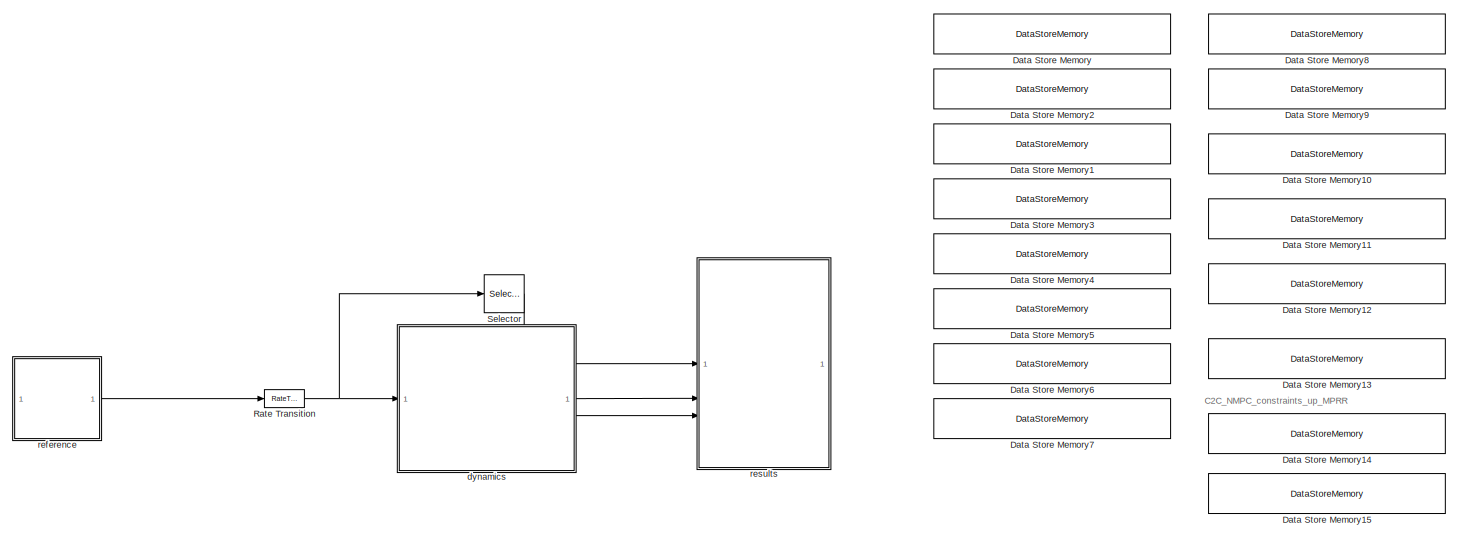
[diagram: root canvas - part 1/3, central region]
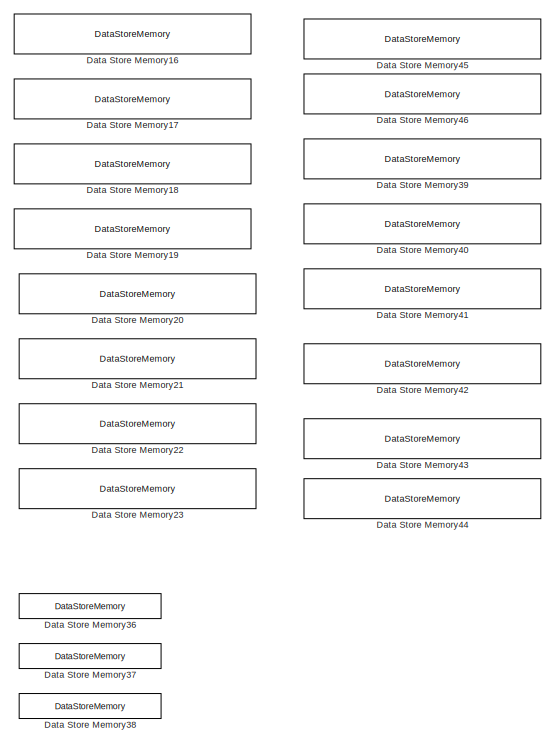
[diagram: root canvas - part 2/3, right side, full height]
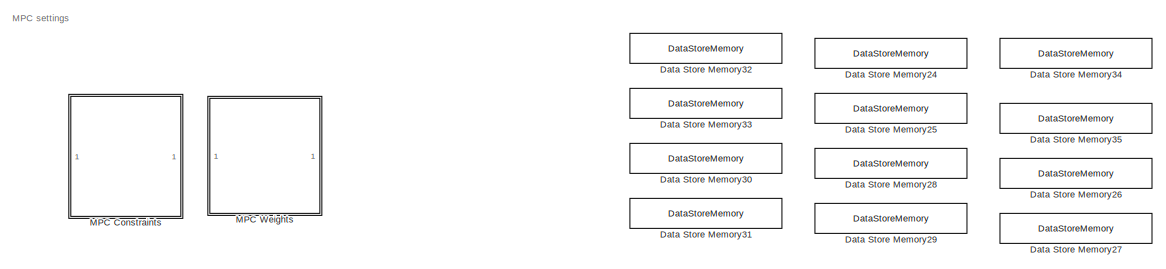
[diagram: root canvas - part 3/3, bottom center region]
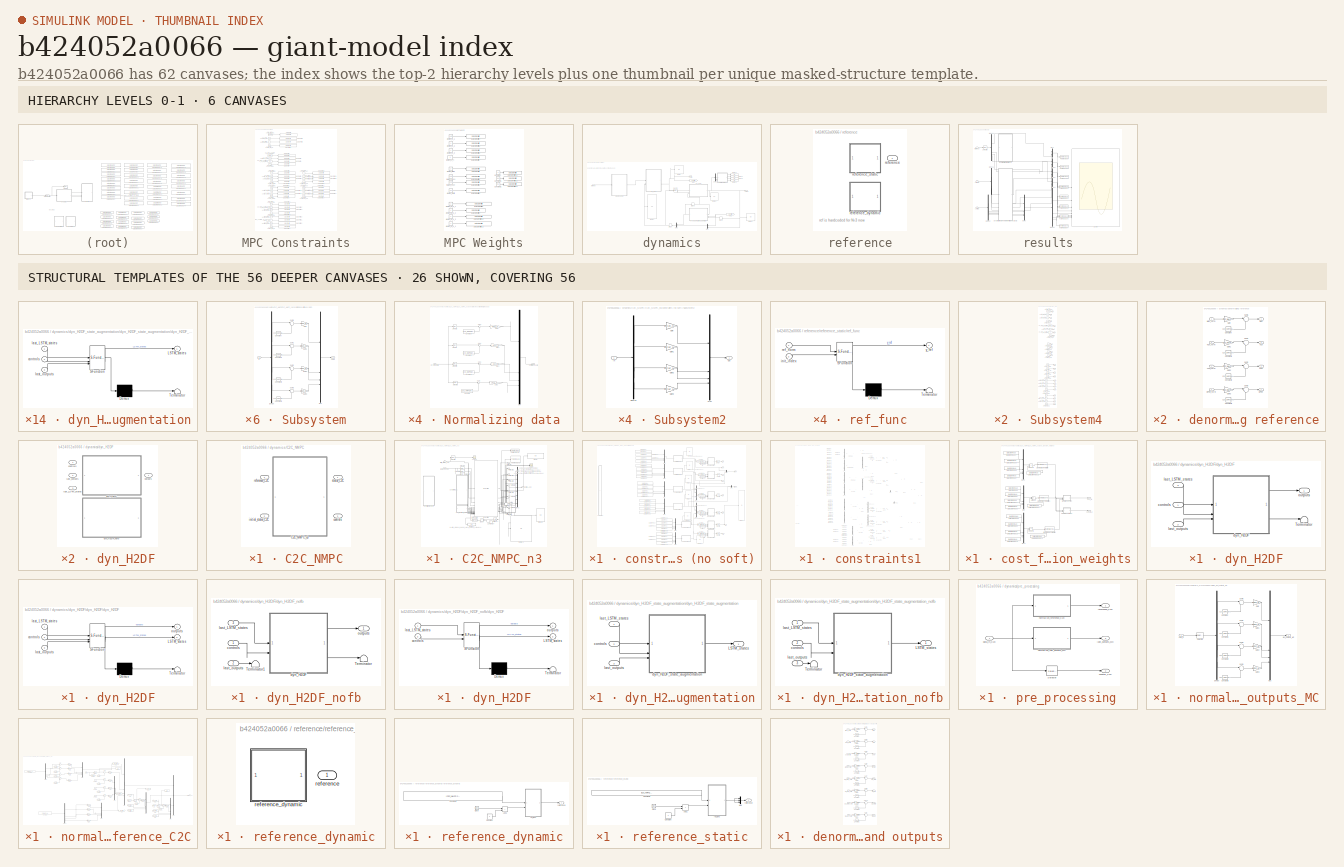
[diagram: thumbnail index - top-2 hierarchy levels (6 canvases) + 26 structural-template representatives of the remaining 56 canvases]
MODEL slx_b424052a0066
KIND model
CONFIG AbsTol = auto
CONFIG EnableMultiTasking = on
CONFIG FixedStep = 1
CONFIG MaxStep = auto
CONFIG MinStep = auto
CONFIG RelTol = 1e-3
CONFIG SampleTimeConstraint = Unconstrained
CONFIG SolverName = FixedStepAuto
CONFIG StartTime = 0.0
CONFIG StopTime = 4899
WORKSPACE source: mxarray member
WORKSPACE enable_IMEP_noise = 100
WORKSPACE enable_IMEP_offset = 1
BLOCK [DataStoreMemory] Data Store Memory
  DataStoreName = C2C_NMPC_constraints_low_DOI_main
  ShowAdditionalParam = off
  WriteAfterWriteMsg = warning
BLOCK [DataStoreMemory] Data Store Memory1
  DataStoreName = C2C_NMPC_constraints_low_SOI_main
  ShowAdditionalParam = off
  WriteAfterWriteMsg = warning
BLOCK [DataStoreMemory] Data Store Memory10
  DataStoreName = C2C_NMPC_constraints_low_SOOT
  ShowAdditionalParam = off
  WriteAfterWriteMsg = warning
BLOCK [DataStoreMemory] Data Store Memory11
  DataStoreName = C2C_NMPC_constraints_low_MPRR
  ShowAdditionalParam = off
  WriteAfterWriteMsg = warning
BLOCK [DataStoreMemory] Data Store Memory12
  DataStoreName = C2C_NMPC_constraints_up_IMEP
  ShowAdditionalParam = off
  WriteAfterWriteMsg = warning
BLOCK [DataStoreMemory] Data Store Memory13
  DataStoreName = C2C_NMPC_constraints_up_NOX
  ShowAdditionalParam = off
  WriteAfterWriteMsg = warning
BLOCK [DataStoreMemory] Data Store Memory14
  DataStoreName = C2C_NMPC_constraints_up_SOOT
  ShowAdditionalParam = off
  WriteAfterWriteMsg = warning
BLOCK [DataStoreMemory] Data Store Memory15
  DataStoreName = C2C_NMPC_constraints_up_MPRR
  ShowAdditionalParam = off
  WriteAfterWriteMsg = warning
BLOCK [DataStoreMemory] Data Store Memory16
  DataStoreName = C2C_NMPC_constraints_low_dt_DOI_main
  NameLocation = left
  ShowAdditionalParam = off
  WriteAfterWriteMsg = warning
BLOCK [DataStoreMemory] Data Store Memory17
  DataStoreName = C2C_NMPC_constraints_low_dt_P2M
  ShowAdditionalParam = off
  WriteAfterWriteMsg = warning
BLOCK [DataStoreMemory] Data Store Memory18
  DataStoreName = C2C_NMPC_constraints_low_dt_SOI_main
  ShowAdditionalParam = off
  WriteAfterWriteMsg = warning
BLOCK [DataStoreMemory] Data Store Memory19
  DataStoreName = C2C_NMPC_constraints_low_dt_DOI_H2
  ShowAdditionalParam = off
  WriteAfterWriteMsg = warning
BLOCK [DataStoreMemory] Data Store Memory2
  DataStoreName = C2C_NMPC_constraints_low_P2M
  ShowAdditionalParam = off
  WriteAfterWriteMsg = warning
BLOCK [DataStoreMemory] Data Store Memory20
  DataStoreName = C2C_NMPC_constraints_up_dt_DOI_main
  NameLocation = left
  ShowAdditionalParam = off
  WriteAfterWriteMsg = warning
BLOCK [DataStoreMemory] Data Store Memory21
  DataStoreName = C2C_NMPC_constraints_up_dt_P2M
  ShowAdditionalParam = off
  WriteAfterWriteMsg = warning
BLOCK [DataStoreMemory] Data Store Memory22
  DataStoreName = C2C_NMPC_constraints_up_dt_SOI_main
  ShowAdditionalParam = off
  WriteAfterWriteMsg = warning
BLOCK [DataStoreMemory] Data Store Memory23
  DataStoreName = C2C_NMPC_constraints_up_dt_DOI_H1
  ShowAdditionalParam = off
  WriteAfterWriteMsg = warning
BLOCK [DataStoreMemory] Data Store Memory24
  DataStoreName = C2C_NMPC_IMEP_Weight
  ShowAdditionalParam = off
  WriteAfterWriteMsg = warning
BLOCK [DataStoreMemory] Data Store Memory25
  DataStoreName = C2C_NMPC_NOX_Weight
  ShowAdditionalParam = off
  WriteAfterWriteMsg = warning
BLOCK [DataStoreMemory] Data Store Memory26
  DataStoreName = C2C_NMPC_Delta_SOI_Main_Weight
  ShowAdditionalParam = off
  WriteAfterWriteMsg = warning
BLOCK [DataStoreMemory] Data Store Memory27
  DataStoreName = C2C_NMPC_Delta_DOI_H2_Weight
  ShowAdditionalParam = off
  WriteAfterWriteMsg = warning
BLOCK [DataStoreMemory] Data Store Memory28
  DataStoreName = C2C_NMPC_SOOT_Weight
  ShowAdditionalParam = off
  WriteAfterWriteMsg = warning
BLOCK [DataStoreMemory] Data Store Memory29
  DataStoreName = C2C_NMPC_MPRR_Weight
  ShowAdditionalParam = off
  WriteAfterWriteMsg = warning
BLOCK [DataStoreMemory] Data Store Memory3
  DataStoreName = C2C_NMPC_constraints_low_DOI_H2
  ShowAdditionalParam = off
  WriteAfterWriteMsg = warning
BLOCK [DataStoreMemory] Data Store Memory30
  DataStoreName = C2C_NMPC_SOI_Main_Weight
  ShowAdditionalParam = off
  WriteAfterWriteMsg = warning
BLOCK [DataStoreMemory] Data Store Memory31
  DataStoreName = C2C_NMPC_DOI_H2_Weight
  ShowAdditionalParam = off
  WriteAfterWriteMsg = warning
BLOCK [DataStoreMemory] Data Store Memory32
  DataStoreName = C2C_NMPC_DOI_Main_Weight
  ShowAdditionalParam = off
  WriteAfterWriteMsg = warning
BLOCK [DataStoreMemory] Data Store Memory33
  DataStoreName = C2C_NMPC_P2M_Weight
  ShowAdditionalParam = off
  WriteAfterWriteMsg = warning
BLOCK [DataStoreMemory] Data Store Memory34
  DataStoreName = C2C_NMPC_Delta_DOI_Main_Weight
  ShowAdditionalParam = off
  WriteAfterWriteMsg = warning
BLOCK [DataStoreMemory] Data Store Memory35
  DataStoreName = C2C_NMPC_Delta_P2M_Weight
  ShowAdditionalParam = off
  WriteAfterWriteMsg = warning
BLOCK [DataStoreMemory] Data Store Memory36
  DataStoreName = C2C_NMPC_alpha
  ShowAdditionalParam = off
  WriteAfterWriteMsg = warning
BLOCK [DataStoreMemory] Data Store Memory37
  DataStoreName = C2C_NMPC_beta
  ShowAdditionalParam = off
  WriteAfterWriteMsg = warning
BLOCK [DataStoreMemory] Data Store Memory38
  DataStoreName = C2C_NMPC_gamma
  ShowAdditionalParam = off
  WriteAfterWriteMsg = warning
BLOCK [DataStoreMemory] Data Store Memory39
  DataStoreName = C2C_NMPC_constraints_low_SOOT_soft
  ShowAdditionalParam = off
  WriteAfterWriteMsg = warning
BLOCK [DataStoreMemory] Data Store Memory4
  DataStoreName = C2C_NMPC_constraints_up_DOI_main
  ShowAdditionalParam = off
  WriteAfterWriteMsg = warning
BLOCK [DataStoreMemory] Data Store Memory40
  DataStoreName = C2C_NMPC_constraints_low_MPRR_soft
  ShowAdditionalParam = off
  WriteAfterWriteMsg = warning
BLOCK [DataStoreMemory] Data Store Memory41
  DataStoreName = C2C_NMPC_constraints_up_IMEP_soft
  ShowAdditionalParam = off
  WriteAfterWriteMsg = warning
BLOCK [DataStoreMemory] Data Store Memory42
  DataStoreName = C2C_NMPC_constraints_up_NOX_soft
  ShowAdditionalParam = off
  WriteAfterWriteMsg = warning
BLOCK [DataStoreMemory] Data Store Memory43
  DataStoreName = C2C_NMPC_constraints_up_SOOT_soft
  ShowAdditionalParam = off
  WriteAfterWriteMsg = warning
BLOCK [DataStoreMemory] Data Store Memory44
  DataStoreName = C2C_NMPC_constraints_up_MPRR_soft
  ShowAdditionalParam = off
  WriteAfterWriteMsg = warning
BLOCK [DataStoreMemory] Data Store Memory45
  DataStoreName = C2C_NMPC_constraints_low_IMEP_soft
  ShowAdditionalParam = off
  WriteAfterWriteMsg = warning
BLOCK [DataStoreMemory] Data Store Memory46
  DataStoreName = C2C_NMPC_constraints_low_NOX_soft
  ShowAdditionalParam = off
  WriteAfterWriteMsg = warning
BLOCK [DataStoreMemory] Data Store Memory5
  DataStoreName = C2C_NMPC_constraints_up_P2M
  ShowAdditionalParam = off
  WriteAfterWriteMsg = warning
BLOCK [DataStoreMemory] Data Store Memory6
  DataStoreName = C2C_NMPC_constraints_up_SOI_main
  ShowAdditionalParam = off
  WriteAfterWriteMsg = warning
BLOCK [DataStoreMemory] Data Store Memory7
  DataStoreName = C2C_NMPC_constraints_up_DOI_H2
  ShowAdditionalParam = off
  WriteAfterWriteMsg = warning
BLOCK [DataStoreMemory] Data Store Memory8
  DataStoreName = C2C_NMPC_constraints_low_IMEP
  ShowAdditionalParam = off
  WriteAfterWriteMsg = warning
BLOCK [DataStoreMemory] Data Store Memory9
  DataStoreName = C2C_NMPC_constraints_low_NOX
  ShowAdditionalParam = off
  WriteAfterWriteMsg = warning
BLOCK [SubSystem] MPC Constraints
BLOCK [Constant] MPC Constraints/C2C_NMPC_constraints_low_DOI_H1
  Value = 1.5e-3
BLOCK [Constant] MPC Constraints/C2C_NMPC_constraints_low_DOI_main1
  Value = 0.17e-3
BLOCK [Constant] MPC Constraints/C2C_NMPC_constraints_low_IMEP1
  Value = -1e3
BLOCK [Constant] MPC Constraints/C2C_NMPC_constraints_low_IMEP_soft
  Value = 0
BLOCK [Constant] MPC Constraints/C2C_NMPC_constraints_low_MPRR1
  Value = -1e3
BLOCK [Constant] MPC Constraints/C2C_NMPC_constraints_low_MPRR_soft
  Value = 0
BLOCK [Constant] MPC Constraints/C2C_NMPC_constraints_low_NOX1
  Value = -1e3
BLOCK [Constant] MPC Constraints/C2C_NMPC_constraints_low_NOX_soft
  Value = 0
BLOCK [Constant] MPC Constraints/C2C_NMPC_constraints_low_P2M1
  Value = 430
BLOCK [Constant] MPC Constraints/C2C_NMPC_constraints_low_SOI_main1
  Value = -10
BLOCK [Constant] MPC Constraints/C2C_NMPC_constraints_low_SOOT1
  Value = -1e3
BLOCK [Constant] MPC Constraints/C2C_NMPC_constraints_low_SOOT_soft
  Value = 0
BLOCK [Constant] MPC Constraints/C2C_NMPC_constraints_low_dt_DOI_H1
  Value = -0.08
BLOCK [Constant] MPC Constraints/C2C_NMPC_constraints_low_dt_DOI_main1
  Value = -.015
  VectorParams1D = off
BLOCK [Constant] MPC Constraints/C2C_NMPC_constraints_low_dt_P2M1
  Value = -0.002
BLOCK [Constant] MPC Constraints/C2C_NMPC_constraints_low_dt_SOI_main1
  Value = -0.015
BLOCK [Constant] MPC Constraints/C2C_NMPC_constraints_up_DOI_H1
  Value = 4e-3
BLOCK [Constant] MPC Constraints/C2C_NMPC_constraints_up_DOI_main1
  Value = 0.5e-3
BLOCK [Constant] MPC Constraints/C2C_NMPC_constraints_up_IMEP1
  Value = 9e5
BLOCK [Constant] MPC Constraints/C2C_NMPC_constraints_up_IMEP_soft
  Value = 8.5e5
BLOCK [Constant] MPC Constraints/C2C_NMPC_constraints_up_MPRR1
  Value = 15e5
BLOCK [Constant] MPC Constraints/C2C_NMPC_constraints_up_MPRR_soft
  Value = 12e5
BLOCK [Constant] MPC Constraints/C2C_NMPC_constraints_up_NOX1
  Value = 1800
BLOCK [Constant] MPC Constraints/C2C_NMPC_constraints_up_NOX_soft
  Value = 1200
BLOCK [Constant] MPC Constraints/C2C_NMPC_constraints_up_P2M1
  Value = 1400
BLOCK [Constant] MPC Constraints/C2C_NMPC_constraints_up_SOI_main1
  Value = 10
BLOCK [Constant] MPC Constraints/C2C_NMPC_constraints_up_SOOT1
  Value = 1.5
BLOCK [Constant] MPC Constraints/C2C_NMPC_constraints_up_SOOT_soft
  Value = 0.8
BLOCK [Constant] MPC Constraints/C2C_NMPC_constraints_up_dt_DOI_H2
  Value = 0.08
BLOCK [Constant] MPC Constraints/C2C_NMPC_constraints_up_dt_DOI_main1
  Value = .015
BLOCK [Constant] MPC Constraints/C2C_NMPC_constraints_up_dt_P2M1
  Value = 0.002
BLOCK [Constant] MPC Constraints/C2C_NMPC_constraints_up_dt_SOI_main1
  Value = 0.015
BLOCK [DataStoreWrite] MPC Constraints/Data Store Write
  DataStoreName = C2C_NMPC_constraints_low_DOI_main
  IndexOptions = Index vector (dialog)
  Indices = 1
  OutputSizes = 1
BLOCK [DataStoreWrite] MPC Constraints/Data Store Write1
  DataStoreName = C2C_NMPC_constraints_low_P2M
  IndexOptions = Index vector (dialog)
  Indices = 1
  OutputSizes = 1
BLOCK [DataStoreWrite] MPC Constraints/Data Store Write10
  DataStoreName = C2C_NMPC_constraints_low_SOOT
  IndexOptions = Index vector (dialog)
  Indices = 1
  OutputSizes = 1
BLOCK [DataStoreWrite] MPC Constraints/Data Store Write11
  DataStoreName = C2C_NMPC_constraints_low_MPRR
  IndexOptions = Index vector (dialog)
  Indices = 1
  OutputSizes = 1
BLOCK [DataStoreWrite] MPC Constraints/Data Store Write12
  DataStoreName = C2C_NMPC_constraints_up_IMEP
  IndexOptions = Index vector (dialog)
  Indices = 1
  OutputSizes = 1
BLOCK [DataStoreWrite] MPC Constraints/Data Store Write13
  DataStoreName = C2C_NMPC_constraints_up_NOX
  IndexOptions = Index vector (dialog)
  Indices = 1
  OutputSizes = 1
BLOCK [DataStoreWrite] MPC Constraints/Data Store Write14
  DataStoreName = C2C_NMPC_constraints_up_SOOT
  IndexOptions = Index vector (dialog)
  Indices = 1
  OutputSizes = 1
BLOCK [DataStoreWrite] MPC Constraints/Data Store Write15
  DataStoreName = C2C_NMPC_constraints_up_MPRR
  IndexOptions = Index vector (dialog)
  Indices = 1
  OutputSizes = 1
BLOCK [DataStoreWrite] MPC Constraints/Data Store Write16
  DataStoreName = C2C_NMPC_constraints_low_dt_DOI_main
  IndexOptions = Index vector (dialog)
  Indices = 1
  OutputSizes = 1
BLOCK [DataStoreWrite] MPC Constraints/Data Store Write17
  DataStoreName = C2C_NMPC_constraints_low_dt_P2M
  IndexOptions = Index vector (dialog)
  Indices = 1
  OutputSizes = 1
BLOCK [DataStoreWrite] MPC Constraints/Data Store Write18
  DataStoreName = C2C_NMPC_constraints_low_dt_SOI_main
  IndexOptions = Index vector (dialog)
  Indices = 1
  OutputSizes = 1
BLOCK [DataStoreWrite] MPC Constraints/Data Store Write19
  DataStoreName = C2C_NMPC_constraints_low_dt_DOI_H2
  IndexOptions = Index vector (dialog)
  Indices = 1
  OutputSizes = 1
BLOCK [DataStoreWrite] MPC Constraints/Data Store Write2
  DataStoreName = C2C_NMPC_constraints_low_SOI_main
  IndexOptions = Index vector (dialog)
  Indices = 1
  OutputSizes = 1
BLOCK [DataStoreWrite] MPC Constraints/Data Store Write20
  DataStoreName = C2C_NMPC_constraints_up_dt_DOI_main
  IndexOptions = Index vector (dialog)
  Indices = 1
  OutputSizes = 1
BLOCK [DataStoreWrite] MPC Constraints/Data Store Write21
  DataStoreName = C2C_NMPC_constraints_up_dt_P2M
  IndexOptions = Index vector (dialog)
  Indices = 1
  OutputSizes = 1
BLOCK [DataStoreWrite] MPC Constraints/Data Store Write22
  DataStoreName = C2C_NMPC_constraints_up_dt_SOI_main
  IndexOptions = Index vector (dialog)
  Indices = 1
  OutputSizes = 1
BLOCK [DataStoreWrite] MPC Constraints/Data Store Write23
  DataStoreName = C2C_NMPC_constraints_up_dt_DOI_H1
  IndexOptions = Index vector (dialog)
  Indices = 1
  OutputSizes = 1
BLOCK [DataStoreWrite] MPC Constraints/Data Store Write24
  DataStoreName = C2C_NMPC_constraints_low_SOOT_soft
  IndexOptions = Index vector (dialog)
  Indices = 1
  OutputSizes = 1
BLOCK [DataStoreWrite] MPC Constraints/Data Store Write25
  DataStoreName = C2C_NMPC_constraints_low_MPRR_soft
  IndexOptions = Index vector (dialog)
  Indices = 1
  OutputSizes = 1
BLOCK [DataStoreWrite] MPC Constraints/Data Store Write26
  DataStoreName = C2C_NMPC_constraints_up_IMEP_soft
  IndexOptions = Index vector (dialog)
  Indices = 1
  OutputSizes = 1
BLOCK [DataStoreWrite] MPC Constraints/Data Store Write27
  DataStoreName = C2C_NMPC_constraints_up_NOX_soft
  IndexOptions = Index vector (dialog)
  Indices = 1
  OutputSizes = 1
BLOCK [DataStoreWrite] MPC Constraints/Data Store Write28
  DataStoreName = C2C_NMPC_constraints_up_SOOT_soft
  IndexOptions = Index vector (dialog)
  Indices = 1
  OutputSizes = 1
BLOCK [DataStoreWrite] MPC Constraints/Data Store Write29
  DataStoreName = C2C_NMPC_constraints_up_MPRR_soft
  IndexOptions = Index vector (dialog)
  Indices = 1
  OutputSizes = 1
BLOCK [DataStoreWrite] MPC Constraints/Data Store Write3
  DataStoreName = C2C_NMPC_constraints_low_DOI_H2
  IndexOptions = Index vector (dialog)
  Indices = 1
  OutputSizes = 1
BLOCK [DataStoreWrite] MPC Constraints/Data Store Write30
  DataStoreName = C2C_NMPC_constraints_low_IMEP_soft
  IndexOptions = Index vector (dialog)
  Indices = 1
  OutputSizes = 1
BLOCK [DataStoreWrite] MPC Constraints/Data Store Write31
  DataStoreName = C2C_NMPC_constraints_low_NOX_soft
  IndexOptions = Index vector (dialog)
  Indices = 1
  OutputSizes = 1
BLOCK [DataStoreWrite] MPC Constraints/Data Store Write4
  DataStoreName = C2C_NMPC_constraints_up_DOI_main
  IndexOptions = Index vector (dialog)
  Indices = 1
  OutputSizes = 1
BLOCK [DataStoreWrite] MPC Constraints/Data Store Write5
  DataStoreName = C2C_NMPC_constraints_up_P2M
  IndexOptions = Index vector (dialog)
  Indices = 1
  OutputSizes = 1
BLOCK [DataStoreWrite] MPC Constraints/Data Store Write6
  DataStoreName = C2C_NMPC_constraints_up_SOI_main
  IndexOptions = Index vector (dialog)
  Indices = 1
  OutputSizes = 1
BLOCK [DataStoreWrite] MPC Constraints/Data Store Write7
  DataStoreName = C2C_NMPC_constraints_up_DOI_H2
  IndexOptions = Index vector (dialog)
  Indices = 1
  OutputSizes = 1
BLOCK [DataStoreWrite] MPC Constraints/Data Store Write8
  DataStoreName = C2C_NMPC_constraints_low_IMEP
  IndexOptions = Index vector (dialog)
  Indices = 1
  OutputSizes = 1
BLOCK [DataStoreWrite] MPC Constraints/Data Store Write9
  DataStoreName = C2C_NMPC_constraints_low_NOX
  IndexOptions = Index vector (dialog)
  Indices = 1
  OutputSizes = 1
BLOCK [SubSystem] MPC Weights
BLOCK [Constant] MPC Weights/Constant
BLOCK [Constant] MPC Weights/Constant1
  Value = 0.001
BLOCK [Constant] MPC Weights/Constant2
  Value = 0.1
BLOCK [DataStoreWrite] MPC Weights/Data Store Write
  DataStoreName = C2C_NMPC_IMEP_Weight
  IndexOptions = Index vector (dialog)
  Indices = 1
  OutputSizes = 1
BLOCK [DataStoreWrite] MPC Weights/Data Store Write1
  DataStoreName = C2C_NMPC_NOX_Weight
  IndexOptions = Index vector (dialog)
  Indices = 1
  OutputSizes = 1
BLOCK [DataStoreWrite] MPC Weights/Data Store Write10
  DataStoreName = C2C_NMPC_Delta_SOI_Main_Weight
  IndexOptions = Index vector (dialog)
  Indices = 1
  OutputSizes = 1
BLOCK [DataStoreWrite] MPC Weights/Data Store Write11
  DataStoreName = C2C_NMPC_Delta_DOI_H2_Weight
  IndexOptions = Index vector (dialog)
  Indices = 1
  OutputSizes = 1
BLOCK [DataStoreWrite] MPC Weights/Data Store Write12
  DataStoreName = C2C_NMPC_alpha
  IndexOptions = Index vector (dialog)
  Indices = 1
  OutputSizes = 1
BLOCK [DataStoreWrite] MPC Weights/Data Store Write13
  DataStoreName = C2C_NMPC_beta
  IndexOptions = Index vector (dialog)
  Indices = 1
  OutputSizes = 1
BLOCK [DataStoreWrite] MPC Weights/Data Store Write14
  DataStoreName = C2C_NMPC_gamma
  IndexOptions = Index vector (dialog)
  Indices = 1
  OutputSizes = 1
BLOCK [DataStoreWrite] MPC Weights/Data Store Write2
  DataStoreName = C2C_NMPC_SOOT_Weight
  IndexOptions = Index vector (dialog)
  Indices = 1
  OutputSizes = 1
BLOCK [DataStoreWrite] MPC Weights/Data Store Write3
  DataStoreName = C2C_NMPC_MPRR_Weight
  IndexOptions = Index vector (dialog)
  Indices = 1
  OutputSizes = 1
BLOCK [DataStoreWrite] MPC Weights/Data Store Write4
  DataStoreName = C2C_NMPC_DOI_Main_Weight
  IndexOptions = Index vector (dialog)
  Indices = 1
  OutputSizes = 1
BLOCK [DataStoreWrite] MPC Weights/Data Store Write5
  DataStoreName = C2C_NMPC_P2M_Weight
  IndexOptions = Index vector (dialog)
  Indices = 1
  OutputSizes = 1
BLOCK [DataStoreWrite] MPC Weights/Data Store Write6
  DataStoreName = C2C_NMPC_SOI_Main_Weight
  IndexOptions = Index vector (dialog)
  Indices = 1
  OutputSizes = 1
BLOCK [DataStoreWrite] MPC Weights/Data Store Write7
  DataStoreName = C2C_NMPC_DOI_H2_Weight
  IndexOptions = Index vector (dialog)
  Indices = 1
  OutputSizes = 1
BLOCK [DataStoreWrite] MPC Weights/Data Store Write8
  DataStoreName = C2C_NMPC_Delta_DOI_Main_Weight
  IndexOptions = Index vector (dialog)
  Indices = 1
  OutputSizes = 1
BLOCK [DataStoreWrite] MPC Weights/Data Store Write9
  DataStoreName = C2C_NMPC_Delta_P2M_Weight
  IndexOptions = Index vector (dialog)
  Indices = 1
  OutputSizes = 1
BLOCK [Constant] MPC Weights/weight_IMEP
  Value = 3
BLOCK [Constant] MPC Weights/weight_Nox1
  Value = 0.001
BLOCK [Constant] MPC Weights/weight_dt_u_1
BLOCK [Constant] MPC Weights/weight_dt_u_2
BLOCK [Constant] MPC Weights/weight_dt_u_3
BLOCK [Constant] MPC Weights/weight_dt_u_4
BLOCK [Constant] MPC Weights/weight_mprr1
  Value = 0.1
BLOCK [Constant] MPC Weights/weight_soot
  Value = 0.001
BLOCK [Constant] MPC Weights/weight_u_1
  Value = 0.25
BLOCK [Constant] MPC Weights/weight_u_2
BLOCK [Constant] MPC Weights/weight_u_3
BLOCK [Constant] MPC Weights/weight_u_4
BLOCK [RateTransition] Rate Transition
  Integrity = off
  OutPortSampleTime = 1
BLOCK [Selector] Selector
  IndexOptions = Index vector (dialog)
  Indices = 1:C2C_NMPC.Dims.n_cost
  InputPortWidth = C2C_NMPC.Dims.n_cost*3
  OutputSizes = 1
BLOCK [SubSystem] dynamics
BLOCK [SubSystem] dynamics/C2C_NMPC
  LabelModeActiveChoice = C2C_NMPC_n3
  Variant = on
  VariantControl = Choice
  VariantControlMode = label
BLOCK [SubSystem] dynamics/C2C_NMPC/C2C_NMPC_n3
  VariantControl = C2C_NMPC_n3
BLOCK [Constant] dynamics/C2C_NMPC/C2C_NMPC_n3/Constant14
  NameLocation = top
  Value = 5
BLOCK [DataTypeConversion] dynamics/C2C_NMPC/C2C_NMPC_n3/Data Type Conversion
  NameLocation = top
  RndMeth = Floor
  SaturateOnIntegerOverflow = off
BLOCK [Display] dynamics/C2C_NMPC/C2C_NMPC_n3/Display
  Decimation = 1
BLOCK [Display] dynamics/C2C_NMPC/C2C_NMPC_n3/Display2
  Decimation = 1
BLOCK [Display] dynamics/C2C_NMPC/C2C_NMPC_n3/Display3
  Decimation = 1
BLOCK [Display] dynamics/C2C_NMPC/C2C_NMPC_n3/Display4
  Decimation = 1
BLOCK [RelationalOperator] dynamics/C2C_NMPC/C2C_NMPC_n3/Equal
  InputSameDT = off
  NameLocation = top
  Operator = ==
  OutDataTypeStr = boolean
  RndMeth = Simplest
BLOCK [Mux] dynamics/C2C_NMPC/C2C_NMPC_n3/Mux1
  DisplayOption = bar
  Inputs = 9
BLOCK [S-Function] dynamics/C2C_NMPC/C2C_NMPC_n3/S-Function
  EnableBusSupport = off
  FunctionName = acados_solver_sfunction_C2C_NMPC
  SFcnIsStateOwnerBlock = off
  SFunctionDeploymentMode = off
BLOCK [Scope] dynamics/C2C_NMPC/C2C_NMPC_n3/Scope
  Floating = off
  NumInputPorts = 2
  ScopeSpecificationString = Simulink.scopes.TimeScopeBlockCfg('CurrentConfiguration', extmgr.ConfigurationSet(extmgr.Configuration('Core','General UI',true),extmgr.Configuration('Core','Source UI',true),extmgr.Configuration('Sources','WiredSimulink',true,'DataLoggingVariableName','ScopeData1'),extmgr.Configuration('Visuals','Time Domain',true,'SerializedDisplays',{struct('MinYLimReal','0.12585','MaxYLimReal','5.94879','YLabe...<+1457ch>
BLOCK [Scope] dynamics/C2C_NMPC/C2C_NMPC_n3/Scope1
  Floating = off
  NumInputPorts = 1
  ScopeSpecificationString = Simulink.scopes.TimeScopeBlockCfg('CurrentConfiguration', extmgr.ConfigurationSet(extmgr.Configuration('Core','General UI',true),extmgr.Configuration('Core','Source UI',true),extmgr.Configuration('Sources','WiredSimulink',true,'DataLoggingVariableName','ScopeData1'),extmgr.Configuration('Visuals','Time Domain',true,'SerializedDisplays',{struct('MinYLimReal','0.24936','MaxYLimReal','0.75363','YLabe...<+1719ch>
BLOCK [Selector] dynamics/C2C_NMPC/C2C_NMPC_n3/Selector1
  IndexOptions = Index vector (dialog)
  Indices = [(C2C_NMPC.Dims.n_LSTM_states + 1):(C2C_NMPC.Dims.n_LSTM_states + C2C_NMPC.Dims.n_controls)]
  OutputSizes = 1
BLOCK [Selector] dynamics/C2C_NMPC/C2C_NMPC_n3/Selector2
  IndexOptions = Index vector (dialog)
  Indices = [1:(C2C_NMPC.Dims.n_cost)]
  OutputSizes = 1
BLOCK [Selector] dynamics/C2C_NMPC/C2C_NMPC_n3/Selector3
  IndexOptions = Index vector (dialog)
  Indices = [ (C2C_NMPC.Dims.n_cost + 1) : (C2C_NMPC.Dims.n_cost * 3) ]
  OutputSizes = 1
BLOCK [Selector] dynamics/C2C_NMPC/C2C_NMPC_n3/Selector4
  IndexOptions = Index vector (dialog)
  Indices = [ (C2C_NMPC.Dims.n_cost * 2 + 1) : (C2C_NMPC.Dims.n_cost * 2 + C2C_NMPC.Dims.n_controls + C2C_NMPC.Dims.n_outputs ) ]
  OutputSizes = 1
BLOCK [Selector] dynamics/C2C_NMPC/C2C_NMPC_n3/Selector5
  IndexOptions = Index vector (dialog)
  Indices = 13
  OutputSizes = 1
BLOCK [Terminator] dynamics/C2C_NMPC/C2C_NMPC_n3/Terminator
BLOCK [Terminator] dynamics/C2C_NMPC/C2C_NMPC_n3/Terminator1
BLOCK [Terminator] dynamics/C2C_NMPC/C2C_NMPC_n3/Terminator2
BLOCK [Terminator] dynamics/C2C_NMPC/C2C_NMPC_n3/Terminator3
BLOCK [Terminator] dynamics/C2C_NMPC/C2C_NMPC_n3/Terminator4
BLOCK [Terminator] dynamics/C2C_NMPC/C2C_NMPC_n3/Terminator5
BLOCK [Terminator] dynamics/C2C_NMPC/C2C_NMPC_n3/Terminator6
BLOCK [Terminator] dynamics/C2C_NMPC/C2C_NMPC_n3/Terminator7
BLOCK [Terminator] dynamics/C2C_NMPC/C2C_NMPC_n3/Terminator8
BLOCK [ToWorkspace] dynamics/C2C_NMPC/C2C_NMPC_n3/To Workspace1
  FixptAsFi = on
  MaxDataPoints = inf
  SampleTime = -1
  VariableName = MPC_Cost
BLOCK [ToWorkspace] dynamics/C2C_NMPC/C2C_NMPC_n3/To Workspace2
  FixptAsFi = on
  MaxDataPoints = inf
  SampleTime = 1
  VariableName = SolverStatus
BLOCK [UnitDelay] dynamics/C2C_NMPC/C2C_NMPC_n3/Unit Delay1
  HasFrameUpgradeWarning = on
  NameLocation = top
  SampleTime = -1
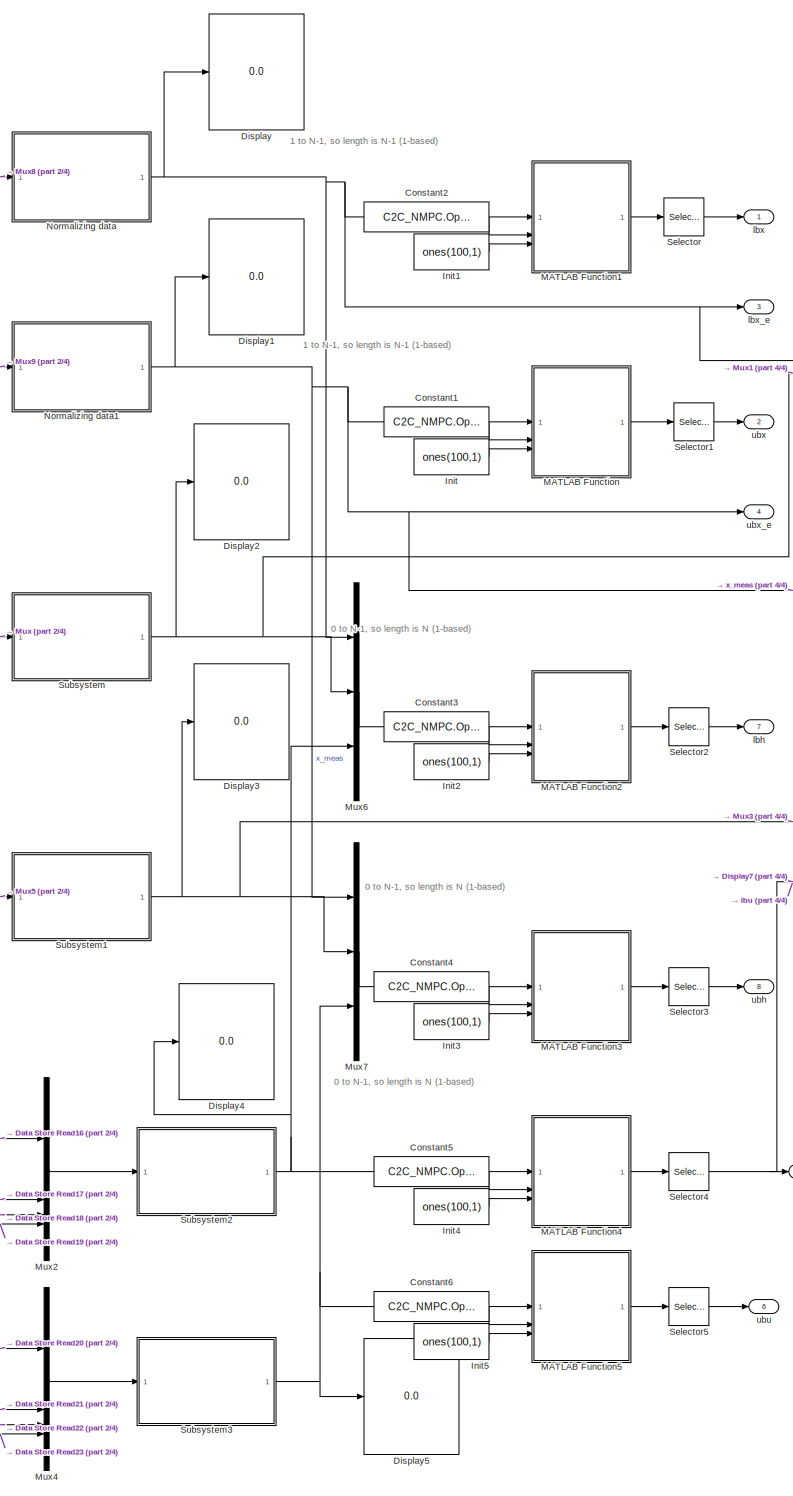
[diagram: dynamics/C2C_NMPC/C2C_NMPC_n3/constraints (no soft) - part 1/4, right side, full height]
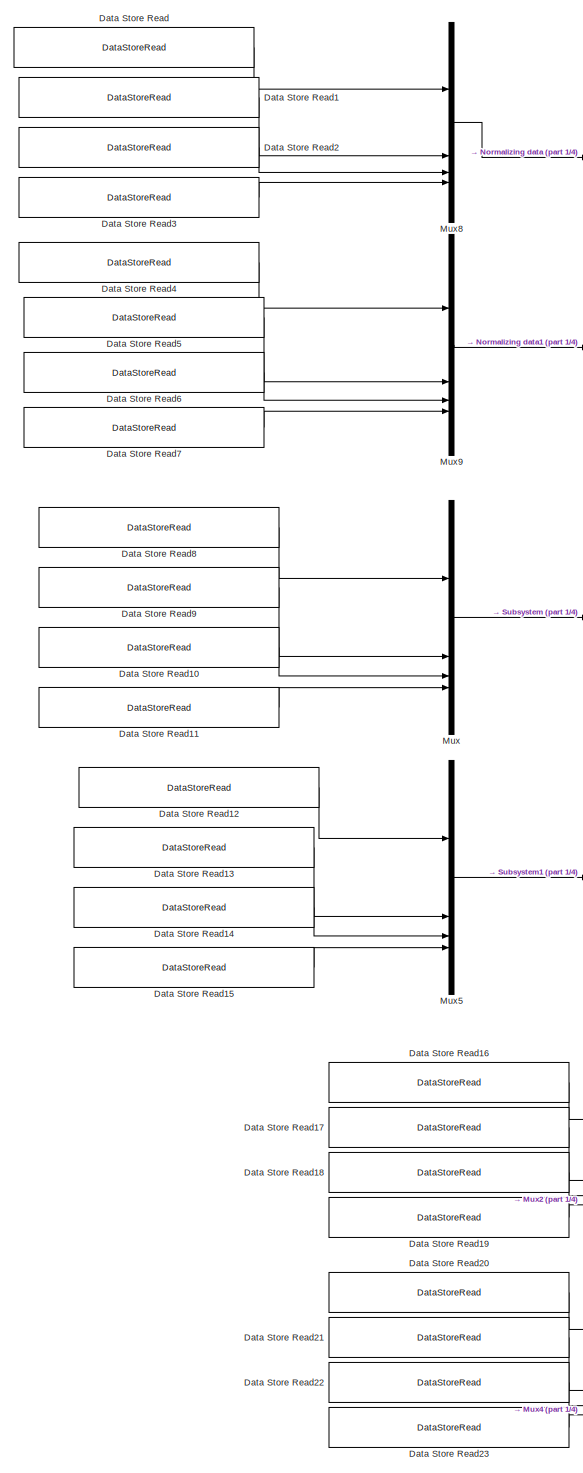
[diagram: dynamics/C2C_NMPC/C2C_NMPC_n3/constraints (no soft) - part 2/4, center side, full height]
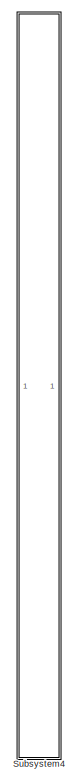
[diagram: dynamics/C2C_NMPC/C2C_NMPC_n3/constraints (no soft) - part 3/4, middle left region]
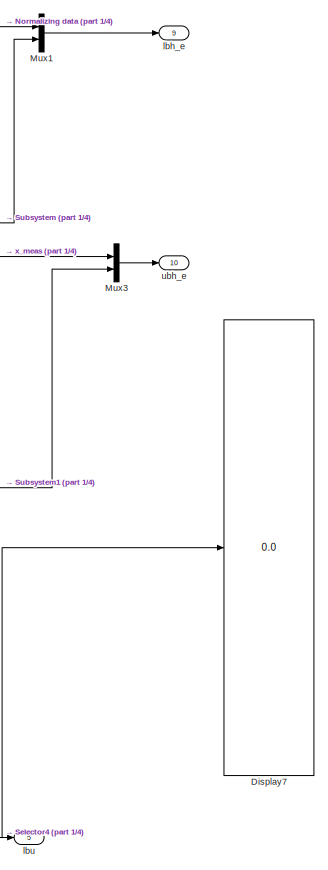
[diagram: dynamics/C2C_NMPC/C2C_NMPC_n3/constraints (no soft) - part 4/4, middle right region]
BLOCK [SubSystem] dynamics/C2C_NMPC/C2C_NMPC_n3/constraints (no soft)
  Commented = on
BLOCK [Constant] dynamics/C2C_NMPC/C2C_NMPC_n3/constraints (no soft)/Constant1
  Value = C2C_NMPC.Opts.N-1
BLOCK [Constant] dynamics/C2C_NMPC/C2C_NMPC_n3/constraints (no soft)/Constant2
  Value = C2C_NMPC.Opts.N-1
BLOCK [Constant] dynamics/C2C_NMPC/C2C_NMPC_n3/constraints (no soft)/Constant3
  Value = C2C_NMPC.Opts.N
BLOCK [Constant] dynamics/C2C_NMPC/C2C_NMPC_n3/constraints (no soft)/Constant4
  Value = C2C_NMPC.Opts.N
BLOCK [Constant] dynamics/C2C_NMPC/C2C_NMPC_n3/constraints (no soft)/Constant5
  Value = C2C_NMPC.Opts.N
BLOCK [Constant] dynamics/C2C_NMPC/C2C_NMPC_n3/constraints (no soft)/Constant6
  Value = C2C_NMPC.Opts.N
BLOCK [DataStoreRead] dynamics/C2C_NMPC/C2C_NMPC_n3/constraints (no soft)/Data Store Read
  DataStoreName = C2C_NMPC_constraints_low_DOI_main
  IndexOptions = Index vector (dialog)
  Indices = 1
  OutputSizes = 1
BLOCK [DataStoreRead] dynamics/C2C_NMPC/C2C_NMPC_n3/constraints (no soft)/Data Store Read1
  DataStoreName = C2C_NMPC_constraints_low_P2M
  IndexOptions = Index vector (dialog)
  Indices = 1
  OutputSizes = 1
BLOCK [DataStoreRead] dynamics/C2C_NMPC/C2C_NMPC_n3/constraints (no soft)/Data Store Read10
  DataStoreName = C2C_NMPC_constraints_low_SOOT
  IndexOptions = Index vector (dialog)
  Indices = 1
  OutputSizes = 1
BLOCK [DataStoreRead] dynamics/C2C_NMPC/C2C_NMPC_n3/constraints (no soft)/Data Store Read11
  DataStoreName = C2C_NMPC_constraints_low_MPRR
  IndexOptions = Index vector (dialog)
  Indices = 1
  OutputSizes = 1
BLOCK [DataStoreRead] dynamics/C2C_NMPC/C2C_NMPC_n3/constraints (no soft)/Data Store Read12
  DataStoreName = C2C_NMPC_constraints_up_IMEP
  IndexOptions = Index vector (dialog)
  Indices = 1
  OutputSizes = 1
BLOCK [DataStoreRead] dynamics/C2C_NMPC/C2C_NMPC_n3/constraints (no soft)/Data Store Read13
  DataStoreName = C2C_NMPC_constraints_up_NOX
  IndexOptions = Index vector (dialog)
  Indices = 1
  OutputSizes = 1
BLOCK [DataStoreRead] dynamics/C2C_NMPC/C2C_NMPC_n3/constraints (no soft)/Data Store Read14
  DataStoreName = C2C_NMPC_constraints_up_SOOT
  IndexOptions = Index vector (dialog)
  Indices = 1
  OutputSizes = 1
BLOCK [DataStoreRead] dynamics/C2C_NMPC/C2C_NMPC_n3/constraints (no soft)/Data Store Read15
  DataStoreName = C2C_NMPC_constraints_up_MPRR
  IndexOptions = Index vector (dialog)
  Indices = 1
  OutputSizes = 1
BLOCK [DataStoreRead] dynamics/C2C_NMPC/C2C_NMPC_n3/constraints (no soft)/Data Store Read16
  DataStoreName = C2C_NMPC_constraints_low_dt_DOI_main
  IndexOptions = Index vector (dialog)
  Indices = 1
  OutputSizes = 1
BLOCK [DataStoreRead] dynamics/C2C_NMPC/C2C_NMPC_n3/constraints (no soft)/Data Store Read17
  DataStoreName = C2C_NMPC_constraints_low_dt_P2M
  IndexOptions = Index vector (dialog)
  Indices = 1
  OutputSizes = 1
BLOCK [DataStoreRead] dynamics/C2C_NMPC/C2C_NMPC_n3/constraints (no soft)/Data Store Read18
  DataStoreName = C2C_NMPC_constraints_low_dt_SOI_main
  IndexOptions = Index vector (dialog)
  Indices = 1
  OutputSizes = 1
BLOCK [DataStoreRead] dynamics/C2C_NMPC/C2C_NMPC_n3/constraints (no soft)/Data Store Read19
  DataStoreName = C2C_NMPC_constraints_low_dt_DOI_H2
  IndexOptions = Index vector (dialog)
  Indices = 1
  OutputSizes = 1
BLOCK [DataStoreRead] dynamics/C2C_NMPC/C2C_NMPC_n3/constraints (no soft)/Data Store Read2
  DataStoreName = C2C_NMPC_constraints_low_SOI_main
  IndexOptions = Index vector (dialog)
  Indices = 1
  OutputSizes = 1
BLOCK [DataStoreRead] dynamics/C2C_NMPC/C2C_NMPC_n3/constraints (no soft)/Data Store Read20
  DataStoreName = C2C_NMPC_constraints_up_dt_DOI_main
  IndexOptions = Index vector (dialog)
  Indices = 1
  OutputSizes = 1
BLOCK [DataStoreRead] dynamics/C2C_NMPC/C2C_NMPC_n3/constraints (no soft)/Data Store Read21
  DataStoreName = C2C_NMPC_constraints_up_dt_P2M
  IndexOptions = Index vector (dialog)
  Indices = 1
  OutputSizes = 1
BLOCK [DataStoreRead] dynamics/C2C_NMPC/C2C_NMPC_n3/constraints (no soft)/Data Store Read22
  DataStoreName = C2C_NMPC_constraints_up_dt_SOI_main
  IndexOptions = Index vector (dialog)
  Indices = 1
  OutputSizes = 1
BLOCK [DataStoreRead] dynamics/C2C_NMPC/C2C_NMPC_n3/constraints (no soft)/Data Store Read23
  DataStoreName = C2C_NMPC_constraints_up_dt_DOI_H1
  IndexOptions = Index vector (dialog)
  Indices = 1
  OutputSizes = 1
BLOCK [DataStoreRead] dynamics/C2C_NMPC/C2C_NMPC_n3/constraints (no soft)/Data Store Read3
  DataStoreName = C2C_NMPC_constraints_low_DOI_H2
  IndexOptions = Index vector (dialog)
  Indices = 1
  OutputSizes = 1
BLOCK [DataStoreRead] dynamics/C2C_NMPC/C2C_NMPC_n3/constraints (no soft)/Data Store Read4
  DataStoreName = C2C_NMPC_constraints_up_DOI_main
  IndexOptions = Index vector (dialog)
  Indices = 1
  OutputSizes = 1
BLOCK [DataStoreRead] dynamics/C2C_NMPC/C2C_NMPC_n3/constraints (no soft)/Data Store Read5
  DataStoreName = C2C_NMPC_constraints_up_P2M
  IndexOptions = Index vector (dialog)
  Indices = 1
  OutputSizes = 1
BLOCK [DataStoreRead] dynamics/C2C_NMPC/C2C_NMPC_n3/constraints (no soft)/Data Store Read6
  DataStoreName = C2C_NMPC_constraints_up_SOI_main
  IndexOptions = Index vector (dialog)
  Indices = 1
  OutputSizes = 1
BLOCK [DataStoreRead] dynamics/C2C_NMPC/C2C_NMPC_n3/constraints (no soft)/Data Store Read7
  DataStoreName = C2C_NMPC_constraints_up_DOI_H2
  IndexOptions = Index vector (dialog)
  Indices = 1
  OutputSizes = 1
BLOCK [DataStoreRead] dynamics/C2C_NMPC/C2C_NMPC_n3/constraints (no soft)/Data Store Read8
  DataStoreName = C2C_NMPC_constraints_low_IMEP
  IndexOptions = Index vector (dialog)
  Indices = 1
  OutputSizes = 1
BLOCK [DataStoreRead] dynamics/C2C_NMPC/C2C_NMPC_n3/constraints (no soft)/Data Store Read9
  DataStoreName = C2C_NMPC_constraints_low_NOX
  IndexOptions = Index vector (dialog)
  Indices = 1
  OutputSizes = 1
BLOCK [Display] dynamics/C2C_NMPC/C2C_NMPC_n3/constraints (no soft)/Display
  Decimation = 1
BLOCK [Display] dynamics/C2C_NMPC/C2C_NMPC_n3/constraints (no soft)/Display1
  Decimation = 1
BLOCK [Display] dynamics/C2C_NMPC/C2C_NMPC_n3/constraints (no soft)/Display2
  Decimation = 1
BLOCK [Display] dynamics/C2C_NMPC/C2C_NMPC_n3/constraints (no soft)/Display3
  Decimation = 1
BLOCK [Display] dynamics/C2C_NMPC/C2C_NMPC_n3/constraints (no soft)/Display4
  Decimation = 1
BLOCK [Display] dynamics/C2C_NMPC/C2C_NMPC_n3/constraints (no soft)/Display5
  Decimation = 1
BLOCK [Display] dynamics/C2C_NMPC/C2C_NMPC_n3/constraints (no soft)/Display7
  Decimation = 1
BLOCK [Constant] dynamics/C2C_NMPC/C2C_NMPC_n3/constraints (no soft)/Init
  Value = ones(100,1)
BLOCK [Constant] dynamics/C2C_NMPC/C2C_NMPC_n3/constraints (no soft)/Init1
  Value = ones(100,1)
BLOCK [Constant] dynamics/C2C_NMPC/C2C_NMPC_n3/constraints (no soft)/Init2
  Value = ones(100,1)
BLOCK [Constant] dynamics/C2C_NMPC/C2C_NMPC_n3/constraints (no soft)/Init3
  Value = ones(100,1)
BLOCK [Constant] dynamics/C2C_NMPC/C2C_NMPC_n3/constraints (no soft)/Init4
  Value = ones(100,1)
BLOCK [Constant] dynamics/C2C_NMPC/C2C_NMPC_n3/constraints (no soft)/Init5
  Value = ones(100,1)
BLOCK [SubSystem] dynamics/C2C_NMPC/C2C_NMPC_n3/constraints (no soft)/MATLAB Function
  ErrorFcn = Stateflow.Translate.translate
  PermitHierarchicalResolution = ExplicitOnly
  SFBlockType = MATLAB Function
  TreatAsAtomicUnit = on
BLOCK [Demux] dynamics/C2C_NMPC/C2C_NMPC_n3/constraints (no soft)/MATLAB Function/ Demux 
  Outputs = 1
BLOCK [S-Function] dynamics/C2C_NMPC/C2C_NMPC_n3/constraints (no soft)/MATLAB Function/ SFunction 
  EnableBusSupport = off
  FunctionName = sf_sfun
  PortCounts = [3 2]
  SFcnIsStateOwnerBlock = off
  SFunctionDeploymentMode = off
  Tag = Stateflow S-Function 5
BLOCK [Terminator] dynamics/C2C_NMPC/C2C_NMPC_n3/constraints (no soft)/MATLAB Function/ Terminator 
BLOCK [Inport] dynamics/C2C_NMPC/C2C_NMPC_n3/constraints (no soft)/MATLAB Function/init_vector
  Port = 3
BLOCK [Inport] dynamics/C2C_NMPC/C2C_NMPC_n3/constraints (no soft)/MATLAB Function/length
  Port = 2
BLOCK [Inport] dynamics/C2C_NMPC/C2C_NMPC_n3/constraints (no soft)/MATLAB Function/value
BLOCK [Outport] dynamics/C2C_NMPC/C2C_NMPC_n3/constraints (no soft)/MATLAB Function/vector
BLOCK [SubSystem] dynamics/C2C_NMPC/C2C_NMPC_n3/constraints (no soft)/MATLAB Function1
  ErrorFcn = Stateflow.Translate.translate
  PermitHierarchicalResolution = ExplicitOnly
  SFBlockType = MATLAB Function
  TreatAsAtomicUnit = on
BLOCK [Demux] dynamics/C2C_NMPC/C2C_NMPC_n3/constraints (no soft)/MATLAB Function1/ Demux 
  Outputs = 1
BLOCK [S-Function] dynamics/C2C_NMPC/C2C_NMPC_n3/constraints (no soft)/MATLAB Function1/ SFunction 
  EnableBusSupport = off
  FunctionName = sf_sfun
  PortCounts = [3 2]
  SFcnIsStateOwnerBlock = off
  SFunctionDeploymentMode = off
  Tag = Stateflow S-Function 8
BLOCK [Terminator] dynamics/C2C_NMPC/C2C_NMPC_n3/constraints (no soft)/MATLAB Function1/ Terminator 
BLOCK [Inport] dynamics/C2C_NMPC/C2C_NMPC_n3/constraints (no soft)/MATLAB Function1/init_vector
  Port = 3
BLOCK [Inport] dynamics/C2C_NMPC/C2C_NMPC_n3/constraints (no soft)/MATLAB Function1/length
  Port = 2
BLOCK [Inport] dynamics/C2C_NMPC/C2C_NMPC_n3/constraints (no soft)/MATLAB Function1/value
BLOCK [Outport] dynamics/C2C_NMPC/C2C_NMPC_n3/constraints (no soft)/MATLAB Function1/vector
BLOCK [SubSystem] dynamics/C2C_NMPC/C2C_NMPC_n3/constraints (no soft)/MATLAB Function2
  ErrorFcn = Stateflow.Translate.translate
  PermitHierarchicalResolution = ExplicitOnly
  SFBlockType = MATLAB Function
  TreatAsAtomicUnit = on
BLOCK [Demux] dynamics/C2C_NMPC/C2C_NMPC_n3/constraints (no soft)/MATLAB Function2/ Demux 
  Outputs = 1
BLOCK [S-Function] dynamics/C2C_NMPC/C2C_NMPC_n3/constraints (no soft)/MATLAB Function2/ SFunction 
  EnableBusSupport = off
  FunctionName = sf_sfun
  PortCounts = [3 2]
  SFcnIsStateOwnerBlock = off
  SFunctionDeploymentMode = off
  Tag = Stateflow S-Function 9
BLOCK [Terminator] dynamics/C2C_NMPC/C2C_NMPC_n3/constraints (no soft)/MATLAB Function2/ Terminator 
BLOCK [Inport] dynamics/C2C_NMPC/C2C_NMPC_n3/constraints (no soft)/MATLAB Function2/init_vector
  Port = 3
BLOCK [Inport] dynamics/C2C_NMPC/C2C_NMPC_n3/constraints (no soft)/MATLAB Function2/length
  Port = 2
BLOCK [Inport] dynamics/C2C_NMPC/C2C_NMPC_n3/constraints (no soft)/MATLAB Function2/value
BLOCK [Outport] dynamics/C2C_NMPC/C2C_NMPC_n3/constraints (no soft)/MATLAB Function2/vector
BLOCK [SubSystem] dynamics/C2C_NMPC/C2C_NMPC_n3/constraints (no soft)/MATLAB Function3
  ErrorFcn = Stateflow.Translate.translate
  PermitHierarchicalResolution = ExplicitOnly
  SFBlockType = MATLAB Function
  TreatAsAtomicUnit = on
BLOCK [Demux] dynamics/C2C_NMPC/C2C_NMPC_n3/constraints (no soft)/MATLAB Function3/ Demux 
  Outputs = 1
BLOCK [S-Function] dynamics/C2C_NMPC/C2C_NMPC_n3/constraints (no soft)/MATLAB Function3/ SFunction 
  EnableBusSupport = off
  FunctionName = sf_sfun
  PortCounts = [3 2]
  SFcnIsStateOwnerBlock = off
  SFunctionDeploymentMode = off
  Tag = Stateflow S-Function 10
BLOCK [Terminator] dynamics/C2C_NMPC/C2C_NMPC_n3/constraints (no soft)/MATLAB Function3/ Terminator 
BLOCK [Inport] dynamics/C2C_NMPC/C2C_NMPC_n3/constraints (no soft)/MATLAB Function3/init_vector
  Port = 3
BLOCK [Inport] dynamics/C2C_NMPC/C2C_NMPC_n3/constraints (no soft)/MATLAB Function3/length
  Port = 2
BLOCK [Inport] dynamics/C2C_NMPC/C2C_NMPC_n3/constraints (no soft)/MATLAB Function3/value
BLOCK [Outport] dynamics/C2C_NMPC/C2C_NMPC_n3/constraints (no soft)/MATLAB Function3/vector
BLOCK [SubSystem] dynamics/C2C_NMPC/C2C_NMPC_n3/constraints (no soft)/MATLAB Function4
  ErrorFcn = Stateflow.Translate.translate
  PermitHierarchicalResolution = ExplicitOnly
  SFBlockType = MATLAB Function
  TreatAsAtomicUnit = on
BLOCK [Demux] dynamics/C2C_NMPC/C2C_NMPC_n3/constraints (no soft)/MATLAB Function4/ Demux 
  Outputs = 1
BLOCK [S-Function] dynamics/C2C_NMPC/C2C_NMPC_n3/constraints (no soft)/MATLAB Function4/ SFunction 
  EnableBusSupport = off
  FunctionName = sf_sfun
  PortCounts = [3 2]
  SFcnIsStateOwnerBlock = off
  SFunctionDeploymentMode = off
  Tag = Stateflow S-Function 15
BLOCK [Terminator] dynamics/C2C_NMPC/C2C_NMPC_n3/constraints (no soft)/MATLAB Function4/ Terminator 
BLOCK [Inport] dynamics/C2C_NMPC/C2C_NMPC_n3/constraints (no soft)/MATLAB Function4/init_vector
  Port = 3
BLOCK [Inport] dynamics/C2C_NMPC/C2C_NMPC_n3/constraints (no soft)/MATLAB Function4/length
  Port = 2
BLOCK [Inport] dynamics/C2C_NMPC/C2C_NMPC_n3/constraints (no soft)/MATLAB Function4/value
BLOCK [Outport] dynamics/C2C_NMPC/C2C_NMPC_n3/constraints (no soft)/MATLAB Function4/vector
BLOCK [SubSystem] dynamics/C2C_NMPC/C2C_NMPC_n3/constraints (no soft)/MATLAB Function5
  ErrorFcn = Stateflow.Translate.translate
  PermitHierarchicalResolution = ExplicitOnly
  SFBlockType = MATLAB Function
  TreatAsAtomicUnit = on
BLOCK [Demux] dynamics/C2C_NMPC/C2C_NMPC_n3/constraints (no soft)/MATLAB Function5/ Demux 
  Outputs = 1
BLOCK [S-Function] dynamics/C2C_NMPC/C2C_NMPC_n3/constraints (no soft)/MATLAB Function5/ SFunction 
  EnableBusSupport = off
  FunctionName = sf_sfun
  PortCounts = [3 2]
  SFcnIsStateOwnerBlock = off
  SFunctionDeploymentMode = off
  Tag = Stateflow S-Function 16
BLOCK [Terminator] dynamics/C2C_NMPC/C2C_NMPC_n3/constraints (no soft)/MATLAB Function5/ Terminator 
BLOCK [Inport] dynamics/C2C_NMPC/C2C_NMPC_n3/constraints (no soft)/MATLAB Function5/init_vector
  Port = 3
BLOCK [Inport] dynamics/C2C_NMPC/C2C_NMPC_n3/constraints (no soft)/MATLAB Function5/length
  Port = 2
BLOCK [Inport] dynamics/C2C_NMPC/C2C_NMPC_n3/constraints (no soft)/MATLAB Function5/value
BLOCK [Outport] dynamics/C2C_NMPC/C2C_NMPC_n3/constraints (no soft)/MATLAB Function5/vector
BLOCK [Mux] dynamics/C2C_NMPC/C2C_NMPC_n3/constraints (no soft)/Mux
  DisplayOption = bar
BLOCK [Mux] dynamics/C2C_NMPC/C2C_NMPC_n3/constraints (no soft)/Mux1
  DisplayOption = bar
  Inputs = 2
BLOCK [Mux] dynamics/C2C_NMPC/C2C_NMPC_n3/constraints (no soft)/Mux2
  DisplayOption = bar
BLOCK [Mux] dynamics/C2C_NMPC/C2C_NMPC_n3/constraints (no soft)/Mux3
  DisplayOption = bar
  Inputs = 2
BLOCK [Mux] dynamics/C2C_NMPC/C2C_NMPC_n3/constraints (no soft)/Mux4
  DisplayOption = bar
BLOCK [Mux] dynamics/C2C_NMPC/C2C_NMPC_n3/constraints (no soft)/Mux5
  DisplayOption = bar
BLOCK [Mux] dynamics/C2C_NMPC/C2C_NMPC_n3/constraints (no soft)/Mux6
  DisplayOption = bar
  Inputs = 3
BLOCK [Mux] dynamics/C2C_NMPC/C2C_NMPC_n3/constraints (no soft)/Mux7
  DisplayOption = bar
  Inputs = 3
BLOCK [Mux] dynamics/C2C_NMPC/C2C_NMPC_n3/constraints (no soft)/Mux8
  DisplayOption = bar
BLOCK [Mux] dynamics/C2C_NMPC/C2C_NMPC_n3/constraints (no soft)/Mux9
  DisplayOption = bar
BLOCK [SubSystem] dynamics/C2C_NMPC/C2C_NMPC_n3/constraints (no soft)/Normalizing data
BLOCK [Constant] dynamics/C2C_NMPC/C2C_NMPC_n3/constraints (no soft)/Normalizing data/Constant1
  Value = C2C_NMPC.Normalization.controls.mean(2)
BLOCK [Constant] dynamics/C2C_NMPC/C2C_NMPC_n3/constraints (no soft)/Normalizing data/Constant2
  Value = C2C_NMPC.Normalization.controls.mean(3)
BLOCK [Constant] dynamics/C2C_NMPC/C2C_NMPC_n3/constraints (no soft)/Normalizing data/Constant3
  Value = C2C_NMPC.Normalization.controls.mean(1)
BLOCK [Constant] dynamics/C2C_NMPC/C2C_NMPC_n3/constraints (no soft)/Normalizing data/Constant4
  Value = C2C_NMPC.Normalization.controls.mean(4)
BLOCK [Gain] dynamics/C2C_NMPC/C2C_NMPC_n3/constraints (no soft)/Normalizing data/Gain1
  Gain = 1/C2C_NMPC.Normalization.controls.std(2)
BLOCK [Gain] dynamics/C2C_NMPC/C2C_NMPC_n3/constraints (no soft)/Normalizing data/Gain2
  Gain = 1/C2C_NMPC.Normalization.controls.std(3)
BLOCK [Gain] dynamics/C2C_NMPC/C2C_NMPC_n3/constraints (no soft)/Normalizing data/Gain3
  Gain = 1/C2C_NMPC.Normalization.controls.std(4)
BLOCK [Gain] dynamics/C2C_NMPC/C2C_NMPC_n3/constraints (no soft)/Normalizing data/Gain4
  Gain = 1/C2C_NMPC.Normalization.controls.std(1)
BLOCK [Mux] dynamics/C2C_NMPC/C2C_NMPC_n3/constraints (no soft)/Normalizing data/Mux
  DisplayOption = bar
BLOCK [Selector] dynamics/C2C_NMPC/C2C_NMPC_n3/constraints (no soft)/Normalizing data/Selector
  IndexOptions = Index vector (dialog)
  Indices = [2]
  OutputSizes = 1
BLOCK [Selector] dynamics/C2C_NMPC/C2C_NMPC_n3/constraints (no soft)/Normalizing data/Selector1
  IndexOptions = Index vector (dialog)
  Indices = [1]
  OutputSizes = 1
BLOCK [Selector] dynamics/C2C_NMPC/C2C_NMPC_n3/constraints (no soft)/Normalizing data/Selector2
  IndexOptions = Index vector (dialog)
  Indices = [3]
  OutputSizes = 1
BLOCK [Selector] dynamics/C2C_NMPC/C2C_NMPC_n3/constraints (no soft)/Normalizing data/Selector3
  IndexOptions = Index vector (dialog)
  Indices = [4]
  OutputSizes = 1
BLOCK [Sum] dynamics/C2C_NMPC/C2C_NMPC_n3/constraints (no soft)/Normalizing data/Sum1
  Inputs = |+-
BLOCK [Sum] dynamics/C2C_NMPC/C2C_NMPC_n3/constraints (no soft)/Normalizing data/Sum2
  Inputs = |+-
BLOCK [Sum] dynamics/C2C_NMPC/C2C_NMPC_n3/constraints (no soft)/Normalizing data/Sum3
  Inputs = |+-
BLOCK [Sum] dynamics/C2C_NMPC/C2C_NMPC_n3/constraints (no soft)/Normalizing data/Sum4
  Inputs = |+-
BLOCK [Outport] dynamics/C2C_NMPC/C2C_NMPC_n3/constraints (no soft)/Normalizing data/normalized_data
BLOCK [Inport] dynamics/C2C_NMPC/C2C_NMPC_n3/constraints (no soft)/Normalizing data/physical_data
BLOCK [SubSystem] dynamics/C2C_NMPC/C2C_NMPC_n3/constraints (no soft)/Normalizing data1
BLOCK [Constant] dynamics/C2C_NMPC/C2C_NMPC_n3/constraints (no soft)/Normalizing data1/Constant1
  Value = C2C_NMPC.Normalization.controls.mean(2)
BLOCK [Constant] dynamics/C2C_NMPC/C2C_NMPC_n3/constraints (no soft)/Normalizing data1/Constant2
  Value = C2C_NMPC.Normalization.controls.mean(3)
BLOCK [Constant] dynamics/C2C_NMPC/C2C_NMPC_n3/constraints (no soft)/Normalizing data1/Constant3
  Value = C2C_NMPC.Normalization.controls.mean(1)
BLOCK [Constant] dynamics/C2C_NMPC/C2C_NMPC_n3/constraints (no soft)/Normalizing data1/Constant4
  Value = C2C_NMPC.Normalization.controls.mean(4)
BLOCK [Gain] dynamics/C2C_NMPC/C2C_NMPC_n3/constraints (no soft)/Normalizing data1/Gain1
  Gain = 1/C2C_NMPC.Normalization.controls.std(2)
BLOCK [Gain] dynamics/C2C_NMPC/C2C_NMPC_n3/constraints (no soft)/Normalizing data1/Gain2
  Gain = 1/C2C_NMPC.Normalization.controls.std(3)
BLOCK [Gain] dynamics/C2C_NMPC/C2C_NMPC_n3/constraints (no soft)/Normalizing data1/Gain3
  Gain = 1/C2C_NMPC.Normalization.controls.std(4)
BLOCK [Gain] dynamics/C2C_NMPC/C2C_NMPC_n3/constraints (no soft)/Normalizing data1/Gain4
  Gain = 1/C2C_NMPC.Normalization.controls.std(1)
BLOCK [Mux] dynamics/C2C_NMPC/C2C_NMPC_n3/constraints (no soft)/Normalizing data1/Mux
  DisplayOption = bar
BLOCK [Selector] dynamics/C2C_NMPC/C2C_NMPC_n3/constraints (no soft)/Normalizing data1/Selector
  IndexOptions = Index vector (dialog)
  Indices = [2]
  OutputSizes = 1
BLOCK [Selector] dynamics/C2C_NMPC/C2C_NMPC_n3/constraints (no soft)/Normalizing data1/Selector1
  IndexOptions = Index vector (dialog)
  Indices = [1]
  OutputSizes = 1
BLOCK [Selector] dynamics/C2C_NMPC/C2C_NMPC_n3/constraints (no soft)/Normalizing data1/Selector2
  IndexOptions = Index vector (dialog)
  Indices = [3]
  OutputSizes = 1
BLOCK [Selector] dynamics/C2C_NMPC/C2C_NMPC_n3/constraints (no soft)/Normalizing data1/Selector3
  IndexOptions = Index vector (dialog)
  Indices = [4]
  OutputSizes = 1
BLOCK [Sum] dynamics/C2C_NMPC/C2C_NMPC_n3/constraints (no soft)/Normalizing data1/Sum1
  Inputs = |+-
BLOCK [Sum] dynamics/C2C_NMPC/C2C_NMPC_n3/constraints (no soft)/Normalizing data1/Sum2
  Inputs = |+-
BLOCK [Sum] dynamics/C2C_NMPC/C2C_NMPC_n3/constraints (no soft)/Normalizing data1/Sum3
  Inputs = |+-
BLOCK [Sum] dynamics/C2C_NMPC/C2C_NMPC_n3/constraints (no soft)/Normalizing data1/Sum4
  Inputs = |+-
BLOCK [Outport] dynamics/C2C_NMPC/C2C_NMPC_n3/constraints (no soft)/Normalizing data1/normalized_data
BLOCK [Inport] dynamics/C2C_NMPC/C2C_NMPC_n3/constraints (no soft)/Normalizing data1/physical_data
BLOCK [Selector] dynamics/C2C_NMPC/C2C_NMPC_n3/constraints (no soft)/Selector
  IndexOptions = Index vector (dialog)
  Indices = 1:((C2C_NMPC.Opts.N-1)*C2C_NMPC.Dims.n_controls)
  OutputSizes = 1
BLOCK [Selector] dynamics/C2C_NMPC/C2C_NMPC_n3/constraints (no soft)/Selector1
  IndexOptions = Index vector (dialog)
  Indices = 1:((C2C_NMPC.Opts.N-1)*C2C_NMPC.Dims.n_controls)
  OutputSizes = 1
BLOCK [Selector] dynamics/C2C_NMPC/C2C_NMPC_n3/constraints (no soft)/Selector2
  IndexOptions = Index vector (dialog)
  Indices = 1:((C2C_NMPC.Opts.N)*(C2C_NMPC.Dims.n_outputs + C2C_NMPC.Dims.n_controls +C2C_NMPC.Dims.n_controls))
  OutputSizes = 1
BLOCK [Selector] dynamics/C2C_NMPC/C2C_NMPC_n3/constraints (no soft)/Selector3
  IndexOptions = Index vector (dialog)
  Indices = 1:((C2C_NMPC.Opts.N)*(C2C_NMPC.Dims.n_outputs + C2C_NMPC.Dims.n_controls +C2C_NMPC.Dims.n_controls))
  OutputSizes = 1
BLOCK [Selector] dynamics/C2C_NMPC/C2C_NMPC_n3/constraints (no soft)/Selector4
  IndexOptions = Index vector (dialog)
  Indices = 1:((C2C_NMPC.Opts.N)*(C2C_NMPC.Dims.n_controls))
  OutputSizes = 1
BLOCK [Selector] dynamics/C2C_NMPC/C2C_NMPC_n3/constraints (no soft)/Selector5
  IndexOptions = Index vector (dialog)
  Indices = 1:((C2C_NMPC.Opts.N)*(C2C_NMPC.Dims.n_controls))
  OutputSizes = 1
BLOCK [SubSystem] dynamics/C2C_NMPC/C2C_NMPC_n3/constraints (no soft)/Subsystem
BLOCK [Constant] dynamics/C2C_NMPC/C2C_NMPC_n3/constraints (no soft)/Subsystem/Constant
  Value = C2C_NMPC.Normalization.outputs.mean(1)
BLOCK [Constant] dynamics/C2C_NMPC/C2C_NMPC_n3/constraints (no soft)/Subsystem/Constant1
  Value = C2C_NMPC.Normalization.outputs.mean(2)
BLOCK [Constant] dynamics/C2C_NMPC/C2C_NMPC_n3/constraints (no soft)/Subsystem/Constant2
  Value = C2C_NMPC.Normalization.outputs.mean(3)
BLOCK [Constant] dynamics/C2C_NMPC/C2C_NMPC_n3/constraints (no soft)/Subsystem/Constant3
  Value = C2C_NMPC.Normalization.outputs.mean(4)
BLOCK [Demux] dynamics/C2C_NMPC/C2C_NMPC_n3/constraints (no soft)/Subsystem/Demux
BLOCK [Gain] dynamics/C2C_NMPC/C2C_NMPC_n3/constraints (no soft)/Subsystem/Gain
  Gain = 1/C2C_NMPC.Normalization.outputs.std(1)
BLOCK [Gain] dynamics/C2C_NMPC/C2C_NMPC_n3/constraints (no soft)/Subsystem/Gain1
  Gain = 1/C2C_NMPC.Normalization.outputs.std(2)
BLOCK [Gain] dynamics/C2C_NMPC/C2C_NMPC_n3/constraints (no soft)/Subsystem/Gain2
  Gain = 1/C2C_NMPC.Normalization.outputs.std(3)
BLOCK [Gain] dynamics/C2C_NMPC/C2C_NMPC_n3/constraints (no soft)/Subsystem/Gain3
  Gain = 1/C2C_NMPC.Normalization.outputs.std(4)
BLOCK [Inport] dynamics/C2C_NMPC/C2C_NMPC_n3/constraints (no soft)/Subsystem/In
BLOCK [Mux] dynamics/C2C_NMPC/C2C_NMPC_n3/constraints (no soft)/Subsystem/Mux
  DisplayOption = bar
BLOCK [Sum] dynamics/C2C_NMPC/C2C_NMPC_n3/constraints (no soft)/Subsystem/Sum1
  Inputs = |+-
BLOCK [Sum] dynamics/C2C_NMPC/C2C_NMPC_n3/constraints (no soft)/Subsystem/Sum2
  Inputs = |+-
BLOCK [Sum] dynamics/C2C_NMPC/C2C_NMPC_n3/constraints (no soft)/Subsystem/Sum3
  Inputs = |+-
BLOCK [Sum] dynamics/C2C_NMPC/C2C_NMPC_n3/constraints (no soft)/Subsystem/Sum5
  Inputs = |+-
BLOCK [Outport] dynamics/C2C_NMPC/C2C_NMPC_n3/constraints (no soft)/Subsystem/value
BLOCK [SubSystem] dynamics/C2C_NMPC/C2C_NMPC_n3/constraints (no soft)/Subsystem1
BLOCK [Constant] dynamics/C2C_NMPC/C2C_NMPC_n3/constraints (no soft)/Subsystem1/Constant
  Value = C2C_NMPC.Normalization.outputs.mean(1)
BLOCK [Constant] dynamics/C2C_NMPC/C2C_NMPC_n3/constraints (no soft)/Subsystem1/Constant1
  Value = C2C_NMPC.Normalization.outputs.mean(2)
BLOCK [Constant] dynamics/C2C_NMPC/C2C_NMPC_n3/constraints (no soft)/Subsystem1/Constant2
  Value = C2C_NMPC.Normalization.outputs.mean(3)
BLOCK [Constant] dynamics/C2C_NMPC/C2C_NMPC_n3/constraints (no soft)/Subsystem1/Constant3
  Value = C2C_NMPC.Normalization.outputs.mean(4)
BLOCK [Demux] dynamics/C2C_NMPC/C2C_NMPC_n3/constraints (no soft)/Subsystem1/Demux
BLOCK [Gain] dynamics/C2C_NMPC/C2C_NMPC_n3/constraints (no soft)/Subsystem1/Gain
  Gain = 1/C2C_NMPC.Normalization.outputs.std(1)
BLOCK [Gain] dynamics/C2C_NMPC/C2C_NMPC_n3/constraints (no soft)/Subsystem1/Gain1
  Gain = 1/C2C_NMPC.Normalization.outputs.std(2)
BLOCK [Gain] dynamics/C2C_NMPC/C2C_NMPC_n3/constraints (no soft)/Subsystem1/Gain2
  Gain = 1/C2C_NMPC.Normalization.outputs.std(3)
BLOCK [Gain] dynamics/C2C_NMPC/C2C_NMPC_n3/constraints (no soft)/Subsystem1/Gain3
  Gain = 1/C2C_NMPC.Normalization.outputs.std(4)
BLOCK [Inport] dynamics/C2C_NMPC/C2C_NMPC_n3/constraints (no soft)/Subsystem1/In
BLOCK [Mux] dynamics/C2C_NMPC/C2C_NMPC_n3/constraints (no soft)/Subsystem1/Mux
  DisplayOption = bar
BLOCK [Sum] dynamics/C2C_NMPC/C2C_NMPC_n3/constraints (no soft)/Subsystem1/Sum1
  Inputs = |+-
BLOCK [Sum] dynamics/C2C_NMPC/C2C_NMPC_n3/constraints (no soft)/Subsystem1/Sum2
  Inputs = |+-
BLOCK [Sum] dynamics/C2C_NMPC/C2C_NMPC_n3/constraints (no soft)/Subsystem1/Sum3
  Inputs = |+-
BLOCK [Sum] dynamics/C2C_NMPC/C2C_NMPC_n3/constraints (no soft)/Subsystem1/Sum5
  Inputs = |+-
BLOCK [Outport] dynamics/C2C_NMPC/C2C_NMPC_n3/constraints (no soft)/Subsystem1/ubh_e
BLOCK [SubSystem] dynamics/C2C_NMPC/C2C_NMPC_n3/constraints (no soft)/Subsystem2
  Commented = through
BLOCK [Demux] dynamics/C2C_NMPC/C2C_NMPC_n3/constraints (no soft)/Subsystem2/Demux
BLOCK [Gain] dynamics/C2C_NMPC/C2C_NMPC_n3/constraints (no soft)/Subsystem2/Gain
  Gain = 1/C2C_NMPC.Normalization.controls.std(1)
BLOCK [Gain] dynamics/C2C_NMPC/C2C_NMPC_n3/constraints (no soft)/Subsystem2/Gain1
  Gain = 1/C2C_NMPC.Normalization.controls.std(2)
BLOCK [Gain] dynamics/C2C_NMPC/C2C_NMPC_n3/constraints (no soft)/Subsystem2/Gain2
  Gain = 1/C2C_NMPC.Normalization.controls.std(3)
BLOCK [Gain] dynamics/C2C_NMPC/C2C_NMPC_n3/constraints (no soft)/Subsystem2/Gain3
  Gain = 1/C2C_NMPC.Normalization.controls.std(4)
BLOCK [Inport] dynamics/C2C_NMPC/C2C_NMPC_n3/constraints (no soft)/Subsystem2/In
BLOCK [Mux] dynamics/C2C_NMPC/C2C_NMPC_n3/constraints (no soft)/Subsystem2/Mux
  DisplayOption = bar
BLOCK [Outport] dynamics/C2C_NMPC/C2C_NMPC_n3/constraints (no soft)/Subsystem2/Out
BLOCK [SubSystem] dynamics/C2C_NMPC/C2C_NMPC_n3/constraints (no soft)/Subsystem3
  Commented = through
BLOCK [Demux] dynamics/C2C_NMPC/C2C_NMPC_n3/constraints (no soft)/Subsystem3/Demux
BLOCK [Gain] dynamics/C2C_NMPC/C2C_NMPC_n3/constraints (no soft)/Subsystem3/Gain
  Gain = 1/C2C_NMPC.Normalization.controls.std(1)
BLOCK [Gain] dynamics/C2C_NMPC/C2C_NMPC_n3/constraints (no soft)/Subsystem3/Gain1
  Gain = 1/C2C_NMPC.Normalization.controls.std(2)
BLOCK [Gain] dynamics/C2C_NMPC/C2C_NMPC_n3/constraints (no soft)/Subsystem3/Gain2
  Gain = 1/C2C_NMPC.Normalization.controls.std(3)
BLOCK [Gain] dynamics/C2C_NMPC/C2C_NMPC_n3/constraints (no soft)/Subsystem3/Gain3
  Gain = 1/C2C_NMPC.Normalization.controls.std(4)
BLOCK [Inport] dynamics/C2C_NMPC/C2C_NMPC_n3/constraints (no soft)/Subsystem3/In
BLOCK [Mux] dynamics/C2C_NMPC/C2C_NMPC_n3/constraints (no soft)/Subsystem3/Mux
  DisplayOption = bar
BLOCK [Outport] dynamics/C2C_NMPC/C2C_NMPC_n3/constraints (no soft)/Subsystem3/Out
BLOCK [SubSystem] dynamics/C2C_NMPC/C2C_NMPC_n3/constraints (no soft)/Subsystem4
  Commented = on
BLOCK [Constant] dynamics/C2C_NMPC/C2C_NMPC_n3/constraints (no soft)/Subsystem4/C2C_NMPC_constraints_low_DOI_H2
  Value = 0
BLOCK [Constant] dynamics/C2C_NMPC/C2C_NMPC_n3/constraints (no soft)/Subsystem4/C2C_NMPC_constraints_low_DOI_main
  Value = 0.17e-3
BLOCK [Constant] dynamics/C2C_NMPC/C2C_NMPC_n3/constraints (no soft)/Subsystem4/C2C_NMPC_constraints_low_IMEP
  Value = 0
BLOCK [Constant] dynamics/C2C_NMPC/C2C_NMPC_n3/constraints (no soft)/Subsystem4/C2C_NMPC_constraints_low_MPRR
  Value = 0
BLOCK [Constant] dynamics/C2C_NMPC/C2C_NMPC_n3/constraints (no soft)/Subsystem4/C2C_NMPC_constraints_low_NOX
  Value = 0
BLOCK [Constant] dynamics/C2C_NMPC/C2C_NMPC_n3/constraints (no soft)/Subsystem4/C2C_NMPC_constraints_low_P2M
  Value = 430
BLOCK [Constant] dynamics/C2C_NMPC/C2C_NMPC_n3/constraints (no soft)/Subsystem4/C2C_NMPC_constraints_low_SOI_main
  Value = -3
BLOCK [Constant] dynamics/C2C_NMPC/C2C_NMPC_n3/constraints (no soft)/Subsystem4/C2C_NMPC_constraints_low_SOOT
  Value = 0
BLOCK [Constant] dynamics/C2C_NMPC/C2C_NMPC_n3/constraints (no soft)/Subsystem4/C2C_NMPC_constraints_low_dt_DOI_H2
  Value = -1e6
BLOCK [Constant] dynamics/C2C_NMPC/C2C_NMPC_n3/constraints (no soft)/Subsystem4/C2C_NMPC_constraints_low_dt_DOI_main
  Value = -1e6
BLOCK [Constant] dynamics/C2C_NMPC/C2C_NMPC_n3/constraints (no soft)/Subsystem4/C2C_NMPC_constraints_low_dt_P2M
  Value = -1e6
BLOCK [Constant] dynamics/C2C_NMPC/C2C_NMPC_n3/constraints (no soft)/Subsystem4/C2C_NMPC_constraints_low_dt_SOI_main
  Value = -1e6
BLOCK [Constant] dynamics/C2C_NMPC/C2C_NMPC_n3/constraints (no soft)/Subsystem4/C2C_NMPC_constraints_up_DOI_H2
  Value = 5.5e-3
BLOCK [Constant] dynamics/C2C_NMPC/C2C_NMPC_n3/constraints (no soft)/Subsystem4/C2C_NMPC_constraints_up_DOI_main
  Value = 0.5e-3
BLOCK [Constant] dynamics/C2C_NMPC/C2C_NMPC_n3/constraints (no soft)/Subsystem4/C2C_NMPC_constraints_up_IMEP
  Value = 8e5
BLOCK [Constant] dynamics/C2C_NMPC/C2C_NMPC_n3/constraints (no soft)/Subsystem4/C2C_NMPC_constraints_up_MPRR
  Value = 5e5
BLOCK [Constant] dynamics/C2C_NMPC/C2C_NMPC_n3/constraints (no soft)/Subsystem4/C2C_NMPC_constraints_up_NOX
  Value = 600
BLOCK [Constant] dynamics/C2C_NMPC/C2C_NMPC_n3/constraints (no soft)/Subsystem4/C2C_NMPC_constraints_up_P2M
  Value = 850
BLOCK [Constant] dynamics/C2C_NMPC/C2C_NMPC_n3/constraints (no soft)/Subsystem4/C2C_NMPC_constraints_up_SOI_main
  Value = 2
BLOCK [Constant] dynamics/C2C_NMPC/C2C_NMPC_n3/constraints (no soft)/Subsystem4/C2C_NMPC_constraints_up_SOOT
  Value = 10
BLOCK [Constant] dynamics/C2C_NMPC/C2C_NMPC_n3/constraints (no soft)/Subsystem4/C2C_NMPC_constraints_up_dt_DOI_H1
  Value = 1e6
BLOCK [Constant] dynamics/C2C_NMPC/C2C_NMPC_n3/constraints (no soft)/Subsystem4/C2C_NMPC_constraints_up_dt_DOI_main
  Value = 1e6
BLOCK [Constant] dynamics/C2C_NMPC/C2C_NMPC_n3/constraints (no soft)/Subsystem4/C2C_NMPC_constraints_up_dt_P2M
  Value = 1e6
BLOCK [Constant] dynamics/C2C_NMPC/C2C_NMPC_n3/constraints (no soft)/Subsystem4/C2C_NMPC_constraints_up_dt_SOI_main
  Value = 1e6
BLOCK [Outport] dynamics/C2C_NMPC/C2C_NMPC_n3/constraints (no soft)/Subsystem4/Out1
BLOCK [Outport] dynamics/C2C_NMPC/C2C_NMPC_n3/constraints (no soft)/Subsystem4/Out10
  Port = 10
BLOCK [Outport] dynamics/C2C_NMPC/C2C_NMPC_n3/constraints (no soft)/Subsystem4/Out11
  Port = 11
BLOCK [Outport] dynamics/C2C_NMPC/C2C_NMPC_n3/constraints (no soft)/Subsystem4/Out12
  Port = 12
BLOCK [Outport] dynamics/C2C_NMPC/C2C_NMPC_n3/constraints (no soft)/Subsystem4/Out13
  Port = 13
BLOCK [Outport] dynamics/C2C_NMPC/C2C_NMPC_n3/constraints (no soft)/Subsystem4/Out14
  Port = 14
BLOCK [Outport] dynamics/C2C_NMPC/C2C_NMPC_n3/constraints (no soft)/Subsystem4/Out15
  Port = 15
BLOCK [Outport] dynamics/C2C_NMPC/C2C_NMPC_n3/constraints (no soft)/Subsystem4/Out16
  Port = 16
BLOCK [Outport] dynamics/C2C_NMPC/C2C_NMPC_n3/constraints (no soft)/Subsystem4/Out17
  Port = 17
BLOCK [Outport] dynamics/C2C_NMPC/C2C_NMPC_n3/constraints (no soft)/Subsystem4/Out18
  Port = 18
BLOCK [Outport] dynamics/C2C_NMPC/C2C_NMPC_n3/constraints (no soft)/Subsystem4/Out19
  Port = 19
BLOCK [Outport] dynamics/C2C_NMPC/C2C_NMPC_n3/constraints (no soft)/Subsystem4/Out2
  Port = 2
BLOCK [Outport] dynamics/C2C_NMPC/C2C_NMPC_n3/constraints (no soft)/Subsystem4/Out20
  Port = 20
BLOCK [Outport] dynamics/C2C_NMPC/C2C_NMPC_n3/constraints (no soft)/Subsystem4/Out21
  Port = 21
BLOCK [Outport] dynamics/C2C_NMPC/C2C_NMPC_n3/constraints (no soft)/Subsystem4/Out22
  Port = 22
BLOCK [Outport] dynamics/C2C_NMPC/C2C_NMPC_n3/constraints (no soft)/Subsystem4/Out23
  Port = 23
BLOCK [Outport] dynamics/C2C_NMPC/C2C_NMPC_n3/constraints (no soft)/Subsystem4/Out24
  Port = 24
BLOCK [Outport] dynamics/C2C_NMPC/C2C_NMPC_n3/constraints (no soft)/Subsystem4/Out3
  Port = 3
BLOCK [Outport] dynamics/C2C_NMPC/C2C_NMPC_n3/constraints (no soft)/Subsystem4/Out4
  Port = 4
BLOCK [Outport] dynamics/C2C_NMPC/C2C_NMPC_n3/constraints (no soft)/Subsystem4/Out5
  Port = 5
BLOCK [Outport] dynamics/C2C_NMPC/C2C_NMPC_n3/constraints (no soft)/Subsystem4/Out6
  Port = 6
BLOCK [Outport] dynamics/C2C_NMPC/C2C_NMPC_n3/constraints (no soft)/Subsystem4/Out7
  Port = 7
BLOCK [Outport] dynamics/C2C_NMPC/C2C_NMPC_n3/constraints (no soft)/Subsystem4/Out8
  Port = 8
BLOCK [Outport] dynamics/C2C_NMPC/C2C_NMPC_n3/constraints (no soft)/Subsystem4/Out9
  Port = 9
BLOCK [Outport] dynamics/C2C_NMPC/C2C_NMPC_n3/constraints (no soft)/lbh
  Port = 7
BLOCK [Outport] dynamics/C2C_NMPC/C2C_NMPC_n3/constraints (no soft)/lbh_e
  Port = 9
BLOCK [Outport] dynamics/C2C_NMPC/C2C_NMPC_n3/constraints (no soft)/lbu
  Port = 5
BLOCK [Outport] dynamics/C2C_NMPC/C2C_NMPC_n3/constraints (no soft)/lbx
BLOCK [Outport] dynamics/C2C_NMPC/C2C_NMPC_n3/constraints (no soft)/lbx_e
  Port = 3
BLOCK [Outport] dynamics/C2C_NMPC/C2C_NMPC_n3/constraints (no soft)/ubh
  Port = 8
BLOCK [Outport] dynamics/C2C_NMPC/C2C_NMPC_n3/constraints (no soft)/ubh_e
  Port = 10
BLOCK [Outport] dynamics/C2C_NMPC/C2C_NMPC_n3/constraints (no soft)/ubu
  Port = 6
BLOCK [Outport] dynamics/C2C_NMPC/C2C_NMPC_n3/constraints (no soft)/ubx
  Port = 2
BLOCK [Outport] dynamics/C2C_NMPC/C2C_NMPC_n3/constraints (no soft)/ubx_e
  Port = 4
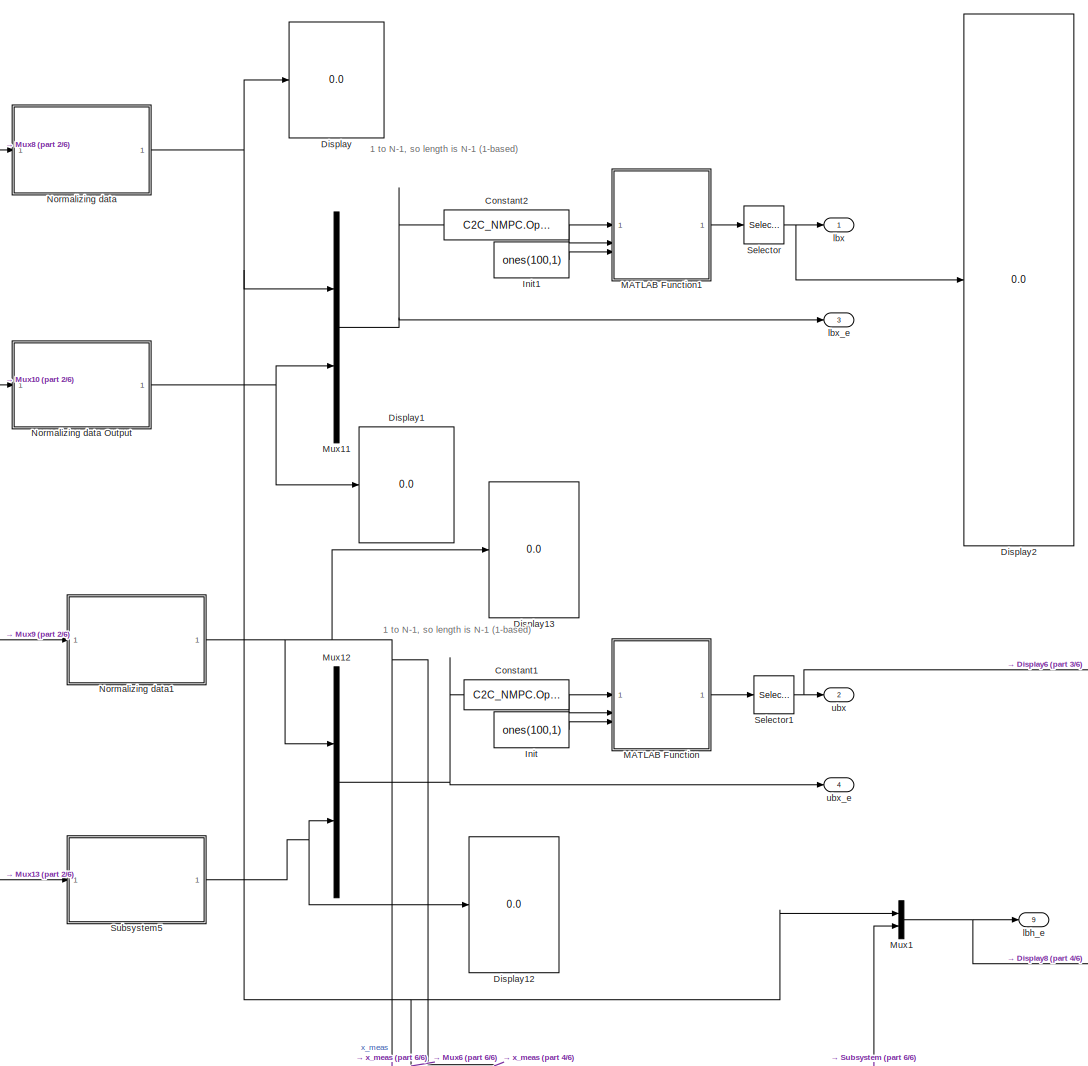
[diagram: dynamics/C2C_NMPC/C2C_NMPC_n3/constraints1 - part 1/6, top center region]
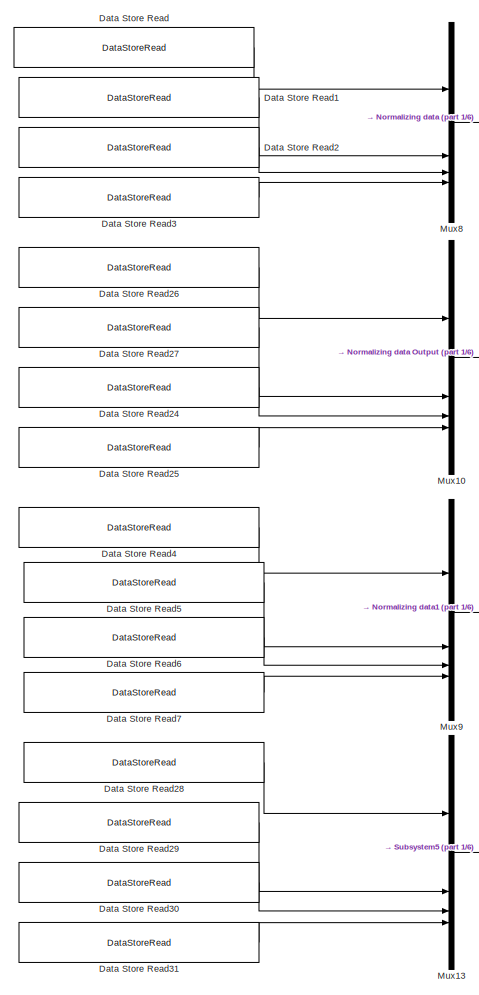
[diagram: dynamics/C2C_NMPC/C2C_NMPC_n3/constraints1 - part 2/6, top left region]
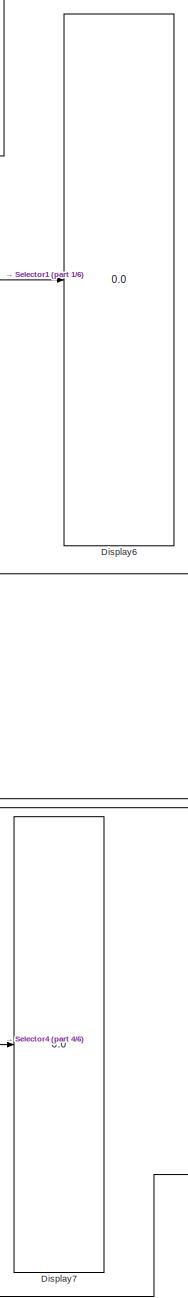
[diagram: dynamics/C2C_NMPC/C2C_NMPC_n3/constraints1 - part 3/6, middle right region]
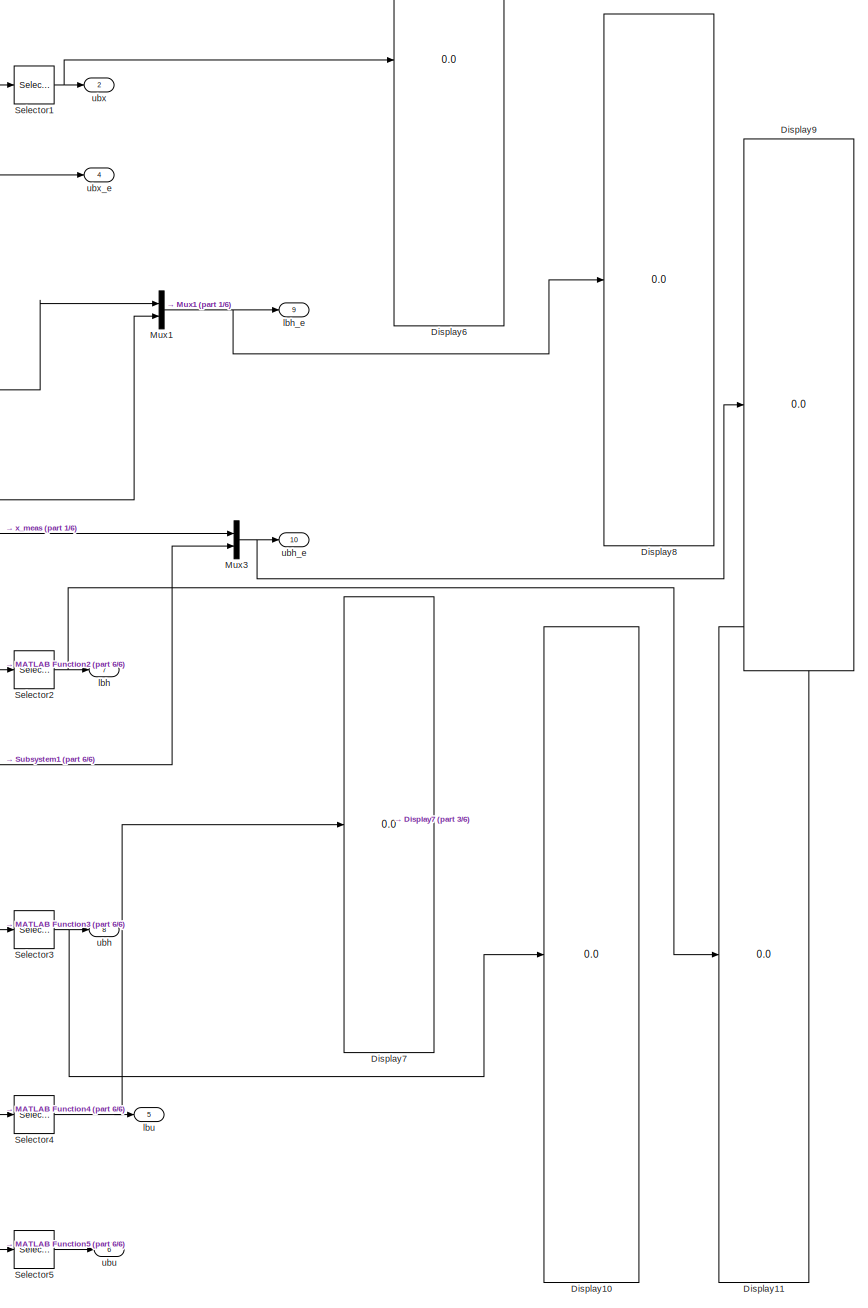
[diagram: dynamics/C2C_NMPC/C2C_NMPC_n3/constraints1 - part 4/6, middle right region]
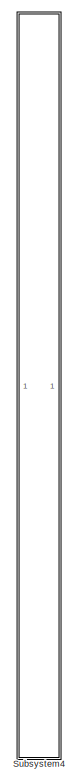
[diagram: dynamics/C2C_NMPC/C2C_NMPC_n3/constraints1 - part 5/6, middle left region]
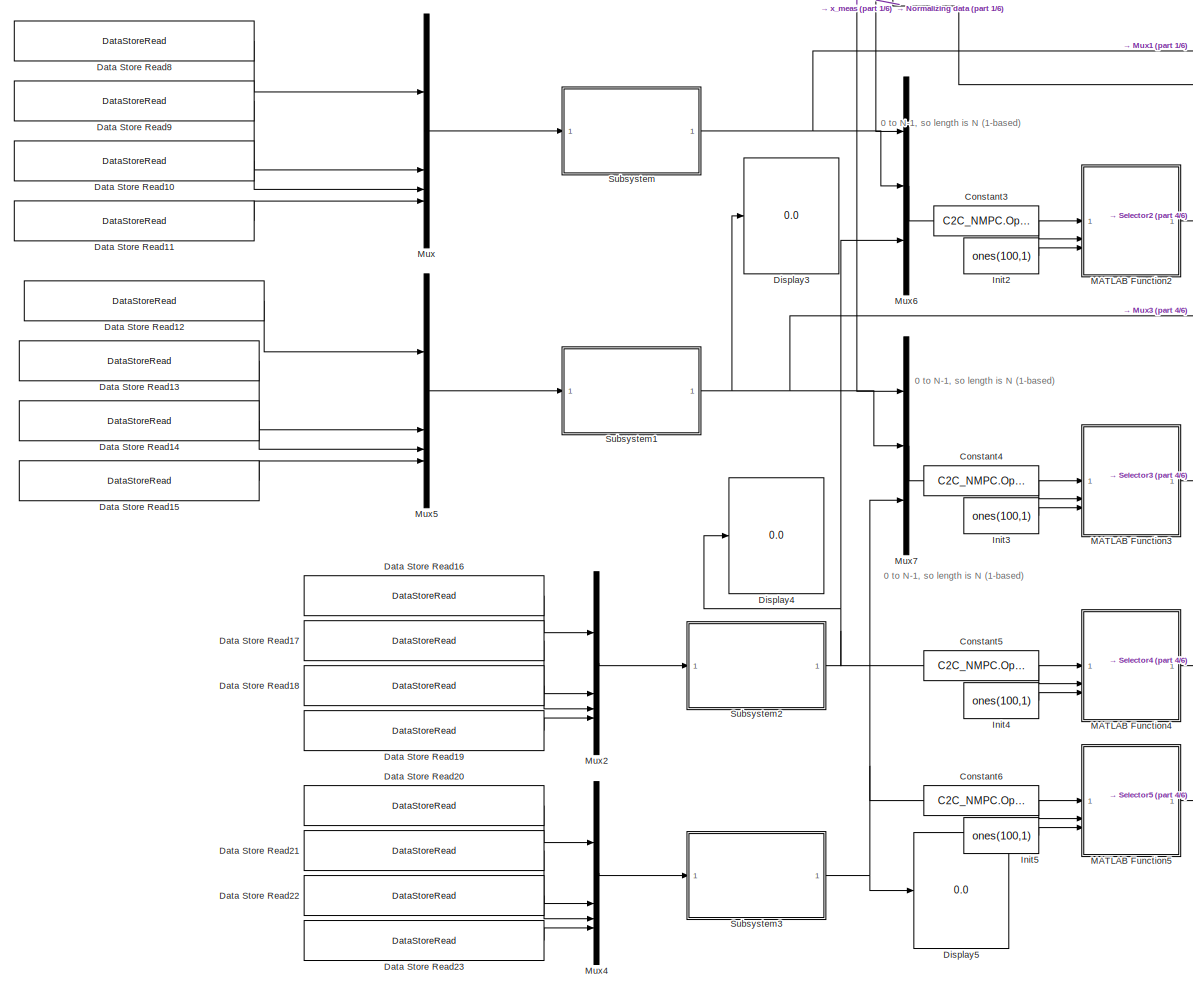
[diagram: dynamics/C2C_NMPC/C2C_NMPC_n3/constraints1 - part 6/6, bottom center region]
BLOCK [SubSystem] dynamics/C2C_NMPC/C2C_NMPC_n3/constraints1
BLOCK [Constant] dynamics/C2C_NMPC/C2C_NMPC_n3/constraints1/Constant1
  Value = C2C_NMPC.Opts.N-1
BLOCK [Constant] dynamics/C2C_NMPC/C2C_NMPC_n3/constraints1/Constant2
  Value = C2C_NMPC.Opts.N-1
BLOCK [Constant] dynamics/C2C_NMPC/C2C_NMPC_n3/constraints1/Constant3
  Value = C2C_NMPC.Opts.N
BLOCK [Constant] dynamics/C2C_NMPC/C2C_NMPC_n3/constraints1/Constant4
  Value = C2C_NMPC.Opts.N
BLOCK [Constant] dynamics/C2C_NMPC/C2C_NMPC_n3/constraints1/Constant5
  Value = C2C_NMPC.Opts.N
BLOCK [Constant] dynamics/C2C_NMPC/C2C_NMPC_n3/constraints1/Constant6
  Value = C2C_NMPC.Opts.N
BLOCK [DataStoreRead] dynamics/C2C_NMPC/C2C_NMPC_n3/constraints1/Data Store Read
  DataStoreName = C2C_NMPC_constraints_low_DOI_main
  IndexOptions = Index vector (dialog)
  Indices = 1
  OutputSizes = 1
BLOCK [DataStoreRead] dynamics/C2C_NMPC/C2C_NMPC_n3/constraints1/Data Store Read1
  DataStoreName = C2C_NMPC_constraints_low_P2M
  IndexOptions = Index vector (dialog)
  Indices = 1
  OutputSizes = 1
BLOCK [DataStoreRead] dynamics/C2C_NMPC/C2C_NMPC_n3/constraints1/Data Store Read10
  DataStoreName = C2C_NMPC_constraints_low_SOOT_soft
  IndexOptions = Index vector (dialog)
  Indices = 1
  OutputSizes = 1
BLOCK [DataStoreRead] dynamics/C2C_NMPC/C2C_NMPC_n3/constraints1/Data Store Read11
  DataStoreName = C2C_NMPC_constraints_low_MPRR_soft
  IndexOptions = Index vector (dialog)
  Indices = 1
  OutputSizes = 1
BLOCK [DataStoreRead] dynamics/C2C_NMPC/C2C_NMPC_n3/constraints1/Data Store Read12
  DataStoreName = C2C_NMPC_constraints_up_IMEP_soft
  IndexOptions = Index vector (dialog)
  Indices = 1
  OutputSizes = 1
BLOCK [DataStoreRead] dynamics/C2C_NMPC/C2C_NMPC_n3/constraints1/Data Store Read13
  DataStoreName = C2C_NMPC_constraints_up_NOX_soft
  IndexOptions = Index vector (dialog)
  Indices = 1
  OutputSizes = 1
BLOCK [DataStoreRead] dynamics/C2C_NMPC/C2C_NMPC_n3/constraints1/Data Store Read14
  DataStoreName = C2C_NMPC_constraints_up_SOOT_soft
  IndexOptions = Index vector (dialog)
  Indices = 1
  OutputSizes = 1
BLOCK [DataStoreRead] dynamics/C2C_NMPC/C2C_NMPC_n3/constraints1/Data Store Read15
  DataStoreName = C2C_NMPC_constraints_up_MPRR_soft
  IndexOptions = Index vector (dialog)
  Indices = 1
  OutputSizes = 1
BLOCK [DataStoreRead] dynamics/C2C_NMPC/C2C_NMPC_n3/constraints1/Data Store Read16
  DataStoreName = C2C_NMPC_constraints_low_dt_DOI_main
  IndexOptions = Index vector (dialog)
  Indices = 1
  OutputSizes = 1
BLOCK [DataStoreRead] dynamics/C2C_NMPC/C2C_NMPC_n3/constraints1/Data Store Read17
  DataStoreName = C2C_NMPC_constraints_low_dt_P2M
  IndexOptions = Index vector (dialog)
  Indices = 1
  OutputSizes = 1
BLOCK [DataStoreRead] dynamics/C2C_NMPC/C2C_NMPC_n3/constraints1/Data Store Read18
  DataStoreName = C2C_NMPC_constraints_low_dt_SOI_main
  IndexOptions = Index vector (dialog)
  Indices = 1
  OutputSizes = 1
BLOCK [DataStoreRead] dynamics/C2C_NMPC/C2C_NMPC_n3/constraints1/Data Store Read19
  DataStoreName = C2C_NMPC_constraints_low_dt_DOI_H2
  IndexOptions = Index vector (dialog)
  Indices = 1
  OutputSizes = 1
BLOCK [DataStoreRead] dynamics/C2C_NMPC/C2C_NMPC_n3/constraints1/Data Store Read2
  DataStoreName = C2C_NMPC_constraints_low_SOI_main
  IndexOptions = Index vector (dialog)
  Indices = 1
  OutputSizes = 1
BLOCK [DataStoreRead] dynamics/C2C_NMPC/C2C_NMPC_n3/constraints1/Data Store Read20
  DataStoreName = C2C_NMPC_constraints_up_dt_DOI_main
  IndexOptions = Index vector (dialog)
  Indices = 1
  OutputSizes = 1
BLOCK [DataStoreRead] dynamics/C2C_NMPC/C2C_NMPC_n3/constraints1/Data Store Read21
  DataStoreName = C2C_NMPC_constraints_up_dt_P2M
  IndexOptions = Index vector (dialog)
  Indices = 1
  OutputSizes = 1
BLOCK [DataStoreRead] dynamics/C2C_NMPC/C2C_NMPC_n3/constraints1/Data Store Read22
  DataStoreName = C2C_NMPC_constraints_up_dt_SOI_main
  IndexOptions = Index vector (dialog)
  Indices = 1
  OutputSizes = 1
BLOCK [DataStoreRead] dynamics/C2C_NMPC/C2C_NMPC_n3/constraints1/Data Store Read23
  DataStoreName = C2C_NMPC_constraints_up_dt_DOI_H1
  IndexOptions = Index vector (dialog)
  Indices = 1
  OutputSizes = 1
BLOCK [DataStoreRead] dynamics/C2C_NMPC/C2C_NMPC_n3/constraints1/Data Store Read24
  DataStoreName = C2C_NMPC_constraints_low_SOOT
  IndexOptions = Index vector (dialog)
  Indices = 1
  OutputSizes = 1
BLOCK [DataStoreRead] dynamics/C2C_NMPC/C2C_NMPC_n3/constraints1/Data Store Read25
  DataStoreName = C2C_NMPC_constraints_low_MPRR
  IndexOptions = Index vector (dialog)
  Indices = 1
  OutputSizes = 1
BLOCK [DataStoreRead] dynamics/C2C_NMPC/C2C_NMPC_n3/constraints1/Data Store Read26
  DataStoreName = C2C_NMPC_constraints_low_IMEP
  IndexOptions = Index vector (dialog)
  Indices = 1
  OutputSizes = 1
BLOCK [DataStoreRead] dynamics/C2C_NMPC/C2C_NMPC_n3/constraints1/Data Store Read27
  DataStoreName = C2C_NMPC_constraints_low_NOX
  IndexOptions = Index vector (dialog)
  Indices = 1
  OutputSizes = 1
BLOCK [DataStoreRead] dynamics/C2C_NMPC/C2C_NMPC_n3/constraints1/Data Store Read28
  DataStoreName = C2C_NMPC_constraints_up_IMEP
  IndexOptions = Index vector (dialog)
  Indices = 1
  OutputSizes = 1
BLOCK [DataStoreRead] dynamics/C2C_NMPC/C2C_NMPC_n3/constraints1/Data Store Read29
  DataStoreName = C2C_NMPC_constraints_up_NOX
  IndexOptions = Index vector (dialog)
  Indices = 1
  OutputSizes = 1
BLOCK [DataStoreRead] dynamics/C2C_NMPC/C2C_NMPC_n3/constraints1/Data Store Read3
  DataStoreName = C2C_NMPC_constraints_low_DOI_H2
  IndexOptions = Index vector (dialog)
  Indices = 1
  OutputSizes = 1
BLOCK [DataStoreRead] dynamics/C2C_NMPC/C2C_NMPC_n3/constraints1/Data Store Read30
  DataStoreName = C2C_NMPC_constraints_up_SOOT
  IndexOptions = Index vector (dialog)
  Indices = 1
  OutputSizes = 1
BLOCK [DataStoreRead] dynamics/C2C_NMPC/C2C_NMPC_n3/constraints1/Data Store Read31
  DataStoreName = C2C_NMPC_constraints_up_MPRR
  IndexOptions = Index vector (dialog)
  Indices = 1
  OutputSizes = 1
BLOCK [DataStoreRead] dynamics/C2C_NMPC/C2C_NMPC_n3/constraints1/Data Store Read4
  DataStoreName = C2C_NMPC_constraints_up_DOI_main
  IndexOptions = Index vector (dialog)
  Indices = 1
  OutputSizes = 1
BLOCK [DataStoreRead] dynamics/C2C_NMPC/C2C_NMPC_n3/constraints1/Data Store Read5
  DataStoreName = C2C_NMPC_constraints_up_P2M
  IndexOptions = Index vector (dialog)
  Indices = 1
  OutputSizes = 1
BLOCK [DataStoreRead] dynamics/C2C_NMPC/C2C_NMPC_n3/constraints1/Data Store Read6
  DataStoreName = C2C_NMPC_constraints_up_SOI_main
  IndexOptions = Index vector (dialog)
  Indices = 1
  OutputSizes = 1
BLOCK [DataStoreRead] dynamics/C2C_NMPC/C2C_NMPC_n3/constraints1/Data Store Read7
  DataStoreName = C2C_NMPC_constraints_up_DOI_H2
  IndexOptions = Index vector (dialog)
  Indices = 1
  OutputSizes = 1
BLOCK [DataStoreRead] dynamics/C2C_NMPC/C2C_NMPC_n3/constraints1/Data Store Read8
  DataStoreName = C2C_NMPC_constraints_low_IMEP_soft
  IndexOptions = Index vector (dialog)
  Indices = 1
  OutputSizes = 1
BLOCK [DataStoreRead] dynamics/C2C_NMPC/C2C_NMPC_n3/constraints1/Data Store Read9
  DataStoreName = C2C_NMPC_constraints_low_NOX_soft
  IndexOptions = Index vector (dialog)
  Indices = 1
  OutputSizes = 1
BLOCK [Display] dynamics/C2C_NMPC/C2C_NMPC_n3/constraints1/Display
  Decimation = 1
BLOCK [Display] dynamics/C2C_NMPC/C2C_NMPC_n3/constraints1/Display1
  Decimation = 1
BLOCK [Display] dynamics/C2C_NMPC/C2C_NMPC_n3/constraints1/Display10
  Decimation = 1
BLOCK [Display] dynamics/C2C_NMPC/C2C_NMPC_n3/constraints1/Display11
  Decimation = 1
BLOCK [Display] dynamics/C2C_NMPC/C2C_NMPC_n3/constraints1/Display12
  Decimation = 1
BLOCK [Display] dynamics/C2C_NMPC/C2C_NMPC_n3/constraints1/Display13
  Decimation = 1
BLOCK [Display] dynamics/C2C_NMPC/C2C_NMPC_n3/constraints1/Display2
  Decimation = 1
BLOCK [Display] dynamics/C2C_NMPC/C2C_NMPC_n3/constraints1/Display3
  Decimation = 1
BLOCK [Display] dynamics/C2C_NMPC/C2C_NMPC_n3/constraints1/Display4
  Decimation = 1
BLOCK [Display] dynamics/C2C_NMPC/C2C_NMPC_n3/constraints1/Display5
  Decimation = 1
BLOCK [Display] dynamics/C2C_NMPC/C2C_NMPC_n3/constraints1/Display6
  Decimation = 1
BLOCK [Display] dynamics/C2C_NMPC/C2C_NMPC_n3/constraints1/Display7
  Decimation = 1
BLOCK [Display] dynamics/C2C_NMPC/C2C_NMPC_n3/constraints1/Display8
  Decimation = 1
BLOCK [Display] dynamics/C2C_NMPC/C2C_NMPC_n3/constraints1/Display9
  Decimation = 1
BLOCK [Constant] dynamics/C2C_NMPC/C2C_NMPC_n3/constraints1/Init
  Value = ones(100,1)
BLOCK [Constant] dynamics/C2C_NMPC/C2C_NMPC_n3/constraints1/Init1
  Value = ones(100,1)
BLOCK [Constant] dynamics/C2C_NMPC/C2C_NMPC_n3/constraints1/Init2
  Value = ones(100,1)
BLOCK [Constant] dynamics/C2C_NMPC/C2C_NMPC_n3/constraints1/Init3
  Value = ones(100,1)
BLOCK [Constant] dynamics/C2C_NMPC/C2C_NMPC_n3/constraints1/Init4
  Value = ones(100,1)
BLOCK [Constant] dynamics/C2C_NMPC/C2C_NMPC_n3/constraints1/Init5
  Value = ones(100,1)
BLOCK [SubSystem] dynamics/C2C_NMPC/C2C_NMPC_n3/constraints1/MATLAB Function
  ErrorFcn = Stateflow.Translate.translate
  PermitHierarchicalResolution = ExplicitOnly
  SFBlockType = MATLAB Function
  TreatAsAtomicUnit = on
BLOCK [Demux] dynamics/C2C_NMPC/C2C_NMPC_n3/constraints1/MATLAB Function/ Demux 
  Outputs = 1
BLOCK [S-Function] dynamics/C2C_NMPC/C2C_NMPC_n3/constraints1/MATLAB Function/ SFunction 
  EnableBusSupport = on
  FunctionName = sf_sfun
  PortCounts = [3 2]
  SFcnIsStateOwnerBlock = off
  SFunctionDeploymentMode = off
  Tag = Stateflow S-Function 39
BLOCK [Terminator] dynamics/C2C_NMPC/C2C_NMPC_n3/constraints1/MATLAB Function/ Terminator 
BLOCK [Inport] dynamics/C2C_NMPC/C2C_NMPC_n3/constraints1/MATLAB Function/init_vector
  Port = 3
BLOCK [Inport] dynamics/C2C_NMPC/C2C_NMPC_n3/constraints1/MATLAB Function/length
  Port = 2
BLOCK [Inport] dynamics/C2C_NMPC/C2C_NMPC_n3/constraints1/MATLAB Function/value
BLOCK [Outport] dynamics/C2C_NMPC/C2C_NMPC_n3/constraints1/MATLAB Function/vector
BLOCK [SubSystem] dynamics/C2C_NMPC/C2C_NMPC_n3/constraints1/MATLAB Function1
  ErrorFcn = Stateflow.Translate.translate
  PermitHierarchicalResolution = ExplicitOnly
  SFBlockType = MATLAB Function
  TreatAsAtomicUnit = on
BLOCK [Demux] dynamics/C2C_NMPC/C2C_NMPC_n3/constraints1/MATLAB Function1/ Demux 
  Outputs = 1
BLOCK [S-Function] dynamics/C2C_NMPC/C2C_NMPC_n3/constraints1/MATLAB Function1/ SFunction 
  EnableBusSupport = on
  FunctionName = sf_sfun
  PortCounts = [3 2]
  SFcnIsStateOwnerBlock = off
  SFunctionDeploymentMode = off
  Tag = Stateflow S-Function 40
BLOCK [Terminator] dynamics/C2C_NMPC/C2C_NMPC_n3/constraints1/MATLAB Function1/ Terminator 
BLOCK [Inport] dynamics/C2C_NMPC/C2C_NMPC_n3/constraints1/MATLAB Function1/init_vector
  Port = 3
BLOCK [Inport] dynamics/C2C_NMPC/C2C_NMPC_n3/constraints1/MATLAB Function1/length
  Port = 2
BLOCK [Inport] dynamics/C2C_NMPC/C2C_NMPC_n3/constraints1/MATLAB Function1/value
BLOCK [Outport] dynamics/C2C_NMPC/C2C_NMPC_n3/constraints1/MATLAB Function1/vector
BLOCK [SubSystem] dynamics/C2C_NMPC/C2C_NMPC_n3/constraints1/MATLAB Function2
  ErrorFcn = Stateflow.Translate.translate
  PermitHierarchicalResolution = ExplicitOnly
  SFBlockType = MATLAB Function
  TreatAsAtomicUnit = on
BLOCK [Demux] dynamics/C2C_NMPC/C2C_NMPC_n3/constraints1/MATLAB Function2/ Demux 
  Outputs = 1
BLOCK [S-Function] dynamics/C2C_NMPC/C2C_NMPC_n3/constraints1/MATLAB Function2/ SFunction 
  EnableBusSupport = on
  FunctionName = sf_sfun
  PortCounts = [3 2]
  SFcnIsStateOwnerBlock = off
  SFunctionDeploymentMode = off
  Tag = Stateflow S-Function 41
BLOCK [Terminator] dynamics/C2C_NMPC/C2C_NMPC_n3/constraints1/MATLAB Function2/ Terminator 
BLOCK [Inport] dynamics/C2C_NMPC/C2C_NMPC_n3/constraints1/MATLAB Function2/init_vector
  Port = 3
BLOCK [Inport] dynamics/C2C_NMPC/C2C_NMPC_n3/constraints1/MATLAB Function2/length
  Port = 2
BLOCK [Inport] dynamics/C2C_NMPC/C2C_NMPC_n3/constraints1/MATLAB Function2/value
BLOCK [Outport] dynamics/C2C_NMPC/C2C_NMPC_n3/constraints1/MATLAB Function2/vector
BLOCK [SubSystem] dynamics/C2C_NMPC/C2C_NMPC_n3/constraints1/MATLAB Function3
  ErrorFcn = Stateflow.Translate.translate
  PermitHierarchicalResolution = ExplicitOnly
  SFBlockType = MATLAB Function
  TreatAsAtomicUnit = on
BLOCK [Demux] dynamics/C2C_NMPC/C2C_NMPC_n3/constraints1/MATLAB Function3/ Demux 
  Outputs = 1
BLOCK [S-Function] dynamics/C2C_NMPC/C2C_NMPC_n3/constraints1/MATLAB Function3/ SFunction 
  EnableBusSupport = on
  FunctionName = sf_sfun
  PortCounts = [3 2]
  SFcnIsStateOwnerBlock = off
  SFunctionDeploymentMode = off
  Tag = Stateflow S-Function 48
BLOCK [Terminator] dynamics/C2C_NMPC/C2C_NMPC_n3/constraints1/MATLAB Function3/ Terminator 
BLOCK [Inport] dynamics/C2C_NMPC/C2C_NMPC_n3/constraints1/MATLAB Function3/init_vector
  Port = 3
BLOCK [Inport] dynamics/C2C_NMPC/C2C_NMPC_n3/constraints1/MATLAB Function3/length
  Port = 2
BLOCK [Inport] dynamics/C2C_NMPC/C2C_NMPC_n3/constraints1/MATLAB Function3/value
BLOCK [Outport] dynamics/C2C_NMPC/C2C_NMPC_n3/constraints1/MATLAB Function3/vector
BLOCK [SubSystem] dynamics/C2C_NMPC/C2C_NMPC_n3/constraints1/MATLAB Function4
  ErrorFcn = Stateflow.Translate.translate
  PermitHierarchicalResolution = ExplicitOnly
  SFBlockType = MATLAB Function
  TreatAsAtomicUnit = on
BLOCK [Demux] dynamics/C2C_NMPC/C2C_NMPC_n3/constraints1/MATLAB Function4/ Demux 
  Outputs = 1
BLOCK [S-Function] dynamics/C2C_NMPC/C2C_NMPC_n3/constraints1/MATLAB Function4/ SFunction 
  EnableBusSupport = on
  FunctionName = sf_sfun
  PortCounts = [3 2]
  SFcnIsStateOwnerBlock = off
  SFunctionDeploymentMode = off
  Tag = Stateflow S-Function 49
BLOCK [Terminator] dynamics/C2C_NMPC/C2C_NMPC_n3/constraints1/MATLAB Function4/ Terminator 
BLOCK [Inport] dynamics/C2C_NMPC/C2C_NMPC_n3/constraints1/MATLAB Function4/init_vector
  Port = 3
BLOCK [Inport] dynamics/C2C_NMPC/C2C_NMPC_n3/constraints1/MATLAB Function4/length
  Port = 2
BLOCK [Inport] dynamics/C2C_NMPC/C2C_NMPC_n3/constraints1/MATLAB Function4/value
BLOCK [Outport] dynamics/C2C_NMPC/C2C_NMPC_n3/constraints1/MATLAB Function4/vector
BLOCK [SubSystem] dynamics/C2C_NMPC/C2C_NMPC_n3/constraints1/MATLAB Function5
  ErrorFcn = Stateflow.Translate.translate
  PermitHierarchicalResolution = ExplicitOnly
  SFBlockType = MATLAB Function
  TreatAsAtomicUnit = on
BLOCK [Demux] dynamics/C2C_NMPC/C2C_NMPC_n3/constraints1/MATLAB Function5/ Demux 
  Outputs = 1
BLOCK [S-Function] dynamics/C2C_NMPC/C2C_NMPC_n3/constraints1/MATLAB Function5/ SFunction 
  EnableBusSupport = on
  FunctionName = sf_sfun
  PortCounts = [3 2]
  SFcnIsStateOwnerBlock = off
  SFunctionDeploymentMode = off
  Tag = Stateflow S-Function 50
BLOCK [Terminator] dynamics/C2C_NMPC/C2C_NMPC_n3/constraints1/MATLAB Function5/ Terminator 
BLOCK [Inport] dynamics/C2C_NMPC/C2C_NMPC_n3/constraints1/MATLAB Function5/init_vector
  Port = 3
BLOCK [Inport] dynamics/C2C_NMPC/C2C_NMPC_n3/constraints1/MATLAB Function5/length
  Port = 2
BLOCK [Inport] dynamics/C2C_NMPC/C2C_NMPC_n3/constraints1/MATLAB Function5/value
BLOCK [Outport] dynamics/C2C_NMPC/C2C_NMPC_n3/constraints1/MATLAB Function5/vector
BLOCK [Mux] dynamics/C2C_NMPC/C2C_NMPC_n3/constraints1/Mux
  DisplayOption = bar
BLOCK [Mux] dynamics/C2C_NMPC/C2C_NMPC_n3/constraints1/Mux1
  DisplayOption = bar
  Inputs = 2
BLOCK [Mux] dynamics/C2C_NMPC/C2C_NMPC_n3/constraints1/Mux10
  DisplayOption = bar
BLOCK [Mux] dynamics/C2C_NMPC/C2C_NMPC_n3/constraints1/Mux11
  DisplayOption = bar
  Inputs = 2
BLOCK [Mux] dynamics/C2C_NMPC/C2C_NMPC_n3/constraints1/Mux12
  DisplayOption = bar
  Inputs = 2
BLOCK [Mux] dynamics/C2C_NMPC/C2C_NMPC_n3/constraints1/Mux13
  DisplayOption = bar
BLOCK [Mux] dynamics/C2C_NMPC/C2C_NMPC_n3/constraints1/Mux2
  DisplayOption = bar
BLOCK [Mux] dynamics/C2C_NMPC/C2C_NMPC_n3/constraints1/Mux3
  DisplayOption = bar
  Inputs = 2
BLOCK [Mux] dynamics/C2C_NMPC/C2C_NMPC_n3/constraints1/Mux4
  DisplayOption = bar
BLOCK [Mux] dynamics/C2C_NMPC/C2C_NMPC_n3/constraints1/Mux5
  DisplayOption = bar
BLOCK [Mux] dynamics/C2C_NMPC/C2C_NMPC_n3/constraints1/Mux6
  DisplayOption = bar
  Inputs = 3
BLOCK [Mux] dynamics/C2C_NMPC/C2C_NMPC_n3/constraints1/Mux7
  DisplayOption = bar
  Inputs = 3
BLOCK [Mux] dynamics/C2C_NMPC/C2C_NMPC_n3/constraints1/Mux8
  DisplayOption = bar
BLOCK [Mux] dynamics/C2C_NMPC/C2C_NMPC_n3/constraints1/Mux9
  DisplayOption = bar
BLOCK [SubSystem] dynamics/C2C_NMPC/C2C_NMPC_n3/constraints1/Normalizing data
BLOCK [SubSystem] dynamics/C2C_NMPC/C2C_NMPC_n3/constraints1/Normalizing data Output
BLOCK [Constant] dynamics/C2C_NMPC/C2C_NMPC_n3/constraints1/Normalizing data Output/Constant
  Value = C2C_NMPC.Normalization.outputs.mean(1)
BLOCK [Constant] dynamics/C2C_NMPC/C2C_NMPC_n3/constraints1/Normalizing data Output/Constant1
  Value = C2C_NMPC.Normalization.outputs.mean(2)
BLOCK [Constant] dynamics/C2C_NMPC/C2C_NMPC_n3/constraints1/Normalizing data Output/Constant2
  Value = C2C_NMPC.Normalization.outputs.mean(3)
BLOCK [Constant] dynamics/C2C_NMPC/C2C_NMPC_n3/constraints1/Normalizing data Output/Constant3
  Value = C2C_NMPC.Normalization.outputs.mean(4)
BLOCK [Demux] dynamics/C2C_NMPC/C2C_NMPC_n3/constraints1/Normalizing data Output/Demux
BLOCK [Gain] dynamics/C2C_NMPC/C2C_NMPC_n3/constraints1/Normalizing data Output/Gain
  Gain = 1/C2C_NMPC.Normalization.outputs.std(1)
BLOCK [Gain] dynamics/C2C_NMPC/C2C_NMPC_n3/constraints1/Normalizing data Output/Gain1
  Gain = 1/C2C_NMPC.Normalization.outputs.std(2)
BLOCK [Gain] dynamics/C2C_NMPC/C2C_NMPC_n3/constraints1/Normalizing data Output/Gain2
  Gain = 1/C2C_NMPC.Normalization.outputs.std(3)
BLOCK [Gain] dynamics/C2C_NMPC/C2C_NMPC_n3/constraints1/Normalizing data Output/Gain3
  Gain = 1/C2C_NMPC.Normalization.outputs.std(4)
BLOCK [Inport] dynamics/C2C_NMPC/C2C_NMPC_n3/constraints1/Normalizing data Output/In
BLOCK [Mux] dynamics/C2C_NMPC/C2C_NMPC_n3/constraints1/Normalizing data Output/Mux
  DisplayOption = bar
BLOCK [Sum] dynamics/C2C_NMPC/C2C_NMPC_n3/constraints1/Normalizing data Output/Sum1
  Inputs = |+-
BLOCK [Sum] dynamics/C2C_NMPC/C2C_NMPC_n3/constraints1/Normalizing data Output/Sum2
  Inputs = |+-
BLOCK [Sum] dynamics/C2C_NMPC/C2C_NMPC_n3/constraints1/Normalizing data Output/Sum3
  Inputs = |+-
BLOCK [Sum] dynamics/C2C_NMPC/C2C_NMPC_n3/constraints1/Normalizing data Output/Sum5
  Inputs = |+-
BLOCK [Outport] dynamics/C2C_NMPC/C2C_NMPC_n3/constraints1/Normalizing data Output/value
BLOCK [Constant] dynamics/C2C_NMPC/C2C_NMPC_n3/constraints1/Normalizing data/Constant1
  Value = C2C_NMPC.Normalization.controls.mean(2)
BLOCK [Constant] dynamics/C2C_NMPC/C2C_NMPC_n3/constraints1/Normalizing data/Constant2
  Value = C2C_NMPC.Normalization.controls.mean(3)
BLOCK [Constant] dynamics/C2C_NMPC/C2C_NMPC_n3/constraints1/Normalizing data/Constant3
  Value = C2C_NMPC.Normalization.controls.mean(1)
BLOCK [Constant] dynamics/C2C_NMPC/C2C_NMPC_n3/constraints1/Normalizing data/Constant4
  Value = C2C_NMPC.Normalization.controls.mean(4)
BLOCK [Gain] dynamics/C2C_NMPC/C2C_NMPC_n3/constraints1/Normalizing data/Gain1
  Gain = 1/C2C_NMPC.Normalization.controls.std(2)
BLOCK [Gain] dynamics/C2C_NMPC/C2C_NMPC_n3/constraints1/Normalizing data/Gain2
  Gain = 1/C2C_NMPC.Normalization.controls.std(3)
BLOCK [Gain] dynamics/C2C_NMPC/C2C_NMPC_n3/constraints1/Normalizing data/Gain3
  Gain = 1/C2C_NMPC.Normalization.controls.std(4)
BLOCK [Gain] dynamics/C2C_NMPC/C2C_NMPC_n3/constraints1/Normalizing data/Gain4
  Gain = 1/C2C_NMPC.Normalization.controls.std(1)
BLOCK [Mux] dynamics/C2C_NMPC/C2C_NMPC_n3/constraints1/Normalizing data/Mux
  DisplayOption = bar
BLOCK [Selector] dynamics/C2C_NMPC/C2C_NMPC_n3/constraints1/Normalizing data/Selector
  IndexOptions = Index vector (dialog)
  Indices = [2]
  OutputSizes = 1
BLOCK [Selector] dynamics/C2C_NMPC/C2C_NMPC_n3/constraints1/Normalizing data/Selector1
  IndexOptions = Index vector (dialog)
  Indices = [1]
  OutputSizes = 1
BLOCK [Selector] dynamics/C2C_NMPC/C2C_NMPC_n3/constraints1/Normalizing data/Selector2
  IndexOptions = Index vector (dialog)
  Indices = [3]
  OutputSizes = 1
BLOCK [Selector] dynamics/C2C_NMPC/C2C_NMPC_n3/constraints1/Normalizing data/Selector3
  IndexOptions = Index vector (dialog)
  Indices = [4]
  OutputSizes = 1
BLOCK [Sum] dynamics/C2C_NMPC/C2C_NMPC_n3/constraints1/Normalizing data/Sum1
  Inputs = |+-
BLOCK [Sum] dynamics/C2C_NMPC/C2C_NMPC_n3/constraints1/Normalizing data/Sum2
  Inputs = |+-
BLOCK [Sum] dynamics/C2C_NMPC/C2C_NMPC_n3/constraints1/Normalizing data/Sum3
  Inputs = |+-
BLOCK [Sum] dynamics/C2C_NMPC/C2C_NMPC_n3/constraints1/Normalizing data/Sum4
  Inputs = |+-
BLOCK [Outport] dynamics/C2C_NMPC/C2C_NMPC_n3/constraints1/Normalizing data/normalized_data
BLOCK [Inport] dynamics/C2C_NMPC/C2C_NMPC_n3/constraints1/Normalizing data/physical_data
BLOCK [SubSystem] dynamics/C2C_NMPC/C2C_NMPC_n3/constraints1/Normalizing data1
BLOCK [Constant] dynamics/C2C_NMPC/C2C_NMPC_n3/constraints1/Normalizing data1/Constant1
  Value = C2C_NMPC.Normalization.controls.mean(2)
BLOCK [Constant] dynamics/C2C_NMPC/C2C_NMPC_n3/constraints1/Normalizing data1/Constant2
  Value = C2C_NMPC.Normalization.controls.mean(3)
BLOCK [Constant] dynamics/C2C_NMPC/C2C_NMPC_n3/constraints1/Normalizing data1/Constant3
  Value = C2C_NMPC.Normalization.controls.mean(1)
BLOCK [Constant] dynamics/C2C_NMPC/C2C_NMPC_n3/constraints1/Normalizing data1/Constant4
  Value = C2C_NMPC.Normalization.controls.mean(4)
BLOCK [Gain] dynamics/C2C_NMPC/C2C_NMPC_n3/constraints1/Normalizing data1/Gain1
  Gain = 1/C2C_NMPC.Normalization.controls.std(2)
BLOCK [Gain] dynamics/C2C_NMPC/C2C_NMPC_n3/constraints1/Normalizing data1/Gain2
  Gain = 1/C2C_NMPC.Normalization.controls.std(3)
BLOCK [Gain] dynamics/C2C_NMPC/C2C_NMPC_n3/constraints1/Normalizing data1/Gain3
  Gain = 1/C2C_NMPC.Normalization.controls.std(4)
BLOCK [Gain] dynamics/C2C_NMPC/C2C_NMPC_n3/constraints1/Normalizing data1/Gain4
  Gain = 1/C2C_NMPC.Normalization.controls.std(1)
BLOCK [Mux] dynamics/C2C_NMPC/C2C_NMPC_n3/constraints1/Normalizing data1/Mux
  DisplayOption = bar
BLOCK [Selector] dynamics/C2C_NMPC/C2C_NMPC_n3/constraints1/Normalizing data1/Selector
  IndexOptions = Index vector (dialog)
  Indices = [2]
  OutputSizes = 1
BLOCK [Selector] dynamics/C2C_NMPC/C2C_NMPC_n3/constraints1/Normalizing data1/Selector1
  IndexOptions = Index vector (dialog)
  Indices = [1]
  OutputSizes = 1
BLOCK [Selector] dynamics/C2C_NMPC/C2C_NMPC_n3/constraints1/Normalizing data1/Selector2
  IndexOptions = Index vector (dialog)
  Indices = [3]
  OutputSizes = 1
BLOCK [Selector] dynamics/C2C_NMPC/C2C_NMPC_n3/constraints1/Normalizing data1/Selector3
  IndexOptions = Index vector (dialog)
  Indices = [4]
  OutputSizes = 1
BLOCK [Sum] dynamics/C2C_NMPC/C2C_NMPC_n3/constraints1/Normalizing data1/Sum1
  Inputs = |+-
BLOCK [Sum] dynamics/C2C_NMPC/C2C_NMPC_n3/constraints1/Normalizing data1/Sum2
  Inputs = |+-
BLOCK [Sum] dynamics/C2C_NMPC/C2C_NMPC_n3/constraints1/Normalizing data1/Sum3
  Inputs = |+-
BLOCK [Sum] dynamics/C2C_NMPC/C2C_NMPC_n3/constraints1/Normalizing data1/Sum4
  Inputs = |+-
BLOCK [Outport] dynamics/C2C_NMPC/C2C_NMPC_n3/constraints1/Normalizing data1/normalized_data
BLOCK [Inport] dynamics/C2C_NMPC/C2C_NMPC_n3/constraints1/Normalizing data1/physical_data
BLOCK [Selector] dynamics/C2C_NMPC/C2C_NMPC_n3/constraints1/Selector
  IndexOptions = Index vector (dialog)
  Indices = 1:((C2C_NMPC.Opts.N-1)*(C2C_NMPC.Dims.n_controls+C2C_NMPC.Dims.n_outputs))
  OutputSizes = 1
BLOCK [Selector] dynamics/C2C_NMPC/C2C_NMPC_n3/constraints1/Selector1
  IndexOptions = Index vector (dialog)
  Indices = 1:((C2C_NMPC.Opts.N-1)*(C2C_NMPC.Dims.n_controls+C2C_NMPC.Dims.n_outputs))
  OutputSizes = 1
BLOCK [Selector] dynamics/C2C_NMPC/C2C_NMPC_n3/constraints1/Selector2
  IndexOptions = Index vector (dialog)
  Indices = 1:((C2C_NMPC.Opts.N-1)*(C2C_NMPC.Dims.n_outputs + C2C_NMPC.Dims.n_controls +C2C_NMPC.Dims.n_controls))
  OutputSizes = 1
BLOCK [Selector] dynamics/C2C_NMPC/C2C_NMPC_n3/constraints1/Selector3
  IndexOptions = Index vector (dialog)
  Indices = 1:((C2C_NMPC.Opts.N-1)*(C2C_NMPC.Dims.n_outputs + C2C_NMPC.Dims.n_controls +C2C_NMPC.Dims.n_controls))
  OutputSizes = 1
BLOCK [Selector] dynamics/C2C_NMPC/C2C_NMPC_n3/constraints1/Selector4
  IndexOptions = Index vector (dialog)
  Indices = 1:((C2C_NMPC.Opts.N)*(C2C_NMPC.Dims.n_controls))
  OutputSizes = 1
BLOCK [Selector] dynamics/C2C_NMPC/C2C_NMPC_n3/constraints1/Selector5
  IndexOptions = Index vector (dialog)
  Indices = 1:((C2C_NMPC.Opts.N)*(C2C_NMPC.Dims.n_controls))
  OutputSizes = 1
BLOCK [SubSystem] dynamics/C2C_NMPC/C2C_NMPC_n3/constraints1/Subsystem
BLOCK [Constant] dynamics/C2C_NMPC/C2C_NMPC_n3/constraints1/Subsystem/Constant
  Value = C2C_NMPC.Normalization.outputs.mean(1)
BLOCK [Constant] dynamics/C2C_NMPC/C2C_NMPC_n3/constraints1/Subsystem/Constant1
  Value = C2C_NMPC.Normalization.outputs.mean(2)
BLOCK [Constant] dynamics/C2C_NMPC/C2C_NMPC_n3/constraints1/Subsystem/Constant2
  Value = C2C_NMPC.Normalization.outputs.mean(3)
BLOCK [Constant] dynamics/C2C_NMPC/C2C_NMPC_n3/constraints1/Subsystem/Constant3
  Value = C2C_NMPC.Normalization.outputs.mean(4)
BLOCK [Demux] dynamics/C2C_NMPC/C2C_NMPC_n3/constraints1/Subsystem/Demux
BLOCK [Gain] dynamics/C2C_NMPC/C2C_NMPC_n3/constraints1/Subsystem/Gain
  Gain = 1/C2C_NMPC.Normalization.outputs.std(1)
BLOCK [Gain] dynamics/C2C_NMPC/C2C_NMPC_n3/constraints1/Subsystem/Gain1
  Gain = 1/C2C_NMPC.Normalization.outputs.std(2)
BLOCK [Gain] dynamics/C2C_NMPC/C2C_NMPC_n3/constraints1/Subsystem/Gain2
  Gain = 1/C2C_NMPC.Normalization.outputs.std(3)
BLOCK [Gain] dynamics/C2C_NMPC/C2C_NMPC_n3/constraints1/Subsystem/Gain3
  Gain = 1/C2C_NMPC.Normalization.outputs.std(4)
BLOCK [Inport] dynamics/C2C_NMPC/C2C_NMPC_n3/constraints1/Subsystem/In
BLOCK [Mux] dynamics/C2C_NMPC/C2C_NMPC_n3/constraints1/Subsystem/Mux
  DisplayOption = bar
BLOCK [Sum] dynamics/C2C_NMPC/C2C_NMPC_n3/constraints1/Subsystem/Sum1
  Inputs = |+-
BLOCK [Sum] dynamics/C2C_NMPC/C2C_NMPC_n3/constraints1/Subsystem/Sum2
  Inputs = |+-
BLOCK [Sum] dynamics/C2C_NMPC/C2C_NMPC_n3/constraints1/Subsystem/Sum3
  Inputs = |+-
BLOCK [Sum] dynamics/C2C_NMPC/C2C_NMPC_n3/constraints1/Subsystem/Sum5
  Inputs = |+-
BLOCK [Outport] dynamics/C2C_NMPC/C2C_NMPC_n3/constraints1/Subsystem/value
BLOCK [SubSystem] dynamics/C2C_NMPC/C2C_NMPC_n3/constraints1/Subsystem1
BLOCK [Constant] dynamics/C2C_NMPC/C2C_NMPC_n3/constraints1/Subsystem1/Constant
  Value = C2C_NMPC.Normalization.outputs.mean(1)
BLOCK [Constant] dynamics/C2C_NMPC/C2C_NMPC_n3/constraints1/Subsystem1/Constant1
  Value = C2C_NMPC.Normalization.outputs.mean(2)
BLOCK [Constant] dynamics/C2C_NMPC/C2C_NMPC_n3/constraints1/Subsystem1/Constant2
  Value = C2C_NMPC.Normalization.outputs.mean(3)
BLOCK [Constant] dynamics/C2C_NMPC/C2C_NMPC_n3/constraints1/Subsystem1/Constant3
  Value = C2C_NMPC.Normalization.outputs.mean(4)
BLOCK [Demux] dynamics/C2C_NMPC/C2C_NMPC_n3/constraints1/Subsystem1/Demux
BLOCK [Gain] dynamics/C2C_NMPC/C2C_NMPC_n3/constraints1/Subsystem1/Gain
  Gain = 1/C2C_NMPC.Normalization.outputs.std(1)
BLOCK [Gain] dynamics/C2C_NMPC/C2C_NMPC_n3/constraints1/Subsystem1/Gain1
  Gain = 1/C2C_NMPC.Normalization.outputs.std(2)
BLOCK [Gain] dynamics/C2C_NMPC/C2C_NMPC_n3/constraints1/Subsystem1/Gain2
  Gain = 1/C2C_NMPC.Normalization.outputs.std(3)
BLOCK [Gain] dynamics/C2C_NMPC/C2C_NMPC_n3/constraints1/Subsystem1/Gain3
  Gain = 1/C2C_NMPC.Normalization.outputs.std(4)
BLOCK [Inport] dynamics/C2C_NMPC/C2C_NMPC_n3/constraints1/Subsystem1/In
BLOCK [Mux] dynamics/C2C_NMPC/C2C_NMPC_n3/constraints1/Subsystem1/Mux
  DisplayOption = bar
BLOCK [Sum] dynamics/C2C_NMPC/C2C_NMPC_n3/constraints1/Subsystem1/Sum1
  Inputs = |+-
BLOCK [Sum] dynamics/C2C_NMPC/C2C_NMPC_n3/constraints1/Subsystem1/Sum2
  Inputs = |+-
BLOCK [Sum] dynamics/C2C_NMPC/C2C_NMPC_n3/constraints1/Subsystem1/Sum3
  Inputs = |+-
BLOCK [Sum] dynamics/C2C_NMPC/C2C_NMPC_n3/constraints1/Subsystem1/Sum5
  Inputs = |+-
BLOCK [Outport] dynamics/C2C_NMPC/C2C_NMPC_n3/constraints1/Subsystem1/ubh_e
BLOCK [SubSystem] dynamics/C2C_NMPC/C2C_NMPC_n3/constraints1/Subsystem2
  Commented = through
BLOCK [Demux] dynamics/C2C_NMPC/C2C_NMPC_n3/constraints1/Subsystem2/Demux
BLOCK [Gain] dynamics/C2C_NMPC/C2C_NMPC_n3/constraints1/Subsystem2/Gain
  Gain = 1/C2C_NMPC.Normalization.controls.std(1)
BLOCK [Gain] dynamics/C2C_NMPC/C2C_NMPC_n3/constraints1/Subsystem2/Gain1
  Gain = 1/C2C_NMPC.Normalization.controls.std(2)
BLOCK [Gain] dynamics/C2C_NMPC/C2C_NMPC_n3/constraints1/Subsystem2/Gain2
  Gain = 1/C2C_NMPC.Normalization.controls.std(3)
BLOCK [Gain] dynamics/C2C_NMPC/C2C_NMPC_n3/constraints1/Subsystem2/Gain3
  Gain = 1/C2C_NMPC.Normalization.controls.std(4)
BLOCK [Inport] dynamics/C2C_NMPC/C2C_NMPC_n3/constraints1/Subsystem2/In
BLOCK [Mux] dynamics/C2C_NMPC/C2C_NMPC_n3/constraints1/Subsystem2/Mux
  DisplayOption = bar
BLOCK [Outport] dynamics/C2C_NMPC/C2C_NMPC_n3/constraints1/Subsystem2/Out
BLOCK [SubSystem] dynamics/C2C_NMPC/C2C_NMPC_n3/constraints1/Subsystem3
  Commented = through
BLOCK [Demux] dynamics/C2C_NMPC/C2C_NMPC_n3/constraints1/Subsystem3/Demux
BLOCK [Gain] dynamics/C2C_NMPC/C2C_NMPC_n3/constraints1/Subsystem3/Gain
  Gain = 1/C2C_NMPC.Normalization.controls.std(1)
BLOCK [Gain] dynamics/C2C_NMPC/C2C_NMPC_n3/constraints1/Subsystem3/Gain1
  Gain = 1/C2C_NMPC.Normalization.controls.std(2)
BLOCK [Gain] dynamics/C2C_NMPC/C2C_NMPC_n3/constraints1/Subsystem3/Gain2
  Gain = 1/C2C_NMPC.Normalization.controls.std(3)
BLOCK [Gain] dynamics/C2C_NMPC/C2C_NMPC_n3/constraints1/Subsystem3/Gain3
  Gain = 1/C2C_NMPC.Normalization.controls.std(4)
BLOCK [Inport] dynamics/C2C_NMPC/C2C_NMPC_n3/constraints1/Subsystem3/In
BLOCK [Mux] dynamics/C2C_NMPC/C2C_NMPC_n3/constraints1/Subsystem3/Mux
  DisplayOption = bar
BLOCK [Outport] dynamics/C2C_NMPC/C2C_NMPC_n3/constraints1/Subsystem3/Out
BLOCK [SubSystem] dynamics/C2C_NMPC/C2C_NMPC_n3/constraints1/Subsystem4
  Commented = on
BLOCK [Constant] dynamics/C2C_NMPC/C2C_NMPC_n3/constraints1/Subsystem4/C2C_NMPC_constraints_low_DOI_H2
  Value = 0
BLOCK [Constant] dynamics/C2C_NMPC/C2C_NMPC_n3/constraints1/Subsystem4/C2C_NMPC_constraints_low_DOI_main
  Value = 0.17e-3
BLOCK [Constant] dynamics/C2C_NMPC/C2C_NMPC_n3/constraints1/Subsystem4/C2C_NMPC_constraints_low_IMEP
  Value = 0
BLOCK [Constant] dynamics/C2C_NMPC/C2C_NMPC_n3/constraints1/Subsystem4/C2C_NMPC_constraints_low_MPRR
  Value = 0
BLOCK [Constant] dynamics/C2C_NMPC/C2C_NMPC_n3/constraints1/Subsystem4/C2C_NMPC_constraints_low_NOX
  Value = 0
BLOCK [Constant] dynamics/C2C_NMPC/C2C_NMPC_n3/constraints1/Subsystem4/C2C_NMPC_constraints_low_P2M
  Value = 430
BLOCK [Constant] dynamics/C2C_NMPC/C2C_NMPC_n3/constraints1/Subsystem4/C2C_NMPC_constraints_low_SOI_main
  Value = -3
BLOCK [Constant] dynamics/C2C_NMPC/C2C_NMPC_n3/constraints1/Subsystem4/C2C_NMPC_constraints_low_SOOT
  Value = 0
BLOCK [Constant] dynamics/C2C_NMPC/C2C_NMPC_n3/constraints1/Subsystem4/C2C_NMPC_constraints_low_dt_DOI_H2
  Value = -1e6
BLOCK [Constant] dynamics/C2C_NMPC/C2C_NMPC_n3/constraints1/Subsystem4/C2C_NMPC_constraints_low_dt_DOI_main
  Value = -1e6
BLOCK [Constant] dynamics/C2C_NMPC/C2C_NMPC_n3/constraints1/Subsystem4/C2C_NMPC_constraints_low_dt_P2M
  Value = -1e6
BLOCK [Constant] dynamics/C2C_NMPC/C2C_NMPC_n3/constraints1/Subsystem4/C2C_NMPC_constraints_low_dt_SOI_main
  Value = -1e6
BLOCK [Constant] dynamics/C2C_NMPC/C2C_NMPC_n3/constraints1/Subsystem4/C2C_NMPC_constraints_up_DOI_H2
  Value = 5.5e-3
BLOCK [Constant] dynamics/C2C_NMPC/C2C_NMPC_n3/constraints1/Subsystem4/C2C_NMPC_constraints_up_DOI_main
  Value = 0.5e-3
BLOCK [Constant] dynamics/C2C_NMPC/C2C_NMPC_n3/constraints1/Subsystem4/C2C_NMPC_constraints_up_IMEP
  Value = 8e5
BLOCK [Constant] dynamics/C2C_NMPC/C2C_NMPC_n3/constraints1/Subsystem4/C2C_NMPC_constraints_up_MPRR
  Value = 5e5
BLOCK [Constant] dynamics/C2C_NMPC/C2C_NMPC_n3/constraints1/Subsystem4/C2C_NMPC_constraints_up_NOX
  Value = 600
BLOCK [Constant] dynamics/C2C_NMPC/C2C_NMPC_n3/constraints1/Subsystem4/C2C_NMPC_constraints_up_P2M
  Value = 850
BLOCK [Constant] dynamics/C2C_NMPC/C2C_NMPC_n3/constraints1/Subsystem4/C2C_NMPC_constraints_up_SOI_main
  Value = 2
BLOCK [Constant] dynamics/C2C_NMPC/C2C_NMPC_n3/constraints1/Subsystem4/C2C_NMPC_constraints_up_SOOT
  Value = 10
BLOCK [Constant] dynamics/C2C_NMPC/C2C_NMPC_n3/constraints1/Subsystem4/C2C_NMPC_constraints_up_dt_DOI_H1
  Value = 1e6
BLOCK [Constant] dynamics/C2C_NMPC/C2C_NMPC_n3/constraints1/Subsystem4/C2C_NMPC_constraints_up_dt_DOI_main
  Value = 1e6
BLOCK [Constant] dynamics/C2C_NMPC/C2C_NMPC_n3/constraints1/Subsystem4/C2C_NMPC_constraints_up_dt_P2M
  Value = 1e6
BLOCK [Constant] dynamics/C2C_NMPC/C2C_NMPC_n3/constraints1/Subsystem4/C2C_NMPC_constraints_up_dt_SOI_main
  Value = 1e6
BLOCK [Outport] dynamics/C2C_NMPC/C2C_NMPC_n3/constraints1/Subsystem4/Out1
BLOCK [Outport] dynamics/C2C_NMPC/C2C_NMPC_n3/constraints1/Subsystem4/Out10
  Port = 10
BLOCK [Outport] dynamics/C2C_NMPC/C2C_NMPC_n3/constraints1/Subsystem4/Out11
  Port = 11
BLOCK [Outport] dynamics/C2C_NMPC/C2C_NMPC_n3/constraints1/Subsystem4/Out12
  Port = 12
BLOCK [Outport] dynamics/C2C_NMPC/C2C_NMPC_n3/constraints1/Subsystem4/Out13
  Port = 13
BLOCK [Outport] dynamics/C2C_NMPC/C2C_NMPC_n3/constraints1/Subsystem4/Out14
  Port = 14
BLOCK [Outport] dynamics/C2C_NMPC/C2C_NMPC_n3/constraints1/Subsystem4/Out15
  Port = 15
BLOCK [Outport] dynamics/C2C_NMPC/C2C_NMPC_n3/constraints1/Subsystem4/Out16
  Port = 16
BLOCK [Outport] dynamics/C2C_NMPC/C2C_NMPC_n3/constraints1/Subsystem4/Out17
  Port = 17
BLOCK [Outport] dynamics/C2C_NMPC/C2C_NMPC_n3/constraints1/Subsystem4/Out18
  Port = 18
BLOCK [Outport] dynamics/C2C_NMPC/C2C_NMPC_n3/constraints1/Subsystem4/Out19
  Port = 19
BLOCK [Outport] dynamics/C2C_NMPC/C2C_NMPC_n3/constraints1/Subsystem4/Out2
  Port = 2
BLOCK [Outport] dynamics/C2C_NMPC/C2C_NMPC_n3/constraints1/Subsystem4/Out20
  Port = 20
BLOCK [Outport] dynamics/C2C_NMPC/C2C_NMPC_n3/constraints1/Subsystem4/Out21
  Port = 21
BLOCK [Outport] dynamics/C2C_NMPC/C2C_NMPC_n3/constraints1/Subsystem4/Out22
  Port = 22
BLOCK [Outport] dynamics/C2C_NMPC/C2C_NMPC_n3/constraints1/Subsystem4/Out23
  Port = 23
BLOCK [Outport] dynamics/C2C_NMPC/C2C_NMPC_n3/constraints1/Subsystem4/Out24
  Port = 24
BLOCK [Outport] dynamics/C2C_NMPC/C2C_NMPC_n3/constraints1/Subsystem4/Out3
  Port = 3
BLOCK [Outport] dynamics/C2C_NMPC/C2C_NMPC_n3/constraints1/Subsystem4/Out4
  Port = 4
BLOCK [Outport] dynamics/C2C_NMPC/C2C_NMPC_n3/constraints1/Subsystem4/Out5
  Port = 5
BLOCK [Outport] dynamics/C2C_NMPC/C2C_NMPC_n3/constraints1/Subsystem4/Out6
  Port = 6
BLOCK [Outport] dynamics/C2C_NMPC/C2C_NMPC_n3/constraints1/Subsystem4/Out7
  Port = 7
BLOCK [Outport] dynamics/C2C_NMPC/C2C_NMPC_n3/constraints1/Subsystem4/Out8
  Port = 8
BLOCK [Outport] dynamics/C2C_NMPC/C2C_NMPC_n3/constraints1/Subsystem4/Out9
  Port = 9
BLOCK [SubSystem] dynamics/C2C_NMPC/C2C_NMPC_n3/constraints1/Subsystem5
BLOCK [Constant] dynamics/C2C_NMPC/C2C_NMPC_n3/constraints1/Subsystem5/Constant
  Value = C2C_NMPC.Normalization.outputs.mean(1)
BLOCK [Constant] dynamics/C2C_NMPC/C2C_NMPC_n3/constraints1/Subsystem5/Constant1
  Value = C2C_NMPC.Normalization.outputs.mean(2)
BLOCK [Constant] dynamics/C2C_NMPC/C2C_NMPC_n3/constraints1/Subsystem5/Constant2
  Value = C2C_NMPC.Normalization.outputs.mean(3)
BLOCK [Constant] dynamics/C2C_NMPC/C2C_NMPC_n3/constraints1/Subsystem5/Constant3
  Value = C2C_NMPC.Normalization.outputs.mean(4)
BLOCK [Demux] dynamics/C2C_NMPC/C2C_NMPC_n3/constraints1/Subsystem5/Demux
BLOCK [Gain] dynamics/C2C_NMPC/C2C_NMPC_n3/constraints1/Subsystem5/Gain
  Gain = 1/C2C_NMPC.Normalization.outputs.std(1)
BLOCK [Gain] dynamics/C2C_NMPC/C2C_NMPC_n3/constraints1/Subsystem5/Gain1
  Gain = 1/C2C_NMPC.Normalization.outputs.std(2)
BLOCK [Gain] dynamics/C2C_NMPC/C2C_NMPC_n3/constraints1/Subsystem5/Gain2
  Gain = 1/C2C_NMPC.Normalization.outputs.std(3)
BLOCK [Gain] dynamics/C2C_NMPC/C2C_NMPC_n3/constraints1/Subsystem5/Gain3
  Gain = 1/C2C_NMPC.Normalization.outputs.std(4)
BLOCK [Inport] dynamics/C2C_NMPC/C2C_NMPC_n3/constraints1/Subsystem5/In
BLOCK [Mux] dynamics/C2C_NMPC/C2C_NMPC_n3/constraints1/Subsystem5/Mux
  DisplayOption = bar
BLOCK [Sum] dynamics/C2C_NMPC/C2C_NMPC_n3/constraints1/Subsystem5/Sum1
  Inputs = |+-
BLOCK [Sum] dynamics/C2C_NMPC/C2C_NMPC_n3/constraints1/Subsystem5/Sum2
  Inputs = |+-
BLOCK [Sum] dynamics/C2C_NMPC/C2C_NMPC_n3/constraints1/Subsystem5/Sum3
  Inputs = |+-
BLOCK [Sum] dynamics/C2C_NMPC/C2C_NMPC_n3/constraints1/Subsystem5/Sum5
  Inputs = |+-
BLOCK [Outport] dynamics/C2C_NMPC/C2C_NMPC_n3/constraints1/Subsystem5/ubh_e
BLOCK [Outport] dynamics/C2C_NMPC/C2C_NMPC_n3/constraints1/lbh
  Port = 7
BLOCK [Outport] dynamics/C2C_NMPC/C2C_NMPC_n3/constraints1/lbh_e
  Port = 9
BLOCK [Outport] dynamics/C2C_NMPC/C2C_NMPC_n3/constraints1/lbu
  Port = 5
BLOCK [Outport] dynamics/C2C_NMPC/C2C_NMPC_n3/constraints1/lbx
BLOCK [Outport] dynamics/C2C_NMPC/C2C_NMPC_n3/constraints1/lbx_e
  Port = 3
BLOCK [Outport] dynamics/C2C_NMPC/C2C_NMPC_n3/constraints1/ubh
  Port = 8
BLOCK [Outport] dynamics/C2C_NMPC/C2C_NMPC_n3/constraints1/ubh_e
  Port = 10
BLOCK [Outport] dynamics/C2C_NMPC/C2C_NMPC_n3/constraints1/ubu
  Port = 6
BLOCK [Outport] dynamics/C2C_NMPC/C2C_NMPC_n3/constraints1/ubx
  Port = 2
BLOCK [Outport] dynamics/C2C_NMPC/C2C_NMPC_n3/constraints1/ubx_e
  Port = 4
BLOCK [Outport] dynamics/C2C_NMPC/C2C_NMPC_n3/controls
  Port = 2
BLOCK [SubSystem] dynamics/C2C_NMPC/C2C_NMPC_n3/cost_function_weights
BLOCK [Reference] dynamics/C2C_NMPC/C2C_NMPC_n3/cost_function_weights/Create Diagonal Matrix  REF=matrix_library/Create Diagonal
Matrix
  SourceBlock = matrix_library/Create Diagonal\nMatrix
  SourceType = Create Diagonal Matrix
BLOCK [Reference] dynamics/C2C_NMPC/C2C_NMPC_n3/cost_function_weights/Create Diagonal Matrix1  REF=matrix_library/Create Diagonal
Matrix
  SourceBlock = matrix_library/Create Diagonal\nMatrix
  SourceType = Create Diagonal Matrix
BLOCK [Reference] dynamics/C2C_NMPC/C2C_NMPC_n3/cost_function_weights/Create Diagonal Matrix2  REF=matrix_library/Create Diagonal
Matrix
  SourceBlock = matrix_library/Create Diagonal\nMatrix
  SourceType = Create Diagonal Matrix
BLOCK [DataStoreRead] dynamics/C2C_NMPC/C2C_NMPC_n3/cost_function_weights/Data Store Read
  DataStoreName = C2C_NMPC_IMEP_Weight
  IndexOptions = Index vector (dialog)
  Indices = 1
  OutputSizes = 1
BLOCK [DataStoreRead] dynamics/C2C_NMPC/C2C_NMPC_n3/cost_function_weights/Data Store Read1
  DataStoreName = C2C_NMPC_NOX_Weight
  IndexOptions = Index vector (dialog)
  Indices = 1
  OutputSizes = 1
BLOCK [DataStoreRead] dynamics/C2C_NMPC/C2C_NMPC_n3/cost_function_weights/Data Store Read10
  DataStoreName = C2C_NMPC_Delta_SOI_Main_Weight
  IndexOptions = Index vector (dialog)
  Indices = 1
  OutputSizes = 1
BLOCK [DataStoreRead] dynamics/C2C_NMPC/C2C_NMPC_n3/cost_function_weights/Data Store Read11
  DataStoreName = C2C_NMPC_Delta_DOI_H2_Weight
  IndexOptions = Index vector (dialog)
  Indices = 1
  OutputSizes = 1
BLOCK [DataStoreRead] dynamics/C2C_NMPC/C2C_NMPC_n3/cost_function_weights/Data Store Read12
  DataStoreName = C2C_NMPC_alpha
  IndexOptions = Index vector (dialog)
  Indices = 1
  OutputSizes = 1
BLOCK [DataStoreRead] dynamics/C2C_NMPC/C2C_NMPC_n3/cost_function_weights/Data Store Read13
  DataStoreName = C2C_NMPC_beta
  IndexOptions = Index vector (dialog)
  Indices = 1
  OutputSizes = 1
BLOCK [DataStoreRead] dynamics/C2C_NMPC/C2C_NMPC_n3/cost_function_weights/Data Store Read14
  DataStoreName = C2C_NMPC_gamma
  IndexOptions = Index vector (dialog)
  Indices = 1
  OutputSizes = 1
BLOCK [DataStoreRead] dynamics/C2C_NMPC/C2C_NMPC_n3/cost_function_weights/Data Store Read2
  DataStoreName = C2C_NMPC_SOOT_Weight
  IndexOptions = Index vector (dialog)
  Indices = 1
  OutputSizes = 1
BLOCK [DataStoreRead] dynamics/C2C_NMPC/C2C_NMPC_n3/cost_function_weights/Data Store Read3
  DataStoreName = C2C_NMPC_MPRR_Weight
  IndexOptions = Index vector (dialog)
  Indices = 1
  OutputSizes = 1
BLOCK [DataStoreRead] dynamics/C2C_NMPC/C2C_NMPC_n3/cost_function_weights/Data Store Read4
  DataStoreName = C2C_NMPC_DOI_Main_Weight
  IndexOptions = Index vector (dialog)
  Indices = 1
  OutputSizes = 1
BLOCK [DataStoreRead] dynamics/C2C_NMPC/C2C_NMPC_n3/cost_function_weights/Data Store Read5
  DataStoreName = C2C_NMPC_P2M_Weight
  IndexOptions = Index vector (dialog)
  Indices = 1
  OutputSizes = 1
BLOCK [DataStoreRead] dynamics/C2C_NMPC/C2C_NMPC_n3/cost_function_weights/Data Store Read6
  DataStoreName = C2C_NMPC_SOI_Main_Weight
  IndexOptions = Index vector (dialog)
  Indices = 1
  OutputSizes = 1
BLOCK [DataStoreRead] dynamics/C2C_NMPC/C2C_NMPC_n3/cost_function_weights/Data Store Read7
  DataStoreName = C2C_NMPC_DOI_H2_Weight
  IndexOptions = Index vector (dialog)
  Indices = 1
  OutputSizes = 1
BLOCK [DataStoreRead] dynamics/C2C_NMPC/C2C_NMPC_n3/cost_function_weights/Data Store Read8
  DataStoreName = C2C_NMPC_Delta_DOI_Main_Weight
  IndexOptions = Index vector (dialog)
  Indices = 1
  OutputSizes = 1
BLOCK [DataStoreRead] dynamics/C2C_NMPC/C2C_NMPC_n3/cost_function_weights/Data Store Read9
  DataStoreName = C2C_NMPC_Delta_P2M_Weight
  IndexOptions = Index vector (dialog)
  Indices = 1
  OutputSizes = 1
BLOCK [Mux] dynamics/C2C_NMPC/C2C_NMPC_n3/cost_function_weights/Mux
  DisplayOption = bar
BLOCK [Mux] dynamics/C2C_NMPC/C2C_NMPC_n3/cost_function_weights/Mux2
  DisplayOption = bar
BLOCK [Mux] dynamics/C2C_NMPC/C2C_NMPC_n3/cost_function_weights/Mux3
  DisplayOption = bar
BLOCK [Product] dynamics/C2C_NMPC/C2C_NMPC_n3/cost_function_weights/Product
BLOCK [Product] dynamics/C2C_NMPC/C2C_NMPC_n3/cost_function_weights/Product1
BLOCK [Product] dynamics/C2C_NMPC/C2C_NMPC_n3/cost_function_weights/Product2
BLOCK [SubSystem] dynamics/C2C_NMPC/C2C_NMPC_n3/cost_function_weights/blkdiag Function
  ErrorFcn = Stateflow.Translate.translate
  PermitHierarchicalResolution = ExplicitOnly
  SFBlockType = MATLAB Function
  TreatAsAtomicUnit = on
BLOCK [Demux] dynamics/C2C_NMPC/C2C_NMPC_n3/cost_function_weights/blkdiag Function/ Demux 
  Outputs = 1
BLOCK [S-Function] dynamics/C2C_NMPC/C2C_NMPC_n3/cost_function_weights/blkdiag Function/ SFunction 
  EnableBusSupport = on
  FunctionName = sf_sfun
  PortCounts = [3 2]
  SFcnIsStateOwnerBlock = off
  SFunctionDeploymentMode = off
  Tag = Stateflow S-Function 17
BLOCK [Terminator] dynamics/C2C_NMPC/C2C_NMPC_n3/cost_function_weights/blkdiag Function/ Terminator 
BLOCK [Inport] dynamics/C2C_NMPC/C2C_NMPC_n3/cost_function_weights/blkdiag Function/u1
BLOCK [Inport] dynamics/C2C_NMPC/C2C_NMPC_n3/cost_function_weights/blkdiag Function/u2
  Port = 2
BLOCK [Inport] dynamics/C2C_NMPC/C2C_NMPC_n3/cost_function_weights/blkdiag Function/u3
  Port = 3
BLOCK [Outport] dynamics/C2C_NMPC/C2C_NMPC_n3/cost_function_weights/blkdiag Function/y
BLOCK [SubSystem] dynamics/C2C_NMPC/C2C_NMPC_n3/cost_function_weights/blkdiag Function1
  ErrorFcn = Stateflow.Translate.translate
  PermitHierarchicalResolution = ExplicitOnly
  SFBlockType = MATLAB Function
  TreatAsAtomicUnit = on
BLOCK [Demux] dynamics/C2C_NMPC/C2C_NMPC_n3/cost_function_weights/blkdiag Function1/ Demux 
  Outputs = 1
BLOCK [S-Function] dynamics/C2C_NMPC/C2C_NMPC_n3/cost_function_weights/blkdiag Function1/ SFunction 
  EnableBusSupport = on
  FunctionName = sf_sfun
  PortCounts = [2 2]
  SFcnIsStateOwnerBlock = off
  SFunctionDeploymentMode = off
  Tag = Stateflow S-Function 25
BLOCK [Terminator] dynamics/C2C_NMPC/C2C_NMPC_n3/cost_function_weights/blkdiag Function1/ Terminator 
BLOCK [Inport] dynamics/C2C_NMPC/C2C_NMPC_n3/cost_function_weights/blkdiag Function1/u1
BLOCK [Inport] dynamics/C2C_NMPC/C2C_NMPC_n3/cost_function_weights/blkdiag Function1/u2
  Port = 2
BLOCK [Outport] dynamics/C2C_NMPC/C2C_NMPC_n3/cost_function_weights/blkdiag Function1/y
BLOCK [Outport] dynamics/C2C_NMPC/C2C_NMPC_n3/cost_function_weights/cost_W
BLOCK [Outport] dynamics/C2C_NMPC/C2C_NMPC_n3/cost_function_weights/cost_W_e
  Port = 2
BLOCK [Inport] dynamics/C2C_NMPC/C2C_NMPC_n3/initial_states_C2C
  Port = 2
BLOCK [Inport] dynamics/C2C_NMPC/C2C_NMPC_n3/reference_C2C
BLOCK [Outport] dynamics/C2C_NMPC/C2C_NMPC_n3/status_C2C
BLOCK [Outport] dynamics/C2C_NMPC/controls
  Port = 2
BLOCK [Inport] dynamics/C2C_NMPC/initial_states_C2C
  Port = 2
BLOCK [Inport] dynamics/C2C_NMPC/reference_C2C
BLOCK [Outport] dynamics/C2C_NMPC/status_C2C
BLOCK [Delay] dynamics/Delay2
  DelayLength = 1
  InitialCondition = C2C_NMPC.x0(1:C2C_NMPC.Dims.n_LSTM_states)
  InputPortMap = u0
BLOCK [Delay] dynamics/Delay3
  DelayLength = 1
  InitialCondition = C2C_NMPC.x0
  InputPortMap = u0
  NameLocation = top
BLOCK [Delay] dynamics/Delay4
  DelayLength = 1
  InitialCondition = C2C_NMPC.x0((C2C_NMPC.Dims.n_states - C2C_NMPC.Dims.n_outputs + 1):C2C_NMPC.Dims.n_states)
  InputPortMap = u0
  NameLocation = top
BLOCK [Demux] dynamics/Demux
BLOCK [Display] dynamics/Display
  Decimation = 1
BLOCK [Display] dynamics/Display1
  Decimation = 1
BLOCK [Display] dynamics/Display2
  Decimation = 1
BLOCK [Display] dynamics/Display3
  Decimation = 1
BLOCK [Display] dynamics/Display4
  Decimation = 1
BLOCK [Display] dynamics/Display5
  Decimation = 1
BLOCK [Display] dynamics/Display6
  Decimation = 1
BLOCK [Display] dynamics/Display7
  Decimation = 1
BLOCK [From] dynamics/From1
  GotoTag = controls
  NameLocation = top
BLOCK [Goto] dynamics/Goto1
  GotoTag = controls
  NameLocation = top
BLOCK [Mux] dynamics/Mux2
  DisplayOption = bar
  Inputs = 2
  NameLocation = top
BLOCK [Mux] dynamics/Mux3
  DisplayOption = bar
  Inputs = 2
  NameLocation = top
BLOCK [Selector] dynamics/Selector1
  IndexOptions = Index vector (dialog)
  Indices = [(C2C_NMPC.Dims.n_states - C2C_NMPC.Dims.n_outputs + 1):C2C_NMPC.Dims.n_states]
  OutputSizes = 1
BLOCK [Outport] dynamics/controls
BLOCK [SubSystem] dynamics/denormalizing reference
BLOCK [Constant] dynamics/denormalizing reference/Constant
  Value = C2C_NMPC.Normalization.outputs.mean(1)
BLOCK [Constant] dynamics/denormalizing reference/Constant1
  Value = C2C_NMPC.Normalization.outputs.mean(2)
BLOCK [Constant] dynamics/denormalizing reference/Constant2
  Value = C2C_NMPC.Normalization.outputs.mean(3)
BLOCK [Constant] dynamics/denormalizing reference/Constant3
  Value = C2C_NMPC.Normalization.outputs.mean(4)
BLOCK [Gain] dynamics/denormalizing reference/Gain
  Gain = C2C_NMPC.Normalization.outputs.std(1)
BLOCK [Gain] dynamics/denormalizing reference/Gain1
  Gain = C2C_NMPC.Normalization.outputs.std(2)
BLOCK [Gain] dynamics/denormalizing reference/Gain2
  Gain = C2C_NMPC.Normalization.outputs.std(3)
BLOCK [Gain] dynamics/denormalizing reference/Gain3
  Gain = C2C_NMPC.Normalization.outputs.std(4)
BLOCK [Outport] dynamics/denormalizing reference/IMEP
BLOCK [Inport] dynamics/denormalizing reference/IMEP_norm
BLOCK [Outport] dynamics/denormalizing reference/MPRR
  Port = 4
BLOCK [Inport] dynamics/denormalizing reference/MPRR_norm
  Port = 4
BLOCK [Outport] dynamics/denormalizing reference/NOX
  Port = 2
BLOCK [Inport] dynamics/denormalizing reference/NOX_norm
  Port = 2
BLOCK [Sum] dynamics/denormalizing reference/Sum1
  Inputs = |++
BLOCK [Sum] dynamics/denormalizing reference/Sum2
  Inputs = |++
BLOCK [Sum] dynamics/denormalizing reference/Sum3
  Inputs = |++
BLOCK [Sum] dynamics/denormalizing reference/Sum5
  Inputs = |++
BLOCK [Outport] dynamics/denormalizing reference/soot
  Port = 3
BLOCK [Inport] dynamics/denormalizing reference/soot_norm
  Port = 3
BLOCK [SubSystem] dynamics/dyn_H2DF
  LabelModeActiveChoice = dyn_H2DF
  Variant = on
  VariantControl = Choice
  VariantControlMode = label
BLOCK [Inport] dynamics/dyn_H2DF/controls
  PortDimensions = C2C_NMPC.Dims.n_controls
BLOCK [SubSystem] dynamics/dyn_H2DF/dyn_H2DF
  VariantControl = dyn_H2DF
BLOCK [Terminator] dynamics/dyn_H2DF/dyn_H2DF/Terminator
BLOCK [Inport] dynamics/dyn_H2DF/dyn_H2DF/controls
BLOCK [SubSystem] dynamics/dyn_H2DF/dyn_H2DF/dyn_H2DF
  ErrorFcn = Stateflow.Translate.translate
  PermitHierarchicalResolution = ExplicitOnly
  SFBlockType = MATLAB Function
  TreatAsAtomicUnit = on
BLOCK [Demux] dynamics/dyn_H2DF/dyn_H2DF/dyn_H2DF/ Demux 
  Outputs = 1
BLOCK [S-Function] dynamics/dyn_H2DF/dyn_H2DF/dyn_H2DF/ SFunction 
  EnableBusSupport = on
  FunctionName = sf_sfun
  Parameters = H2DF_Par
  PortCounts = [3 3]
  SFcnIsStateOwnerBlock = off
  SFunctionDeploymentMode = off
  Tag = Stateflow S-Function 57
BLOCK [Terminator] dynamics/dyn_H2DF/dyn_H2DF/dyn_H2DF/ Terminator 
BLOCK [Outport] dynamics/dyn_H2DF/dyn_H2DF/dyn_H2DF/LSTM_states
  Port = 2
BLOCK [Inport] dynamics/dyn_H2DF/dyn_H2DF/dyn_H2DF/controls
  Port = 2
BLOCK [Inport] dynamics/dyn_H2DF/dyn_H2DF/dyn_H2DF/last_LSTM_states
BLOCK [Inport] dynamics/dyn_H2DF/dyn_H2DF/dyn_H2DF/last_outputs
  Port = 3
BLOCK [Outport] dynamics/dyn_H2DF/dyn_H2DF/dyn_H2DF/outputs
  VectorParamsAs1DForOutWhenUnconnected = off
BLOCK [Inport] dynamics/dyn_H2DF/dyn_H2DF/last_LSTM_states
  Port = 3
BLOCK [Inport] dynamics/dyn_H2DF/dyn_H2DF/last_outputs
  Port = 2
BLOCK [Outport] dynamics/dyn_H2DF/dyn_H2DF/outputs
BLOCK [SubSystem] dynamics/dyn_H2DF/dyn_H2DF_nofb
  VariantControl = dyn_H2DF_nofb
BLOCK [Terminator] dynamics/dyn_H2DF/dyn_H2DF_nofb/Terminator
BLOCK [Terminator] dynamics/dyn_H2DF/dyn_H2DF_nofb/Terminator1
BLOCK [Inport] dynamics/dyn_H2DF/dyn_H2DF_nofb/controls
BLOCK [SubSystem] dynamics/dyn_H2DF/dyn_H2DF_nofb/dyn_H2DF
  ErrorFcn = Stateflow.Translate.translate
  PermitHierarchicalResolution = ExplicitOnly
  SFBlockType = MATLAB Function
  TreatAsAtomicUnit = on
BLOCK [Demux] dynamics/dyn_H2DF/dyn_H2DF_nofb/dyn_H2DF/ Demux 
  Outputs = 1
BLOCK [S-Function] dynamics/dyn_H2DF/dyn_H2DF_nofb/dyn_H2DF/ SFunction 
  EnableBusSupport = off
  FunctionName = sf_sfun
  Parameters = H2DF_Par
  PortCounts = [2 3]
  SFcnIsStateOwnerBlock = off
  SFunctionDeploymentMode = off
  Tag = Stateflow S-Function 1
BLOCK [Terminator] dynamics/dyn_H2DF/dyn_H2DF_nofb/dyn_H2DF/ Terminator 
BLOCK [Outport] dynamics/dyn_H2DF/dyn_H2DF_nofb/dyn_H2DF/LSTM_states
  Port = 2
BLOCK [Inport] dynamics/dyn_H2DF/dyn_H2DF_nofb/dyn_H2DF/controls
  Port = 2
BLOCK [Inport] dynamics/dyn_H2DF/dyn_H2DF_nofb/dyn_H2DF/last_LSTM_states
BLOCK [Outport] dynamics/dyn_H2DF/dyn_H2DF_nofb/dyn_H2DF/outputs
  VectorParamsAs1DForOutWhenUnconnected = off
BLOCK [Inport] dynamics/dyn_H2DF/dyn_H2DF_nofb/last_LSTM_states
  Port = 3
BLOCK [Inport] dynamics/dyn_H2DF/dyn_H2DF_nofb/last_outputs
  Port = 2
BLOCK [Outport] dynamics/dyn_H2DF/dyn_H2DF_nofb/outputs
BLOCK [Inport] dynamics/dyn_H2DF/last_LSTM_states
  Port = 3
BLOCK [Inport] dynamics/dyn_H2DF/last_outputs
  Port = 2
BLOCK [Outport] dynamics/dyn_H2DF/outputs
BLOCK [SubSystem] dynamics/dyn_H2DF_state_augmentation
  LabelModeActiveChoice = dyn_H2DF
  Variant = on
  VariantControl = Choice
  VariantControlMode = label
BLOCK [Outport] dynamics/dyn_H2DF_state_augmentation/LSTM_states
BLOCK [Inport] dynamics/dyn_H2DF_state_augmentation/controls
  Port = 2
BLOCK [SubSystem] dynamics/dyn_H2DF_state_augmentation/dyn_H2DF_state_augmentation
  VariantControl = dyn_H2DF
BLOCK [Outport] dynamics/dyn_H2DF_state_augmentation/dyn_H2DF_state_augmentation/LSTM_states
BLOCK [Inport] dynamics/dyn_H2DF_state_augmentation/dyn_H2DF_state_augmentation/controls
  Port = 2
BLOCK [SubSystem] dynamics/dyn_H2DF_state_augmentation/dyn_H2DF_state_augmentation/dyn_H2DF_state_augmentation
  ErrorFcn = Stateflow.Translate.translate
  PermitHierarchicalResolution = ExplicitOnly
  SFBlockType = MATLAB Function
  TreatAsAtomicUnit = on
BLOCK [Demux] dynamics/dyn_H2DF_state_augmentation/dyn_H2DF_state_augmentation/dyn_H2DF_state_augmentation/ Demux 
  Outputs = 1
BLOCK [S-Function] dynamics/dyn_H2DF_state_augmentation/dyn_H2DF_state_augmentation/dyn_H2DF_state_augmentation/ SFunction 
  EnableBusSupport = on
  FunctionName = sf_sfun
  Parameters = H2DF_Par
  PortCounts = [3 2]
  SFcnIsStateOwnerBlock = off
  SFunctionDeploymentMode = off
  Tag = Stateflow S-Function 7
BLOCK [Terminator] dynamics/dyn_H2DF_state_augmentation/dyn_H2DF_state_augmentation/dyn_H2DF_state_augmentation/ Terminator 
BLOCK [Outport] dynamics/dyn_H2DF_state_augmentation/dyn_H2DF_state_augmentation/dyn_H2DF_state_augmentation/LSTM_states
  VectorParamsAs1DForOutWhenUnconnected = off
BLOCK [Inport] dynamics/dyn_H2DF_state_augmentation/dyn_H2DF_state_augmentation/dyn_H2DF_state_augmentation/controls
  Port = 2
BLOCK [Inport] dynamics/dyn_H2DF_state_augmentation/dyn_H2DF_state_augmentation/dyn_H2DF_state_augmentation/last_LSTM_states
BLOCK [Inport] dynamics/dyn_H2DF_state_augmentation/dyn_H2DF_state_augmentation/dyn_H2DF_state_augmentation/last_outputs
  Port = 3
BLOCK [Inport] dynamics/dyn_H2DF_state_augmentation/dyn_H2DF_state_augmentation/last_LSTM_states
BLOCK [Inport] dynamics/dyn_H2DF_state_augmentation/dyn_H2DF_state_augmentation/last_outputs
  Port = 3
BLOCK [SubSystem] dynamics/dyn_H2DF_state_augmentation/dyn_H2DF_state_augmentation_nofb
  VariantControl = dyn_H2DF_nofb
BLOCK [Outport] dynamics/dyn_H2DF_state_augmentation/dyn_H2DF_state_augmentation_nofb/LSTM_states
BLOCK [Terminator] dynamics/dyn_H2DF_state_augmentation/dyn_H2DF_state_augmentation_nofb/Terminator
BLOCK [Inport] dynamics/dyn_H2DF_state_augmentation/dyn_H2DF_state_augmentation_nofb/controls
  Port = 2
BLOCK [SubSystem] dynamics/dyn_H2DF_state_augmentation/dyn_H2DF_state_augmentation_nofb/dyn_H2DF_state_augmentation
  ErrorFcn = Stateflow.Translate.translate
  PermitHierarchicalResolution = ExplicitOnly
  SFBlockType = MATLAB Function
  TreatAsAtomicUnit = on
BLOCK [Demux] dynamics/dyn_H2DF_state_augmentation/dyn_H2DF_state_augmentation_nofb/dyn_H2DF_state_augmentation/ Demux 
  Outputs = 1
BLOCK [S-Function] dynamics/dyn_H2DF_state_augmentation/dyn_H2DF_state_augmentation_nofb/dyn_H2DF_state_augmentation/ SFunction 
  EnableBusSupport = off
  FunctionName = sf_sfun
  Parameters = H2DF_Par
  PortCounts = [2 2]
  SFcnIsStateOwnerBlock = off
  SFunctionDeploymentMode = off
  Tag = Stateflow S-Function 58
BLOCK [Terminator] dynamics/dyn_H2DF_state_augmentation/dyn_H2DF_state_augmentation_nofb/dyn_H2DF_state_augmentation/ Terminator 
BLOCK [Outport] dynamics/dyn_H2DF_state_augmentation/dyn_H2DF_state_augmentation_nofb/dyn_H2DF_state_augmentation/LSTM_states
  VectorParamsAs1DForOutWhenUnconnected = off
BLOCK [Inport] dynamics/dyn_H2DF_state_augmentation/dyn_H2DF_state_augmentation_nofb/dyn_H2DF_state_augmentation/controls
  Port = 2
BLOCK [Inport] dynamics/dyn_H2DF_state_augmentation/dyn_H2DF_state_augmentation_nofb/dyn_H2DF_state_augmentation/last_LSTM_states
BLOCK [Inport] dynamics/dyn_H2DF_state_augmentation/dyn_H2DF_state_augmentation_nofb/last_LSTM_states
BLOCK [Inport] dynamics/dyn_H2DF_state_augmentation/dyn_H2DF_state_augmentation_nofb/last_outputs
  Port = 3
BLOCK [Inport] dynamics/dyn_H2DF_state_augmentation/last_LSTM_states
BLOCK [Inport] dynamics/dyn_H2DF_state_augmentation/last_outputs
  Port = 3
BLOCK [Outport] dynamics/outputs
  Port = 2
BLOCK [SubSystem] dynamics/pre_processing
BLOCK [Selector] dynamics/pre_processing/Selector
  IndexOptions = Index vector (dialog)
  Indices = [6]
  OutputSizes = 1
BLOCK [Outport] dynamics/pre_processing/counter_C2C
  Port = 2
  VectorParamsAs1DForOutWhenUnconnected = off
BLOCK [Inport] dynamics/pre_processing/data_in_C2C
BLOCK [Outport] dynamics/pre_processing/last_outputs_MC
  Port = 3
  VectorParamsAs1DForOutWhenUnconnected = off
BLOCK [SubSystem] dynamics/pre_processing/normalize_last_outputs_MC
BLOCK [Constant] dynamics/pre_processing/normalize_last_outputs_MC/Constant
  Value = C2C_NMPC.Normalization.outputs.mean(1)
BLOCK [Constant] dynamics/pre_processing/normalize_last_outputs_MC/Constant1
  Value = C2C_NMPC.Normalization.outputs.mean(2)
BLOCK [Constant] dynamics/pre_processing/normalize_last_outputs_MC/Constant2
  Value = C2C_NMPC.Normalization.outputs.mean(3)
BLOCK [Constant] dynamics/pre_processing/normalize_last_outputs_MC/Constant3
  Value = C2C_NMPC.Normalization.outputs.mean(4)
BLOCK [Demux] dynamics/pre_processing/normalize_last_outputs_MC/Demux
BLOCK [Gain] dynamics/pre_processing/normalize_last_outputs_MC/Gain
  Gain = 1/C2C_NMPC.Normalization.outputs.std(1)
BLOCK [Gain] dynamics/pre_processing/normalize_last_outputs_MC/Gain1
  Gain = 1/C2C_NMPC.Normalization.outputs.std(2)
BLOCK [Gain] dynamics/pre_processing/normalize_last_outputs_MC/Gain2
  Gain = 1/C2C_NMPC.Normalization.outputs.std(3)
BLOCK [Gain] dynamics/pre_processing/normalize_last_outputs_MC/Gain3
  Gain = 1/C2C_NMPC.Normalization.outputs.std(4)
BLOCK [Mux] dynamics/pre_processing/normalize_last_outputs_MC/Mux
  DisplayOption = bar
BLOCK [Selector] dynamics/pre_processing/normalize_last_outputs_MC/Selector1
  IndexOptions = Index vector (dialog)
  Indices = [1:4]
  OutputSizes = 1
BLOCK [Sum] dynamics/pre_processing/normalize_last_outputs_MC/Sum1
  Inputs = |+-
BLOCK [Sum] dynamics/pre_processing/normalize_last_outputs_MC/Sum2
  Inputs = |+-
BLOCK [Sum] dynamics/pre_processing/normalize_last_outputs_MC/Sum3
  Inputs = |+-
BLOCK [Sum] dynamics/pre_processing/normalize_last_outputs_MC/Sum5
  Inputs = |+-
BLOCK [Inport] dynamics/pre_processing/normalize_last_outputs_MC/data_in
BLOCK [Outport] dynamics/pre_processing/normalize_last_outputs_MC/last_outputs_MC
  VectorParamsAs1DForOutWhenUnconnected = off
BLOCK [SubSystem] dynamics/pre_processing/normalize_reference_C2C
BLOCK [Constant] dynamics/pre_processing/normalize_reference_C2C/Constant
  Value = C2C_NMPC.Normalization.outputs.mean(1)
BLOCK [Constant] dynamics/pre_processing/normalize_reference_C2C/Constant1
  Value = C2C_NMPC.Normalization.outputs.mean(2)
BLOCK [Constant] dynamics/pre_processing/normalize_reference_C2C/Constant10
  Value = C2C_NMPC.Normalization.controls.mean(2)
BLOCK [Constant] dynamics/pre_processing/normalize_reference_C2C/Constant11
  Value = C2C_NMPC.Normalization.controls.mean(3)
BLOCK [Constant] dynamics/pre_processing/normalize_reference_C2C/Constant12
  Value = C2C_NMPC.Normalization.controls.mean(4)
BLOCK [Constant] dynamics/pre_processing/normalize_reference_C2C/Constant13
  Value = C2C_NMPC.Normalization.outputs.mean(1)
BLOCK [Constant] dynamics/pre_processing/normalize_reference_C2C/Constant16
  Value = zeros(C2C_NMPC.Dims.n_controls, 1)
BLOCK [Constant] dynamics/pre_processing/normalize_reference_C2C/Constant2
  Value = C2C_NMPC.Normalization.outputs.mean(3)
BLOCK [Constant] dynamics/pre_processing/normalize_reference_C2C/Constant3
  Value = C2C_NMPC.Normalization.outputs.mean(4)
BLOCK [Constant] dynamics/pre_processing/normalize_reference_C2C/Constant4
  Value = 0
BLOCK [Constant] dynamics/pre_processing/normalize_reference_C2C/Constant5
  Value = 0
BLOCK [Constant] dynamics/pre_processing/normalize_reference_C2C/Constant6
  Value = zeros(C2C_NMPC.Dims.n_controls, 1)
BLOCK [Constant] dynamics/pre_processing/normalize_reference_C2C/Constant7
  Value = C2C_NMPC.Normalization.outputs.mean(1)
BLOCK [Constant] dynamics/pre_processing/normalize_reference_C2C/Constant8
  Value = 0
BLOCK [Constant] dynamics/pre_processing/normalize_reference_C2C/Constant9
  Value = C2C_NMPC.Normalization.controls.mean(1)
BLOCK [Demux] dynamics/pre_processing/normalize_reference_C2C/Demux
BLOCK [Demux] dynamics/pre_processing/normalize_reference_C2C/Demux1
BLOCK [Display] dynamics/pre_processing/normalize_reference_C2C/Display
  Decimation = 1
BLOCK [Display] dynamics/pre_processing/normalize_reference_C2C/Display1
  Decimation = 1
BLOCK [Display] dynamics/pre_processing/normalize_reference_C2C/Display2
  Decimation = 1
BLOCK [From] dynamics/pre_processing/normalize_reference_C2C/From
  GotoTag = ref_delta_controls
BLOCK [From] dynamics/pre_processing/normalize_reference_C2C/From1
  GotoTag = ref_outputs
BLOCK [From] dynamics/pre_processing/normalize_reference_C2C/From2
  GotoTag = ref_controls
BLOCK [From] dynamics/pre_processing/normalize_reference_C2C/From3
  GotoTag = data_in
BLOCK [From] dynamics/pre_processing/normalize_reference_C2C/From4
  GotoTag = ref_delta_controls
BLOCK [From] dynamics/pre_processing/normalize_reference_C2C/From5
  GotoTag = ref_outputs
BLOCK [From] dynamics/pre_processing/normalize_reference_C2C/From6
  GotoTag = ref_controls
BLOCK [From] dynamics/pre_processing/normalize_reference_C2C/From7
  GotoTag = data_in
BLOCK [Gain] dynamics/pre_processing/normalize_reference_C2C/Gain
  Gain = 1/C2C_NMPC.Normalization.outputs.std(1)
BLOCK [Gain] dynamics/pre_processing/normalize_reference_C2C/Gain1
  Gain = 1/C2C_NMPC.Normalization.outputs.std(2)
BLOCK [Gain] dynamics/pre_processing/normalize_reference_C2C/Gain10
  Commented = through
  Gain = 1/C2C_NMPC.Normalization.controls.std(3)
BLOCK [Gain] dynamics/pre_processing/normalize_reference_C2C/Gain11
  Commented = through
  Gain = 1/C2C_NMPC.Normalization.controls.std(4)
BLOCK [Gain] dynamics/pre_processing/normalize_reference_C2C/Gain12
  Gain = 1/C2C_NMPC.Normalization.outputs.std(1)
BLOCK [Gain] dynamics/pre_processing/normalize_reference_C2C/Gain13
  Gain = 1/C2C_NMPC.Normalization.outputs.std(1)
BLOCK [Gain] dynamics/pre_processing/normalize_reference_C2C/Gain2
  Gain = 1/C2C_NMPC.Normalization.outputs.std(3)
BLOCK [Gain] dynamics/pre_processing/normalize_reference_C2C/Gain3
  Gain = 1/C2C_NMPC.Normalization.outputs.std(4)
BLOCK [Gain] dynamics/pre_processing/normalize_reference_C2C/Gain4
  Gain = 1/C2C_NMPC.Normalization.controls.std(1)
BLOCK [Gain] dynamics/pre_processing/normalize_reference_C2C/Gain5
  Gain = 1/C2C_NMPC.Normalization.controls.std(2)
BLOCK [Gain] dynamics/pre_processing/normalize_reference_C2C/Gain6
  Gain = 1/C2C_NMPC.Normalization.controls.std(3)
BLOCK [Gain] dynamics/pre_processing/normalize_reference_C2C/Gain7
  Gain = 1/C2C_NMPC.Normalization.controls.std(4)
BLOCK [Gain] dynamics/pre_processing/normalize_reference_C2C/Gain8
  Commented = through
  Gain = 1/C2C_NMPC.Normalization.controls.std(1)
BLOCK [Gain] dynamics/pre_processing/normalize_reference_C2C/Gain9
  Commented = through
  Gain = 1/C2C_NMPC.Normalization.controls.std(2)
BLOCK [Goto] dynamics/pre_processing/normalize_reference_C2C/Goto
  GotoTag = ref_delta_controls
BLOCK [Goto] dynamics/pre_processing/normalize_reference_C2C/Goto1
  GotoTag = ref_outputs
BLOCK [Goto] dynamics/pre_processing/normalize_reference_C2C/Goto2
  GotoTag = ref_controls
BLOCK [Goto] dynamics/pre_processing/normalize_reference_C2C/Goto3
  GotoTag = data_in
BLOCK [Mux] dynamics/pre_processing/normalize_reference_C2C/Mux
  DisplayOption = bar
BLOCK [Mux] dynamics/pre_processing/normalize_reference_C2C/Mux1
  DisplayOption = bar
BLOCK [Mux] dynamics/pre_processing/normalize_reference_C2C/Mux2
  DisplayOption = bar
BLOCK [Mux] dynamics/pre_processing/normalize_reference_C2C/Mux3
  DisplayOption = bar
  Inputs = 3
BLOCK [Mux] dynamics/pre_processing/normalize_reference_C2C/Mux4
  DisplayOption = bar
  Inputs = 3
BLOCK [Mux] dynamics/pre_processing/normalize_reference_C2C/Mux5
  DisplayOption = bar
BLOCK [Mux] dynamics/pre_processing/normalize_reference_C2C/Mux6
  DisplayOption = bar
BLOCK [Selector] dynamics/pre_processing/normalize_reference_C2C/Selector
  IndexOptions = Index vector (dialog)
  Indices = [5]
  OutputSizes = 1
BLOCK [Selector] dynamics/pre_processing/normalize_reference_C2C/Selector1
  IndexOptions = Index vector (dialog)
  Indices = [C2C_NMPC.Dims.n_cost+5]
  OutputSizes = 1
BLOCK [Selector] dynamics/pre_processing/normalize_reference_C2C/Selector2
  IndexOptions = Index vector (dialog)
  Indices = [(C2C_NMPC.Dims.n_cost*2)+5]
  OutputSizes = 1
BLOCK [Sum] dynamics/pre_processing/normalize_reference_C2C/Sum1
  Inputs = |+-
BLOCK [Sum] dynamics/pre_processing/normalize_reference_C2C/Sum10
  Inputs = |+-
BLOCK [Sum] dynamics/pre_processing/normalize_reference_C2C/Sum2
  Inputs = |+-
BLOCK [Sum] dynamics/pre_processing/normalize_reference_C2C/Sum3
  Inputs = |+-
BLOCK [Sum] dynamics/pre_processing/normalize_reference_C2C/Sum4
  Inputs = |+-
BLOCK [Sum] dynamics/pre_processing/normalize_reference_C2C/Sum5
  Inputs = |+-
BLOCK [Sum] dynamics/pre_processing/normalize_reference_C2C/Sum6
  Inputs = |+-
BLOCK [Sum] dynamics/pre_processing/normalize_reference_C2C/Sum7
  Inputs = |+-
BLOCK [Sum] dynamics/pre_processing/normalize_reference_C2C/Sum8
  Inputs = |+-
BLOCK [Sum] dynamics/pre_processing/normalize_reference_C2C/Sum9
  Inputs = |+-
BLOCK [Inport] dynamics/pre_processing/normalize_reference_C2C/data_in
BLOCK [Outport] dynamics/pre_processing/normalize_reference_C2C/reference_C2C
  VectorParamsAs1DForOutWhenUnconnected = off
BLOCK [Outport] dynamics/pre_processing/reference_C2C
  VectorParamsAs1DForOutWhenUnconnected = off
BLOCK [Inport] dynamics/reference
BLOCK [SubSystem] reference
  LabelModeActiveChoice = reference_dynamic
  Variant = on
  VariantControl = Choice
  VariantControlMode = label
BLOCK [Outport] reference/reference
BLOCK [SubSystem] reference/reference_dynamic
  LabelModeActiveChoice = Choice_1
  Variant = on
  VariantControl = reference_dynamic
  VariantControlMode = label
BLOCK [Outport] reference/reference_dynamic/reference
BLOCK [SubSystem] reference/reference_dynamic/reference_dynamic
  VariantControl = Choice_1
BLOCK [Sum] reference/reference_dynamic/reference_dynamic/Add1
  IconShape = rectangular
BLOCK [Clock] reference/reference_dynamic/reference_dynamic/Clock
BLOCK [Constant] reference/reference_dynamic/reference_dynamic/Constant
BLOCK [Constant] reference/reference_dynamic/reference_dynamic/Constant1
  Value = [C2C_NMPC.controls_ref;C2C_NMPC.outputs_ref; zeros(C2C_NMPC.Dims.n_controls, length(C2C_NMPC.controls_ref(1, :)))]
BLOCK [SubSystem] reference/reference_dynamic/reference_dynamic/ref_func
  ErrorFcn = Stateflow.Translate.translate
  InitFcn = cost_length = C2C_NMPC.Dims.n_cost ;\nhorizon_length = 3;\n%C2C_NMPC.Opts.N; \ny_ref_buf = zeros(cost_length, horizon_length);
  PermitHierarchicalResolution = ExplicitOnly
  SFBlockType = MATLAB Function
  TreatAsAtomicUnit = on
BLOCK [Demux] reference/reference_dynamic/reference_dynamic/ref_func/ Demux 
  Outputs = 1
BLOCK [S-Function] reference/reference_dynamic/reference_dynamic/ref_func/ SFunction 
  EnableBusSupport = on
  FunctionName = sf_sfun
  Parameters = cost_length,horizon_length,y_ref_buf
  PortCounts = [2 2]
  SFcnIsStateOwnerBlock = off
  SFunctionDeploymentMode = off
  Tag = Stateflow S-Function 26
BLOCK [Terminator] reference/reference_dynamic/reference_dynamic/ref_func/ Terminator 
BLOCK [Inport] reference/reference_dynamic/reference_dynamic/ref_func/init_index
  Port = 2
BLOCK [Inport] reference/reference_dynamic/reference_dynamic/ref_func/ref_norm
BLOCK [Outport] reference/reference_dynamic/reference_dynamic/ref_func/y_ref
BLOCK [Outport] reference/reference_dynamic/reference_dynamic/reference
  VectorParamsAs1DForOutWhenUnconnected = off
BLOCK [SubSystem] reference/reference_static
  VariantControl = reference_static
BLOCK [Sum] reference/reference_static/Add1
  IconShape = rectangular
BLOCK [Clock] reference/reference_static/Clock
BLOCK [Constant] reference/reference_static/Constant
BLOCK [Constant] reference/reference_static/Constant1
  Value = [C2C_NMPC.controls_ref;C2C_NMPC.outputs_ref; zeros(C2C_NMPC.Dims.n_controls, length(C2C_NMPC.controls_ref(1, :)))]
BLOCK [Mux] reference/reference_static/Mux
  DisplayOption = bar
  Inputs = 3
BLOCK [SubSystem] reference/reference_static/ref_func
  ErrorFcn = Stateflow.Translate.translate
  PermitHierarchicalResolution = ExplicitOnly
  SFBlockType = MATLAB Function
  TreatAsAtomicUnit = on
BLOCK [Demux] reference/reference_static/ref_func/ Demux 
  Outputs = 1
BLOCK [S-Function] reference/reference_static/ref_func/ SFunction 
  EnableBusSupport = off
  FunctionName = sf_sfun
  PortCounts = [2 2]
  SFcnIsStateOwnerBlock = off
  SFunctionDeploymentMode = off
  Tag = Stateflow S-Function 4
BLOCK [Terminator] reference/reference_static/ref_func/ Terminator 
BLOCK [Inport] reference/reference_static/ref_func/init_index
  Port = 2
BLOCK [Inport] reference/reference_static/ref_func/ref_norm
BLOCK [Outport] reference/reference_static/ref_func/y_ref
BLOCK [Outport] reference/reference_static/reference
  VectorParamsAs1DForOutWhenUnconnected = off
BLOCK [SubSystem] results
BLOCK [Demux] results/Demux1
BLOCK [Demux] results/Demux2
BLOCK [Demux] results/Demux3
BLOCK [Demux] results/Demux4
BLOCK [Mux] results/Mux1
  DisplayOption = bar
  Inputs = 2
BLOCK [Mux] results/Mux2
  DisplayOption = bar
  Inputs = 2
BLOCK [Mux] results/Mux3
  DisplayOption = bar
  Inputs = 2
BLOCK [Mux] results/Mux6
  DisplayOption = bar
BLOCK [Mux] results/Mux7
  DisplayOption = bar
  Inputs = 2
BLOCK [Scope] results/Scope
  Floating = off
  NumInputPorts = 8
  ScopeSpecificationString = Simulink.scopes.TimeScopeBlockCfg('CurrentConfiguration', extmgr.ConfigurationSet(extmgr.Configuration('Core','General UI',true),extmgr.Configuration('Core','Source UI',true),extmgr.Configuration('Sources','WiredSimulink',true,'DataLoggingVariableName','ScopeData2'),extmgr.Configuration('Visuals','Time Domain',true,'SerializedDisplays',{struct('MinYLimReal','230950.03522','MaxYLimReal','863227.773...<+7963ch>
BLOCK [Selector] results/Selector5
  IndexOptions = Index vector (dialog)
  Indices = [(C2C_NMPC.Dims.n_controls + 1 ):(C2C_NMPC.Dims.n_cost - C2C_NMPC.Dims.n_controls)]
  OutputSizes = 1
BLOCK [ToWorkspace] results/To Workspace
  FixptAsFi = on
  MaxDataPoints = inf
  SampleTime = -1
  VariableName = IMEP
BLOCK [ToWorkspace] results/To Workspace1
  FixptAsFi = on
  MaxDataPoints = inf
  SampleTime = -1
  VariableName = NOX
BLOCK [ToWorkspace] results/To Workspace2
  FixptAsFi = on
  MaxDataPoints = inf
  SampleTime = -1
  VariableName = soot
BLOCK [ToWorkspace] results/To Workspace3
  FixptAsFi = on
  MaxDataPoints = inf
  SampleTime = -1
  VariableName = MPRR
BLOCK [ToWorkspace] results/To Workspace4
  FixptAsFi = on
  MaxDataPoints = inf
  SampleTime = -1
  VariableName = DOI_main
BLOCK [ToWorkspace] results/To Workspace5
  FixptAsFi = on
  MaxDataPoints = inf
  SampleTime = -1
  VariableName = SOI_pre
BLOCK [ToWorkspace] results/To Workspace6
  FixptAsFi = on
  MaxDataPoints = inf
  SampleTime = -1
  VariableName = SOI_main
BLOCK [ToWorkspace] results/To Workspace7
  FixptAsFi = on
  MaxDataPoints = inf
  SampleTime = -1
  VariableName = DOI_H2
BLOCK [Inport] results/controls
  Port = 2
BLOCK [SubSystem] results/denormalizing physical controls and outputs
BLOCK [Constant] results/denormalizing physical controls and outputs/Constant
  Value = C2C_NMPC.Normalization.outputs.mean(1)
BLOCK [Constant] results/denormalizing physical controls and outputs/Constant1
  Value = C2C_NMPC.Normalization.controls.mean(4)
BLOCK [Constant] results/denormalizing physical controls and outputs/Constant3
  Value = C2C_NMPC.Normalization.outputs.mean(2)
BLOCK [Constant] results/denormalizing physical controls and outputs/Constant4
  Value = C2C_NMPC.Normalization.outputs.mean(3)
BLOCK [Constant] results/denormalizing physical controls and outputs/Constant5
  Value = C2C_NMPC.Normalization.outputs.mean(4)
BLOCK [Constant] results/denormalizing physical controls and outputs/Constant6
  Value = C2C_NMPC.Normalization.controls.mean(1)
BLOCK [Constant] results/denormalizing physical controls and outputs/Constant7
  Value = C2C_NMPC.Normalization.controls.mean(2)
BLOCK [Constant] results/denormalizing physical controls and outputs/Constant8
  Value = C2C_NMPC.Normalization.controls.mean(3)
BLOCK [Outport] results/denormalizing physical controls and outputs/DOI_H2
  Port = 8
BLOCK [Inport] results/denormalizing physical controls and outputs/DOI_H2_norm
  Port = 8
BLOCK [Outport] results/denormalizing physical controls and outputs/DOI_main
  Port = 5
BLOCK [Inport] results/denormalizing physical controls and outputs/DOI_main_norm
  Port = 5
BLOCK [Gain] results/denormalizing physical controls and outputs/Gain
  Gain = C2C_NMPC.Normalization.outputs.std(1)
BLOCK [Gain] results/denormalizing physical controls and outputs/Gain1
  Gain = C2C_NMPC.Normalization.controls.std(4)
BLOCK [Gain] results/denormalizing physical controls and outputs/Gain3
  Gain = C2C_NMPC.Normalization.outputs.std(2)
BLOCK [Gain] results/denormalizing physical controls and outputs/Gain4
  Gain = C2C_NMPC.Normalization.outputs.std(3)
BLOCK [Gain] results/denormalizing physical controls and outputs/Gain5
  Gain = C2C_NMPC.Normalization.outputs.std(4)
BLOCK [Gain] results/denormalizing physical controls and outputs/Gain6
  Gain = C2C_NMPC.Normalization.controls.std(1)
BLOCK [Gain] results/denormalizing physical controls and outputs/Gain7
  Gain = C2C_NMPC.Normalization.controls.std(2)
BLOCK [Gain] results/denormalizing physical controls and outputs/Gain8
  Gain = C2C_NMPC.Normalization.controls.std(3)
BLOCK [Outport] results/denormalizing physical controls and outputs/IMEP
BLOCK [Inport] results/denormalizing physical controls and outputs/IMEP_norm
BLOCK [Outport] results/denormalizing physical controls and outputs/MPRR
  Port = 4
BLOCK [Inport] results/denormalizing physical controls and outputs/MPRR_norm
  Port = 4
BLOCK [Outport] results/denormalizing physical controls and outputs/NOX
  Port = 2
BLOCK [Inport] results/denormalizing physical controls and outputs/NOX_norm
  Port = 2
BLOCK [Outport] results/denormalizing physical controls and outputs/SOI_main
  Port = 7
BLOCK [Inport] results/denormalizing physical controls and outputs/SOI_main_norm
  Port = 7
BLOCK [Outport] results/denormalizing physical controls and outputs/SOI_pre
  Port = 6
BLOCK [Inport] results/denormalizing physical controls and outputs/SOI_pre_norm
  Port = 6
BLOCK [Sum] results/denormalizing physical controls and outputs/Sum1
  Inputs = |++
BLOCK [Sum] results/denormalizing physical controls and outputs/Sum10
  Inputs = |++
BLOCK [Sum] results/denormalizing physical controls and outputs/Sum3
  Inputs = |++
BLOCK [Sum] results/denormalizing physical controls and outputs/Sum4
  Inputs = |++
BLOCK [Sum] results/denormalizing physical controls and outputs/Sum5
  Inputs = |++
BLOCK [Sum] results/denormalizing physical controls and outputs/Sum6
  Inputs = |++
BLOCK [Sum] results/denormalizing physical controls and outputs/Sum7
  Inputs = |++
BLOCK [Sum] results/denormalizing physical controls and outputs/Sum8
  Inputs = |++
BLOCK [Outport] results/denormalizing physical controls and outputs/soot
  Port = 3
BLOCK [Inport] results/denormalizing physical controls and outputs/soot_norm
  Port = 3
BLOCK [SubSystem] results/denormalizing reference
BLOCK [Constant] results/denormalizing reference/Constant
  Value = C2C_NMPC.Normalization.outputs.mean(1)
BLOCK [Constant] results/denormalizing reference/Constant1
  Value = C2C_NMPC.Normalization.outputs.mean(2)
BLOCK [Constant] results/denormalizing reference/Constant2
  Value = C2C_NMPC.Normalization.outputs.mean(3)
BLOCK [Constant] results/denormalizing reference/Constant3
  Value = C2C_NMPC.Normalization.outputs.mean(4)
BLOCK [Gain] results/denormalizing reference/Gain
  Gain = C2C_NMPC.Normalization.outputs.std(1)
BLOCK [Gain] results/denormalizing reference/Gain1
  Gain = C2C_NMPC.Normalization.outputs.std(2)
BLOCK [Gain] results/denormalizing reference/Gain2
  Gain = C2C_NMPC.Normalization.outputs.std(3)
BLOCK [Gain] results/denormalizing reference/Gain3
  Gain = C2C_NMPC.Normalization.outputs.std(4)
BLOCK [Outport] results/denormalizing reference/IMEP
BLOCK [Inport] results/denormalizing reference/IMEP_norm
BLOCK [Outport] results/denormalizing reference/MPRR
  Port = 4
BLOCK [Inport] results/denormalizing reference/MPRR_norm
  Port = 4
BLOCK [Outport] results/denormalizing reference/NOX
  Port = 2
BLOCK [Inport] results/denormalizing reference/NOX_norm
  Port = 2
BLOCK [Sum] results/denormalizing reference/Sum1
  Inputs = |++
BLOCK [Sum] results/denormalizing reference/Sum2
  Inputs = |++
BLOCK [Sum] results/denormalizing reference/Sum3
  Inputs = |++
BLOCK [Sum] results/denormalizing reference/Sum5
  Inputs = |++
BLOCK [Outport] results/denormalizing reference/soot
  Port = 3
BLOCK [Inport] results/denormalizing reference/soot_norm
  Port = 3
BLOCK [Inport] results/outputs
  Port = 3
BLOCK [Inport] results/reference
ANNOTATION (root): C2C_NMPC_constraints_up_MPRR
ANNOTATION (root): MPC settings
ANNOTATION dynamics: cost_function = {'doi_main', 'p2m', 'soi_main', 'doi_h2', 'imep', 'nox, 'soot', 'mprr', 'delta_doi_main', 'delta_soi_pre', 'delta_soi_main', 'delta_doi_h2'}
ANNOTATION dynamics/C2C_NMPC/C2C_NMPC_n3: % x = {'lstm_states', 'doi_main', 'soi_pre', 'soi_main', 'doi_h2', 'imep', 'nox, 'soot', 'mprr'}
ANNOTATION dynamics/C2C_NMPC/C2C_NMPC_n3: Note: Usage of Sfunction is as follows: Inputs are: 1) lbx_0 - lower bound on x for stage 0, size [16] 2) ubx_0 - upper bound on x for stage 0, size [16] 3) y_ref_0, size [12] 4) y_ref - concatenated for shooting nodes 1 to N-1, size [12] 5) y_ref_e, size [8] 6) lbx for shooting nodes 1 to N-1, size [4] 7) ubx for shooting nodes 1 to N-1, size [4] 8) lbx_e (lbx at shooting node N), size [4] 9) ubx...<+968ch>
ANNOTATION dynamics/C2C_NMPC/C2C_NMPC_n3/constraints (no soft): 0 to N-1, so length is N (1-based)
ANNOTATION dynamics/C2C_NMPC/C2C_NMPC_n3/constraints (no soft): 1 to N-1, so length is N-1 (1-based)
ANNOTATION dynamics/C2C_NMPC/C2C_NMPC_n3/constraints1: 0 to N-1, so length is N (1-based)
ANNOTATION dynamics/C2C_NMPC/C2C_NMPC_n3/constraints1: 1 to N-1, so length is N-1 (1-based)
ANNOTATION reference: ref is hardcoded for N=3 now
LINE MPC Constraints/C2C_NMPC_constraints_low_DOI_H1:1 -> MPC Constraints/Data Store Write3:1
LINE MPC Constraints/C2C_NMPC_constraints_low_DOI_main1:1 -> MPC Constraints/Data Store Write:1
LINE MPC Constraints/C2C_NMPC_constraints_low_IMEP1:1 -> MPC Constraints/Data Store Write8:1
LINE MPC Constraints/C2C_NMPC_constraints_low_IMEP_soft:1 -> MPC Constraints/Data Store Write30:1
LINE MPC Constraints/C2C_NMPC_constraints_low_MPRR1:1 -> MPC Constraints/Data Store Write11:1
LINE MPC Constraints/C2C_NMPC_constraints_low_MPRR_soft:1 -> MPC Constraints/Data Store Write25:1
LINE MPC Constraints/C2C_NMPC_constraints_low_NOX1:1 -> MPC Constraints/Data Store Write9:1
LINE MPC Constraints/C2C_NMPC_constraints_low_NOX_soft:1 -> MPC Constraints/Data Store Write31:1
LINE MPC Constraints/C2C_NMPC_constraints_low_P2M1:1 -> MPC Constraints/Data Store Write1:1
LINE MPC Constraints/C2C_NMPC_constraints_low_SOI_main1:1 -> MPC Constraints/Data Store Write2:1
LINE MPC Constraints/C2C_NMPC_constraints_low_SOOT1:1 -> MPC Constraints/Data Store Write10:1
LINE MPC Constraints/C2C_NMPC_constraints_low_SOOT_soft:1 -> MPC Constraints/Data Store Write24:1
LINE MPC Constraints/C2C_NMPC_constraints_low_dt_DOI_H1:1 -> MPC Constraints/Data Store Write19:1
LINE MPC Constraints/C2C_NMPC_constraints_low_dt_DOI_main1:1 -> MPC Constraints/Data Store Write16:1
LINE MPC Constraints/C2C_NMPC_constraints_low_dt_P2M1:1 -> MPC Constraints/Data Store Write17:1
LINE MPC Constraints/C2C_NMPC_constraints_low_dt_SOI_main1:1 -> MPC Constraints/Data Store Write18:1
LINE MPC Constraints/C2C_NMPC_constraints_up_DOI_H1:1 -> MPC Constraints/Data Store Write7:1
LINE MPC Constraints/C2C_NMPC_constraints_up_DOI_main1:1 -> MPC Constraints/Data Store Write4:1
LINE MPC Constraints/C2C_NMPC_constraints_up_IMEP1:1 -> MPC Constraints/Data Store Write12:1
LINE MPC Constraints/C2C_NMPC_constraints_up_IMEP_soft:1 -> MPC Constraints/Data Store Write26:1
LINE MPC Constraints/C2C_NMPC_constraints_up_MPRR1:1 -> MPC Constraints/Data Store Write15:1
LINE MPC Constraints/C2C_NMPC_constraints_up_MPRR_soft:1 -> MPC Constraints/Data Store Write29:1
LINE MPC Constraints/C2C_NMPC_constraints_up_NOX1:1 -> MPC Constraints/Data Store Write13:1
LINE MPC Constraints/C2C_NMPC_constraints_up_NOX_soft:1 -> MPC Constraints/Data Store Write27:1
LINE MPC Constraints/C2C_NMPC_constraints_up_P2M1:1 -> MPC Constraints/Data Store Write5:1
LINE MPC Constraints/C2C_NMPC_constraints_up_SOI_main1:1 -> MPC Constraints/Data Store Write6:1
LINE MPC Constraints/C2C_NMPC_constraints_up_SOOT1:1 -> MPC Constraints/Data Store Write14:1
LINE MPC Constraints/C2C_NMPC_constraints_up_SOOT_soft:1 -> MPC Constraints/Data Store Write28:1
LINE MPC Constraints/C2C_NMPC_constraints_up_dt_DOI_H2:1 -> MPC Constraints/Data Store Write23:1
LINE MPC Constraints/C2C_NMPC_constraints_up_dt_DOI_main1:1 -> MPC Constraints/Data Store Write20:1
LINE MPC Constraints/C2C_NMPC_constraints_up_dt_P2M1:1 -> MPC Constraints/Data Store Write21:1
LINE MPC Constraints/C2C_NMPC_constraints_up_dt_SOI_main1:1 -> MPC Constraints/Data Store Write22:1
LINE MPC Weights/Constant1:1 -> MPC Weights/Data Store Write13:1
LINE MPC Weights/Constant2:1 -> MPC Weights/Data Store Write14:1
LINE MPC Weights/Constant:1 -> MPC Weights/Data Store Write12:1
LINE MPC Weights/weight_IMEP:1 -> MPC Weights/Data Store Write:1
LINE MPC Weights/weight_Nox1:1 -> MPC Weights/Data Store Write1:1
LINE MPC Weights/weight_dt_u_1:1 -> MPC Weights/Data Store Write8:1
LINE MPC Weights/weight_dt_u_2:1 -> MPC Weights/Data Store Write9:1
LINE MPC Weights/weight_dt_u_3:1 -> MPC Weights/Data Store Write10:1
LINE MPC Weights/weight_dt_u_4:1 -> MPC Weights/Data Store Write11:1
LINE MPC Weights/weight_mprr1:1 -> MPC Weights/Data Store Write3:1
LINE MPC Weights/weight_soot:1 -> MPC Weights/Data Store Write2:1
LINE MPC Weights/weight_u_1:1 -> MPC Weights/Data Store Write4:1
LINE MPC Weights/weight_u_2:1 -> MPC Weights/Data Store Write5:1
LINE MPC Weights/weight_u_3:1 -> MPC Weights/Data Store Write6:1
LINE MPC Weights/weight_u_4:1 -> MPC Weights/Data Store Write7:1
NET Rate Transition:1 -> Selector:1, dynamics:1
LINE Selector:1 -> results:1
LINE dynamics/C2C_NMPC/C2C_NMPC_n3/Constant14:1 -> dynamics/C2C_NMPC/C2C_NMPC_n3/Equal:2
NET dynamics/C2C_NMPC/C2C_NMPC_n3/Data Type Conversion:1 -> dynamics/C2C_NMPC/C2C_NMPC_n3/Display3:1, dynamics/C2C_NMPC/C2C_NMPC_n3/S-Function:19
LINE dynamics/C2C_NMPC/C2C_NMPC_n3/Equal:1 -> dynamics/C2C_NMPC/C2C_NMPC_n3/Data Type Conversion:1
LINE dynamics/C2C_NMPC/C2C_NMPC_n3/Mux1:1 -> dynamics/C2C_NMPC/C2C_NMPC_n3/status_C2C:1
NET dynamics/C2C_NMPC/C2C_NMPC_n3/S-Function:1 -> dynamics/C2C_NMPC/C2C_NMPC_n3/Display:1, dynamics/C2C_NMPC/C2C_NMPC_n3/Terminator:1
NET dynamics/C2C_NMPC/C2C_NMPC_n3/S-Function:10 -> dynamics/C2C_NMPC/C2C_NMPC_n3/Mux1:4, dynamics/C2C_NMPC/C2C_NMPC_n3/Terminator8:1
NET dynamics/C2C_NMPC/C2C_NMPC_n3/S-Function:2 -> dynamics/C2C_NMPC/C2C_NMPC_n3/Mux1:5, dynamics/C2C_NMPC/C2C_NMPC_n3/Terminator1:1
NET dynamics/C2C_NMPC/C2C_NMPC_n3/S-Function:3 -> dynamics/C2C_NMPC/C2C_NMPC_n3/Mux1:6, dynamics/C2C_NMPC/C2C_NMPC_n3/Terminator2:1
NET dynamics/C2C_NMPC/C2C_NMPC_n3/S-Function:4 -> dynamics/C2C_NMPC/C2C_NMPC_n3/Mux1:1, dynamics/C2C_NMPC/C2C_NMPC_n3/Scope:1, dynamics/C2C_NMPC/C2C_NMPC_n3/Terminator3:1, dynamics/C2C_NMPC/C2C_NMPC_n3/To Workspace2:1, dynamics/C2C_NMPC/C2C_NMPC_n3/Unit Delay1:1
NET dynamics/C2C_NMPC/C2C_NMPC_n3/S-Function:5 -> dynamics/C2C_NMPC/C2C_NMPC_n3/Mux1:2, dynamics/C2C_NMPC/C2C_NMPC_n3/Scope:2, dynamics/C2C_NMPC/C2C_NMPC_n3/Terminator4:1, dynamics/C2C_NMPC/C2C_NMPC_n3/To Workspace1:1
NET dynamics/C2C_NMPC/C2C_NMPC_n3/S-Function:6 -> dynamics/C2C_NMPC/C2C_NMPC_n3/Mux1:7, dynamics/C2C_NMPC/C2C_NMPC_n3/Terminator5:1
NET dynamics/C2C_NMPC/C2C_NMPC_n3/S-Function:7 -> dynamics/C2C_NMPC/C2C_NMPC_n3/Display2:1, dynamics/C2C_NMPC/C2C_NMPC_n3/Mux1:8, dynamics/C2C_NMPC/C2C_NMPC_n3/Terminator6:1
NET dynamics/C2C_NMPC/C2C_NMPC_n3/S-Function:8 -> dynamics/C2C_NMPC/C2C_NMPC_n3/Display4:1, dynamics/C2C_NMPC/C2C_NMPC_n3/Mux1:9, dynamics/C2C_NMPC/C2C_NMPC_n3/Selector1:1
NET dynamics/C2C_NMPC/C2C_NMPC_n3/S-Function:9 -> dynamics/C2C_NMPC/C2C_NMPC_n3/Mux1:3, dynamics/C2C_NMPC/C2C_NMPC_n3/Terminator7:1
LINE dynamics/C2C_NMPC/C2C_NMPC_n3/Selector1:1 -> dynamics/C2C_NMPC/C2C_NMPC_n3/controls:1
LINE dynamics/C2C_NMPC/C2C_NMPC_n3/Selector2:1 -> dynamics/C2C_NMPC/C2C_NMPC_n3/S-Function:3
LINE dynamics/C2C_NMPC/C2C_NMPC_n3/Selector3:1 -> dynamics/C2C_NMPC/C2C_NMPC_n3/S-Function:4
LINE dynamics/C2C_NMPC/C2C_NMPC_n3/Selector4:1 -> dynamics/C2C_NMPC/C2C_NMPC_n3/S-Function:5
LINE dynamics/C2C_NMPC/C2C_NMPC_n3/Selector5:1 -> dynamics/C2C_NMPC/C2C_NMPC_n3/Scope1:1
LINE dynamics/C2C_NMPC/C2C_NMPC_n3/Unit Delay1:1 -> dynamics/C2C_NMPC/C2C_NMPC_n3/Equal:1
LINE dynamics/C2C_NMPC/C2C_NMPC_n3/constraints (no soft)/Constant1:1 -> dynamics/C2C_NMPC/C2C_NMPC_n3/constraints (no soft)/MATLAB Function:2
LINE dynamics/C2C_NMPC/C2C_NMPC_n3/constraints (no soft)/Constant2:1 -> dynamics/C2C_NMPC/C2C_NMPC_n3/constraints (no soft)/MATLAB Function1:2
LINE dynamics/C2C_NMPC/C2C_NMPC_n3/constraints (no soft)/Constant3:1 -> dynamics/C2C_NMPC/C2C_NMPC_n3/constraints (no soft)/MATLAB Function2:2
LINE dynamics/C2C_NMPC/C2C_NMPC_n3/constraints (no soft)/Constant4:1 -> dynamics/C2C_NMPC/C2C_NMPC_n3/constraints (no soft)/MATLAB Function3:2
LINE dynamics/C2C_NMPC/C2C_NMPC_n3/constraints (no soft)/Constant5:1 -> dynamics/C2C_NMPC/C2C_NMPC_n3/constraints (no soft)/MATLAB Function4:2
LINE dynamics/C2C_NMPC/C2C_NMPC_n3/constraints (no soft)/Constant6:1 -> dynamics/C2C_NMPC/C2C_NMPC_n3/constraints (no soft)/MATLAB Function5:2
LINE dynamics/C2C_NMPC/C2C_NMPC_n3/constraints (no soft)/Data Store Read10:1 -> dynamics/C2C_NMPC/C2C_NMPC_n3/constraints (no soft)/Mux:3
LINE dynamics/C2C_NMPC/C2C_NMPC_n3/constraints (no soft)/Data Store Read11:1 -> dynamics/C2C_NMPC/C2C_NMPC_n3/constraints (no soft)/Mux:4
LINE dynamics/C2C_NMPC/C2C_NMPC_n3/constraints (no soft)/Data Store Read12:1 -> dynamics/C2C_NMPC/C2C_NMPC_n3/constraints (no soft)/Mux5:1
LINE dynamics/C2C_NMPC/C2C_NMPC_n3/constraints (no soft)/Data Store Read13:1 -> dynamics/C2C_NMPC/C2C_NMPC_n3/constraints (no soft)/Mux5:2
LINE dynamics/C2C_NMPC/C2C_NMPC_n3/constraints (no soft)/Data Store Read14:1 -> dynamics/C2C_NMPC/C2C_NMPC_n3/constraints (no soft)/Mux5:3
LINE dynamics/C2C_NMPC/C2C_NMPC_n3/constraints (no soft)/Data Store Read15:1 -> dynamics/C2C_NMPC/C2C_NMPC_n3/constraints (no soft)/Mux5:4
LINE dynamics/C2C_NMPC/C2C_NMPC_n3/constraints (no soft)/Data Store Read16:1 -> dynamics/C2C_NMPC/C2C_NMPC_n3/constraints (no soft)/Mux2:1
LINE dynamics/C2C_NMPC/C2C_NMPC_n3/constraints (no soft)/Data Store Read17:1 -> dynamics/C2C_NMPC/C2C_NMPC_n3/constraints (no soft)/Mux2:2
LINE dynamics/C2C_NMPC/C2C_NMPC_n3/constraints (no soft)/Data Store Read18:1 -> dynamics/C2C_NMPC/C2C_NMPC_n3/constraints (no soft)/Mux2:3
LINE dynamics/C2C_NMPC/C2C_NMPC_n3/constraints (no soft)/Data Store Read19:1 -> dynamics/C2C_NMPC/C2C_NMPC_n3/constraints (no soft)/Mux2:4
LINE dynamics/C2C_NMPC/C2C_NMPC_n3/constraints (no soft)/Data Store Read1:1 -> dynamics/C2C_NMPC/C2C_NMPC_n3/constraints (no soft)/Mux8:2
LINE dynamics/C2C_NMPC/C2C_NMPC_n3/constraints (no soft)/Data Store Read20:1 -> dynamics/C2C_NMPC/C2C_NMPC_n3/constraints (no soft)/Mux4:1
LINE dynamics/C2C_NMPC/C2C_NMPC_n3/constraints (no soft)/Data Store Read21:1 -> dynamics/C2C_NMPC/C2C_NMPC_n3/constraints (no soft)/Mux4:2
LINE dynamics/C2C_NMPC/C2C_NMPC_n3/constraints (no soft)/Data Store Read22:1 -> dynamics/C2C_NMPC/C2C_NMPC_n3/constraints (no soft)/Mux4:3
LINE dynamics/C2C_NMPC/C2C_NMPC_n3/constraints (no soft)/Data Store Read23:1 -> dynamics/C2C_NMPC/C2C_NMPC_n3/constraints (no soft)/Mux4:4
LINE dynamics/C2C_NMPC/C2C_NMPC_n3/constraints (no soft)/Data Store Read2:1 -> dynamics/C2C_NMPC/C2C_NMPC_n3/constraints (no soft)/Mux8:3
LINE dynamics/C2C_NMPC/C2C_NMPC_n3/constraints (no soft)/Data Store Read3:1 -> dynamics/C2C_NMPC/C2C_NMPC_n3/constraints (no soft)/Mux8:4
LINE dynamics/C2C_NMPC/C2C_NMPC_n3/constraints (no soft)/Data Store Read4:1 -> dynamics/C2C_NMPC/C2C_NMPC_n3/constraints (no soft)/Mux9:1
LINE dynamics/C2C_NMPC/C2C_NMPC_n3/constraints (no soft)/Data Store Read5:1 -> dynamics/C2C_NMPC/C2C_NMPC_n3/constraints (no soft)/Mux9:2
LINE dynamics/C2C_NMPC/C2C_NMPC_n3/constraints (no soft)/Data Store Read6:1 -> dynamics/C2C_NMPC/C2C_NMPC_n3/constraints (no soft)/Mux9:3
LINE dynamics/C2C_NMPC/C2C_NMPC_n3/constraints (no soft)/Data Store Read7:1 -> dynamics/C2C_NMPC/C2C_NMPC_n3/constraints (no soft)/Mux9:4
LINE dynamics/C2C_NMPC/C2C_NMPC_n3/constraints (no soft)/Data Store Read8:1 -> dynamics/C2C_NMPC/C2C_NMPC_n3/constraints (no soft)/Mux:1
LINE dynamics/C2C_NMPC/C2C_NMPC_n3/constraints (no soft)/Data Store Read9:1 -> dynamics/C2C_NMPC/C2C_NMPC_n3/constraints (no soft)/Mux:2
LINE dynamics/C2C_NMPC/C2C_NMPC_n3/constraints (no soft)/Data Store Read:1 -> dynamics/C2C_NMPC/C2C_NMPC_n3/constraints (no soft)/Mux8:1
LINE dynamics/C2C_NMPC/C2C_NMPC_n3/constraints (no soft)/Init1:1 -> dynamics/C2C_NMPC/C2C_NMPC_n3/constraints (no soft)/MATLAB Function1:3
LINE dynamics/C2C_NMPC/C2C_NMPC_n3/constraints (no soft)/Init2:1 -> dynamics/C2C_NMPC/C2C_NMPC_n3/constraints (no soft)/MATLAB Function2:3
LINE dynamics/C2C_NMPC/C2C_NMPC_n3/constraints (no soft)/Init3:1 -> dynamics/C2C_NMPC/C2C_NMPC_n3/constraints (no soft)/MATLAB Function3:3
LINE dynamics/C2C_NMPC/C2C_NMPC_n3/constraints (no soft)/Init4:1 -> dynamics/C2C_NMPC/C2C_NMPC_n3/constraints (no soft)/MATLAB Function4:3
LINE dynamics/C2C_NMPC/C2C_NMPC_n3/constraints (no soft)/Init5:1 -> dynamics/C2C_NMPC/C2C_NMPC_n3/constraints (no soft)/MATLAB Function5:3
LINE dynamics/C2C_NMPC/C2C_NMPC_n3/constraints (no soft)/Init:1 -> dynamics/C2C_NMPC/C2C_NMPC_n3/constraints (no soft)/MATLAB Function:3
LINE dynamics/C2C_NMPC/C2C_NMPC_n3/constraints (no soft)/MATLAB Function1:1 -> dynamics/C2C_NMPC/C2C_NMPC_n3/constraints (no soft)/Selector:1
LINE dynamics/C2C_NMPC/C2C_NMPC_n3/constraints (no soft)/MATLAB Function2:1 -> dynamics/C2C_NMPC/C2C_NMPC_n3/constraints (no soft)/Selector2:1
LINE dynamics/C2C_NMPC/C2C_NMPC_n3/constraints (no soft)/MATLAB Function3:1 -> dynamics/C2C_NMPC/C2C_NMPC_n3/constraints (no soft)/Selector3:1
LINE dynamics/C2C_NMPC/C2C_NMPC_n3/constraints (no soft)/MATLAB Function4:1 -> dynamics/C2C_NMPC/C2C_NMPC_n3/constraints (no soft)/Selector4:1
LINE dynamics/C2C_NMPC/C2C_NMPC_n3/constraints (no soft)/MATLAB Function5:1 -> dynamics/C2C_NMPC/C2C_NMPC_n3/constraints (no soft)/Selector5:1
LINE dynamics/C2C_NMPC/C2C_NMPC_n3/constraints (no soft)/MATLAB Function:1 -> dynamics/C2C_NMPC/C2C_NMPC_n3/constraints (no soft)/Selector1:1
LINE dynamics/C2C_NMPC/C2C_NMPC_n3/constraints (no soft)/Mux1:1 -> dynamics/C2C_NMPC/C2C_NMPC_n3/constraints (no soft)/lbh_e:1
LINE dynamics/C2C_NMPC/C2C_NMPC_n3/constraints (no soft)/Mux2:1 -> dynamics/C2C_NMPC/C2C_NMPC_n3/constraints (no soft)/Subsystem2:1
LINE dynamics/C2C_NMPC/C2C_NMPC_n3/constraints (no soft)/Mux3:1 -> dynamics/C2C_NMPC/C2C_NMPC_n3/constraints (no soft)/ubh_e:1
LINE dynamics/C2C_NMPC/C2C_NMPC_n3/constraints (no soft)/Mux4:1 -> dynamics/C2C_NMPC/C2C_NMPC_n3/constraints (no soft)/Subsystem3:1
LINE dynamics/C2C_NMPC/C2C_NMPC_n3/constraints (no soft)/Mux5:1 -> dynamics/C2C_NMPC/C2C_NMPC_n3/constraints (no soft)/Subsystem1:1
LINE dynamics/C2C_NMPC/C2C_NMPC_n3/constraints (no soft)/Mux6:1 -> dynamics/C2C_NMPC/C2C_NMPC_n3/constraints (no soft)/MATLAB Function2:1
LINE dynamics/C2C_NMPC/C2C_NMPC_n3/constraints (no soft)/Mux7:1 -> dynamics/C2C_NMPC/C2C_NMPC_n3/constraints (no soft)/MATLAB Function3:1
LINE dynamics/C2C_NMPC/C2C_NMPC_n3/constraints (no soft)/Mux8:1 -> dynamics/C2C_NMPC/C2C_NMPC_n3/constraints (no soft)/Normalizing data:1
LINE dynamics/C2C_NMPC/C2C_NMPC_n3/constraints (no soft)/Mux9:1 -> dynamics/C2C_NMPC/C2C_NMPC_n3/constraints (no soft)/Normalizing data1:1
LINE dynamics/C2C_NMPC/C2C_NMPC_n3/constraints (no soft)/Mux:1 -> dynamics/C2C_NMPC/C2C_NMPC_n3/constraints (no soft)/Subsystem:1
LINE dynamics/C2C_NMPC/C2C_NMPC_n3/constraints (no soft)/Normalizing data/Constant1:1 -> dynamics/C2C_NMPC/C2C_NMPC_n3/constraints (no soft)/Normalizing data/Sum2:2
LINE dynamics/C2C_NMPC/C2C_NMPC_n3/constraints (no soft)/Normalizing data/Constant2:1 -> dynamics/C2C_NMPC/C2C_NMPC_n3/constraints (no soft)/Normalizing data/Sum3:2
LINE dynamics/C2C_NMPC/C2C_NMPC_n3/constraints (no soft)/Normalizing data/Constant3:1 -> dynamics/C2C_NMPC/C2C_NMPC_n3/constraints (no soft)/Normalizing data/Sum4:2
LINE dynamics/C2C_NMPC/C2C_NMPC_n3/constraints (no soft)/Normalizing data/Constant4:1 -> dynamics/C2C_NMPC/C2C_NMPC_n3/constraints (no soft)/Normalizing data/Sum1:2
LINE dynamics/C2C_NMPC/C2C_NMPC_n3/constraints (no soft)/Normalizing data/Gain1:1 -> dynamics/C2C_NMPC/C2C_NMPC_n3/constraints (no soft)/Normalizing data/Mux:2
LINE dynamics/C2C_NMPC/C2C_NMPC_n3/constraints (no soft)/Normalizing data/Gain2:1 -> dynamics/C2C_NMPC/C2C_NMPC_n3/constraints (no soft)/Normalizing data/Mux:3
LINE dynamics/C2C_NMPC/C2C_NMPC_n3/constraints (no soft)/Normalizing data/Gain3:1 -> dynamics/C2C_NMPC/C2C_NMPC_n3/constraints (no soft)/Normalizing data/Mux:4
LINE dynamics/C2C_NMPC/C2C_NMPC_n3/constraints (no soft)/Normalizing data/Gain4:1 -> dynamics/C2C_NMPC/C2C_NMPC_n3/constraints (no soft)/Normalizing data/Mux:1
LINE dynamics/C2C_NMPC/C2C_NMPC_n3/constraints (no soft)/Normalizing data/Mux:1 -> dynamics/C2C_NMPC/C2C_NMPC_n3/constraints (no soft)/Normalizing data/normalized_data:1
LINE dynamics/C2C_NMPC/C2C_NMPC_n3/constraints (no soft)/Normalizing data/Selector1:1 -> dynamics/C2C_NMPC/C2C_NMPC_n3/constraints (no soft)/Normalizing data/Sum4:1
LINE dynamics/C2C_NMPC/C2C_NMPC_n3/constraints (no soft)/Normalizing data/Selector2:1 -> dynamics/C2C_NMPC/C2C_NMPC_n3/constraints (no soft)/Normalizing data/Sum3:1
LINE dynamics/C2C_NMPC/C2C_NMPC_n3/constraints (no soft)/Normalizing data/Selector3:1 -> dynamics/C2C_NMPC/C2C_NMPC_n3/constraints (no soft)/Normalizing data/Sum1:1
LINE dynamics/C2C_NMPC/C2C_NMPC_n3/constraints (no soft)/Normalizing data/Selector:1 -> dynamics/C2C_NMPC/C2C_NMPC_n3/constraints (no soft)/Normalizing data/Sum2:1
LINE dynamics/C2C_NMPC/C2C_NMPC_n3/constraints (no soft)/Normalizing data/Sum1:1 -> dynamics/C2C_NMPC/C2C_NMPC_n3/constraints (no soft)/Normalizing data/Gain3:1
LINE dynamics/C2C_NMPC/C2C_NMPC_n3/constraints (no soft)/Normalizing data/Sum2:1 -> dynamics/C2C_NMPC/C2C_NMPC_n3/constraints (no soft)/Normalizing data/Gain1:1
LINE dynamics/C2C_NMPC/C2C_NMPC_n3/constraints (no soft)/Normalizing data/Sum3:1 -> dynamics/C2C_NMPC/C2C_NMPC_n3/constraints (no soft)/Normalizing data/Gain2:1
LINE dynamics/C2C_NMPC/C2C_NMPC_n3/constraints (no soft)/Normalizing data/Sum4:1 -> dynamics/C2C_NMPC/C2C_NMPC_n3/constraints (no soft)/Normalizing data/Gain4:1
NET dynamics/C2C_NMPC/C2C_NMPC_n3/constraints (no soft)/Normalizing data/physical_data:1 -> dynamics/C2C_NMPC/C2C_NMPC_n3/constraints (no soft)/Normalizing data/Selector1:1, dynamics/C2C_NMPC/C2C_NMPC_n3/constraints (no soft)/Normalizing data/Selector2:1, dynamics/C2C_NMPC/C2C_NMPC_n3/constraints (no soft)/Normalizing data/Selector3:1, dynamics/C2C_NMPC/C2C_NMPC_n3/constraints (no soft)/Normalizing data/Selector:1
LINE dynamics/C2C_NMPC/C2C_NMPC_n3/constraints (no soft)/Normalizing data1/Constant1:1 -> dynamics/C2C_NMPC/C2C_NMPC_n3/constraints (no soft)/Normalizing data1/Sum2:2
LINE dynamics/C2C_NMPC/C2C_NMPC_n3/constraints (no soft)/Normalizing data1/Constant2:1 -> dynamics/C2C_NMPC/C2C_NMPC_n3/constraints (no soft)/Normalizing data1/Sum3:2
LINE dynamics/C2C_NMPC/C2C_NMPC_n3/constraints (no soft)/Normalizing data1/Constant3:1 -> dynamics/C2C_NMPC/C2C_NMPC_n3/constraints (no soft)/Normalizing data1/Sum4:2
LINE dynamics/C2C_NMPC/C2C_NMPC_n3/constraints (no soft)/Normalizing data1/Constant4:1 -> dynamics/C2C_NMPC/C2C_NMPC_n3/constraints (no soft)/Normalizing data1/Sum1:2
LINE dynamics/C2C_NMPC/C2C_NMPC_n3/constraints (no soft)/Normalizing data1/Gain1:1 -> dynamics/C2C_NMPC/C2C_NMPC_n3/constraints (no soft)/Normalizing data1/Mux:2
LINE dynamics/C2C_NMPC/C2C_NMPC_n3/constraints (no soft)/Normalizing data1/Gain2:1 -> dynamics/C2C_NMPC/C2C_NMPC_n3/constraints (no soft)/Normalizing data1/Mux:3
LINE dynamics/C2C_NMPC/C2C_NMPC_n3/constraints (no soft)/Normalizing data1/Gain3:1 -> dynamics/C2C_NMPC/C2C_NMPC_n3/constraints (no soft)/Normalizing data1/Mux:4
LINE dynamics/C2C_NMPC/C2C_NMPC_n3/constraints (no soft)/Normalizing data1/Gain4:1 -> dynamics/C2C_NMPC/C2C_NMPC_n3/constraints (no soft)/Normalizing data1/Mux:1
LINE dynamics/C2C_NMPC/C2C_NMPC_n3/constraints (no soft)/Normalizing data1/Mux:1 -> dynamics/C2C_NMPC/C2C_NMPC_n3/constraints (no soft)/Normalizing data1/normalized_data:1
LINE dynamics/C2C_NMPC/C2C_NMPC_n3/constraints (no soft)/Normalizing data1/Selector1:1 -> dynamics/C2C_NMPC/C2C_NMPC_n3/constraints (no soft)/Normalizing data1/Sum4:1
LINE dynamics/C2C_NMPC/C2C_NMPC_n3/constraints (no soft)/Normalizing data1/Selector2:1 -> dynamics/C2C_NMPC/C2C_NMPC_n3/constraints (no soft)/Normalizing data1/Sum3:1
LINE dynamics/C2C_NMPC/C2C_NMPC_n3/constraints (no soft)/Normalizing data1/Selector3:1 -> dynamics/C2C_NMPC/C2C_NMPC_n3/constraints (no soft)/Normalizing data1/Sum1:1
LINE dynamics/C2C_NMPC/C2C_NMPC_n3/constraints (no soft)/Normalizing data1/Selector:1 -> dynamics/C2C_NMPC/C2C_NMPC_n3/constraints (no soft)/Normalizing data1/Sum2:1
LINE dynamics/C2C_NMPC/C2C_NMPC_n3/constraints (no soft)/Normalizing data1/Sum1:1 -> dynamics/C2C_NMPC/C2C_NMPC_n3/constraints (no soft)/Normalizing data1/Gain3:1
LINE dynamics/C2C_NMPC/C2C_NMPC_n3/constraints (no soft)/Normalizing data1/Sum2:1 -> dynamics/C2C_NMPC/C2C_NMPC_n3/constraints (no soft)/Normalizing data1/Gain1:1
LINE dynamics/C2C_NMPC/C2C_NMPC_n3/constraints (no soft)/Normalizing data1/Sum3:1 -> dynamics/C2C_NMPC/C2C_NMPC_n3/constraints (no soft)/Normalizing data1/Gain2:1
LINE dynamics/C2C_NMPC/C2C_NMPC_n3/constraints (no soft)/Normalizing data1/Sum4:1 -> dynamics/C2C_NMPC/C2C_NMPC_n3/constraints (no soft)/Normalizing data1/Gain4:1
NET dynamics/C2C_NMPC/C2C_NMPC_n3/constraints (no soft)/Normalizing data1/physical_data:1 -> dynamics/C2C_NMPC/C2C_NMPC_n3/constraints (no soft)/Normalizing data1/Selector1:1, dynamics/C2C_NMPC/C2C_NMPC_n3/constraints (no soft)/Normalizing data1/Selector2:1, dynamics/C2C_NMPC/C2C_NMPC_n3/constraints (no soft)/Normalizing data1/Selector3:1, dynamics/C2C_NMPC/C2C_NMPC_n3/constraints (no soft)/Normalizing data1/Selector:1
NET dynamics/C2C_NMPC/C2C_NMPC_n3/constraints (no soft)/Normalizing data1:1 -> dynamics/C2C_NMPC/C2C_NMPC_n3/constraints (no soft)/Display1:1, dynamics/C2C_NMPC/C2C_NMPC_n3/constraints (no soft)/MATLAB Function:1, dynamics/C2C_NMPC/C2C_NMPC_n3/constraints (no soft)/Mux3:1, dynamics/C2C_NMPC/C2C_NMPC_n3/constraints (no soft)/Mux7:1, dynamics/C2C_NMPC/C2C_NMPC_n3/constraints (no soft)/ubx_e:1
NET dynamics/C2C_NMPC/C2C_NMPC_n3/constraints (no soft)/Normalizing data:1 -> dynamics/C2C_NMPC/C2C_NMPC_n3/constraints (no soft)/Display:1, dynamics/C2C_NMPC/C2C_NMPC_n3/constraints (no soft)/MATLAB Function1:1, dynamics/C2C_NMPC/C2C_NMPC_n3/constraints (no soft)/Mux1:1, dynamics/C2C_NMPC/C2C_NMPC_n3/constraints (no soft)/Mux6:1, dynamics/C2C_NMPC/C2C_NMPC_n3/constraints (no soft)/lbx_e:1
LINE dynamics/C2C_NMPC/C2C_NMPC_n3/constraints (no soft)/Selector1:1 -> dynamics/C2C_NMPC/C2C_NMPC_n3/constraints (no soft)/ubx:1
LINE dynamics/C2C_NMPC/C2C_NMPC_n3/constraints (no soft)/Selector2:1 -> dynamics/C2C_NMPC/C2C_NMPC_n3/constraints (no soft)/lbh:1
LINE dynamics/C2C_NMPC/C2C_NMPC_n3/constraints (no soft)/Selector3:1 -> dynamics/C2C_NMPC/C2C_NMPC_n3/constraints (no soft)/ubh:1
NET dynamics/C2C_NMPC/C2C_NMPC_n3/constraints (no soft)/Selector4:1 -> dynamics/C2C_NMPC/C2C_NMPC_n3/constraints (no soft)/Display7:1, dynamics/C2C_NMPC/C2C_NMPC_n3/constraints (no soft)/lbu:1
LINE dynamics/C2C_NMPC/C2C_NMPC_n3/constraints (no soft)/Selector5:1 -> dynamics/C2C_NMPC/C2C_NMPC_n3/constraints (no soft)/ubu:1
LINE dynamics/C2C_NMPC/C2C_NMPC_n3/constraints (no soft)/Selector:1 -> dynamics/C2C_NMPC/C2C_NMPC_n3/constraints (no soft)/lbx:1
LINE dynamics/C2C_NMPC/C2C_NMPC_n3/constraints (no soft)/Subsystem/Constant1:1 -> dynamics/C2C_NMPC/C2C_NMPC_n3/constraints (no soft)/Subsystem/Sum1:2
LINE dynamics/C2C_NMPC/C2C_NMPC_n3/constraints (no soft)/Subsystem/Constant2:1 -> dynamics/C2C_NMPC/C2C_NMPC_n3/constraints (no soft)/Subsystem/Sum2:2
LINE dynamics/C2C_NMPC/C2C_NMPC_n3/constraints (no soft)/Subsystem/Constant3:1 -> dynamics/C2C_NMPC/C2C_NMPC_n3/constraints (no soft)/Subsystem/Sum3:2
LINE dynamics/C2C_NMPC/C2C_NMPC_n3/constraints (no soft)/Subsystem/Constant:1 -> dynamics/C2C_NMPC/C2C_NMPC_n3/constraints (no soft)/Subsystem/Sum5:2
LINE dynamics/C2C_NMPC/C2C_NMPC_n3/constraints (no soft)/Subsystem/Demux:1 -> dynamics/C2C_NMPC/C2C_NMPC_n3/constraints (no soft)/Subsystem/Sum5:1
LINE dynamics/C2C_NMPC/C2C_NMPC_n3/constraints (no soft)/Subsystem/Demux:2 -> dynamics/C2C_NMPC/C2C_NMPC_n3/constraints (no soft)/Subsystem/Sum1:1
LINE dynamics/C2C_NMPC/C2C_NMPC_n3/constraints (no soft)/Subsystem/Demux:3 -> dynamics/C2C_NMPC/C2C_NMPC_n3/constraints (no soft)/Subsystem/Sum2:1
LINE dynamics/C2C_NMPC/C2C_NMPC_n3/constraints (no soft)/Subsystem/Demux:4 -> dynamics/C2C_NMPC/C2C_NMPC_n3/constraints (no soft)/Subsystem/Sum3:1
LINE dynamics/C2C_NMPC/C2C_NMPC_n3/constraints (no soft)/Subsystem/Gain1:1 -> dynamics/C2C_NMPC/C2C_NMPC_n3/constraints (no soft)/Subsystem/Mux:2
LINE dynamics/C2C_NMPC/C2C_NMPC_n3/constraints (no soft)/Subsystem/Gain2:1 -> dynamics/C2C_NMPC/C2C_NMPC_n3/constraints (no soft)/Subsystem/Mux:3
LINE dynamics/C2C_NMPC/C2C_NMPC_n3/constraints (no soft)/Subsystem/Gain3:1 -> dynamics/C2C_NMPC/C2C_NMPC_n3/constraints (no soft)/Subsystem/Mux:4
LINE dynamics/C2C_NMPC/C2C_NMPC_n3/constraints (no soft)/Subsystem/Gain:1 -> dynamics/C2C_NMPC/C2C_NMPC_n3/constraints (no soft)/Subsystem/Mux:1
LINE dynamics/C2C_NMPC/C2C_NMPC_n3/constraints (no soft)/Subsystem/In:1 -> dynamics/C2C_NMPC/C2C_NMPC_n3/constraints (no soft)/Subsystem/Demux:1
LINE dynamics/C2C_NMPC/C2C_NMPC_n3/constraints (no soft)/Subsystem/Mux:1 -> dynamics/C2C_NMPC/C2C_NMPC_n3/constraints (no soft)/Subsystem/value:1
LINE dynamics/C2C_NMPC/C2C_NMPC_n3/constraints (no soft)/Subsystem/Sum1:1 -> dynamics/C2C_NMPC/C2C_NMPC_n3/constraints (no soft)/Subsystem/Gain1:1
LINE dynamics/C2C_NMPC/C2C_NMPC_n3/constraints (no soft)/Subsystem/Sum2:1 -> dynamics/C2C_NMPC/C2C_NMPC_n3/constraints (no soft)/Subsystem/Gain2:1
LINE dynamics/C2C_NMPC/C2C_NMPC_n3/constraints (no soft)/Subsystem/Sum3:1 -> dynamics/C2C_NMPC/C2C_NMPC_n3/constraints (no soft)/Subsystem/Gain3:1
LINE dynamics/C2C_NMPC/C2C_NMPC_n3/constraints (no soft)/Subsystem/Sum5:1 -> dynamics/C2C_NMPC/C2C_NMPC_n3/constraints (no soft)/Subsystem/Gain:1
LINE dynamics/C2C_NMPC/C2C_NMPC_n3/constraints (no soft)/Subsystem1/Constant1:1 -> dynamics/C2C_NMPC/C2C_NMPC_n3/constraints (no soft)/Subsystem1/Sum1:2
LINE dynamics/C2C_NMPC/C2C_NMPC_n3/constraints (no soft)/Subsystem1/Constant2:1 -> dynamics/C2C_NMPC/C2C_NMPC_n3/constraints (no soft)/Subsystem1/Sum2:2
LINE dynamics/C2C_NMPC/C2C_NMPC_n3/constraints (no soft)/Subsystem1/Constant3:1 -> dynamics/C2C_NMPC/C2C_NMPC_n3/constraints (no soft)/Subsystem1/Sum3:2
LINE dynamics/C2C_NMPC/C2C_NMPC_n3/constraints (no soft)/Subsystem1/Constant:1 -> dynamics/C2C_NMPC/C2C_NMPC_n3/constraints (no soft)/Subsystem1/Sum5:2
LINE dynamics/C2C_NMPC/C2C_NMPC_n3/constraints (no soft)/Subsystem1/Demux:1 -> dynamics/C2C_NMPC/C2C_NMPC_n3/constraints (no soft)/Subsystem1/Sum5:1
LINE dynamics/C2C_NMPC/C2C_NMPC_n3/constraints (no soft)/Subsystem1/Demux:2 -> dynamics/C2C_NMPC/C2C_NMPC_n3/constraints (no soft)/Subsystem1/Sum1:1
LINE dynamics/C2C_NMPC/C2C_NMPC_n3/constraints (no soft)/Subsystem1/Demux:3 -> dynamics/C2C_NMPC/C2C_NMPC_n3/constraints (no soft)/Subsystem1/Sum2:1
LINE dynamics/C2C_NMPC/C2C_NMPC_n3/constraints (no soft)/Subsystem1/Demux:4 -> dynamics/C2C_NMPC/C2C_NMPC_n3/constraints (no soft)/Subsystem1/Sum3:1
LINE dynamics/C2C_NMPC/C2C_NMPC_n3/constraints (no soft)/Subsystem1/Gain1:1 -> dynamics/C2C_NMPC/C2C_NMPC_n3/constraints (no soft)/Subsystem1/Mux:2
LINE dynamics/C2C_NMPC/C2C_NMPC_n3/constraints (no soft)/Subsystem1/Gain2:1 -> dynamics/C2C_NMPC/C2C_NMPC_n3/constraints (no soft)/Subsystem1/Mux:3
LINE dynamics/C2C_NMPC/C2C_NMPC_n3/constraints (no soft)/Subsystem1/Gain3:1 -> dynamics/C2C_NMPC/C2C_NMPC_n3/constraints (no soft)/Subsystem1/Mux:4
LINE dynamics/C2C_NMPC/C2C_NMPC_n3/constraints (no soft)/Subsystem1/Gain:1 -> dynamics/C2C_NMPC/C2C_NMPC_n3/constraints (no soft)/Subsystem1/Mux:1
LINE dynamics/C2C_NMPC/C2C_NMPC_n3/constraints (no soft)/Subsystem1/In:1 -> dynamics/C2C_NMPC/C2C_NMPC_n3/constraints (no soft)/Subsystem1/Demux:1
LINE dynamics/C2C_NMPC/C2C_NMPC_n3/constraints (no soft)/Subsystem1/Mux:1 -> dynamics/C2C_NMPC/C2C_NMPC_n3/constraints (no soft)/Subsystem1/ubh_e:1
LINE dynamics/C2C_NMPC/C2C_NMPC_n3/constraints (no soft)/Subsystem1/Sum1:1 -> dynamics/C2C_NMPC/C2C_NMPC_n3/constraints (no soft)/Subsystem1/Gain1:1
LINE dynamics/C2C_NMPC/C2C_NMPC_n3/constraints (no soft)/Subsystem1/Sum2:1 -> dynamics/C2C_NMPC/C2C_NMPC_n3/constraints (no soft)/Subsystem1/Gain2:1
LINE dynamics/C2C_NMPC/C2C_NMPC_n3/constraints (no soft)/Subsystem1/Sum3:1 -> dynamics/C2C_NMPC/C2C_NMPC_n3/constraints (no soft)/Subsystem1/Gain3:1
LINE dynamics/C2C_NMPC/C2C_NMPC_n3/constraints (no soft)/Subsystem1/Sum5:1 -> dynamics/C2C_NMPC/C2C_NMPC_n3/constraints (no soft)/Subsystem1/Gain:1
NET dynamics/C2C_NMPC/C2C_NMPC_n3/constraints (no soft)/Subsystem1:1 -> dynamics/C2C_NMPC/C2C_NMPC_n3/constraints (no soft)/Display3:1, dynamics/C2C_NMPC/C2C_NMPC_n3/constraints (no soft)/Mux3:2, dynamics/C2C_NMPC/C2C_NMPC_n3/constraints (no soft)/Mux7:2
LINE dynamics/C2C_NMPC/C2C_NMPC_n3/constraints (no soft)/Subsystem2/Demux:1 -> dynamics/C2C_NMPC/C2C_NMPC_n3/constraints (no soft)/Subsystem2/Gain:1
LINE dynamics/C2C_NMPC/C2C_NMPC_n3/constraints (no soft)/Subsystem2/Demux:2 -> dynamics/C2C_NMPC/C2C_NMPC_n3/constraints (no soft)/Subsystem2/Gain1:1
LINE dynamics/C2C_NMPC/C2C_NMPC_n3/constraints (no soft)/Subsystem2/Demux:3 -> dynamics/C2C_NMPC/C2C_NMPC_n3/constraints (no soft)/Subsystem2/Gain2:1
LINE dynamics/C2C_NMPC/C2C_NMPC_n3/constraints (no soft)/Subsystem2/Demux:4 -> dynamics/C2C_NMPC/C2C_NMPC_n3/constraints (no soft)/Subsystem2/Gain3:1
LINE dynamics/C2C_NMPC/C2C_NMPC_n3/constraints (no soft)/Subsystem2/Gain1:1 -> dynamics/C2C_NMPC/C2C_NMPC_n3/constraints (no soft)/Subsystem2/Mux:2
LINE dynamics/C2C_NMPC/C2C_NMPC_n3/constraints (no soft)/Subsystem2/Gain2:1 -> dynamics/C2C_NMPC/C2C_NMPC_n3/constraints (no soft)/Subsystem2/Mux:3
LINE dynamics/C2C_NMPC/C2C_NMPC_n3/constraints (no soft)/Subsystem2/Gain3:1 -> dynamics/C2C_NMPC/C2C_NMPC_n3/constraints (no soft)/Subsystem2/Mux:4
LINE dynamics/C2C_NMPC/C2C_NMPC_n3/constraints (no soft)/Subsystem2/Gain:1 -> dynamics/C2C_NMPC/C2C_NMPC_n3/constraints (no soft)/Subsystem2/Mux:1
LINE dynamics/C2C_NMPC/C2C_NMPC_n3/constraints (no soft)/Subsystem2/In:1 -> dynamics/C2C_NMPC/C2C_NMPC_n3/constraints (no soft)/Subsystem2/Demux:1
LINE dynamics/C2C_NMPC/C2C_NMPC_n3/constraints (no soft)/Subsystem2/Mux:1 -> dynamics/C2C_NMPC/C2C_NMPC_n3/constraints (no soft)/Subsystem2/Out:1
NET dynamics/C2C_NMPC/C2C_NMPC_n3/constraints (no soft)/Subsystem2:1 -> dynamics/C2C_NMPC/C2C_NMPC_n3/constraints (no soft)/Display4:1, dynamics/C2C_NMPC/C2C_NMPC_n3/constraints (no soft)/MATLAB Function4:1, dynamics/C2C_NMPC/C2C_NMPC_n3/constraints (no soft)/Mux6:3
LINE dynamics/C2C_NMPC/C2C_NMPC_n3/constraints (no soft)/Subsystem3/Demux:1 -> dynamics/C2C_NMPC/C2C_NMPC_n3/constraints (no soft)/Subsystem3/Gain:1
LINE dynamics/C2C_NMPC/C2C_NMPC_n3/constraints (no soft)/Subsystem3/Demux:2 -> dynamics/C2C_NMPC/C2C_NMPC_n3/constraints (no soft)/Subsystem3/Gain1:1
LINE dynamics/C2C_NMPC/C2C_NMPC_n3/constraints (no soft)/Subsystem3/Demux:3 -> dynamics/C2C_NMPC/C2C_NMPC_n3/constraints (no soft)/Subsystem3/Gain2:1
LINE dynamics/C2C_NMPC/C2C_NMPC_n3/constraints (no soft)/Subsystem3/Demux:4 -> dynamics/C2C_NMPC/C2C_NMPC_n3/constraints (no soft)/Subsystem3/Gain3:1
LINE dynamics/C2C_NMPC/C2C_NMPC_n3/constraints (no soft)/Subsystem3/Gain1:1 -> dynamics/C2C_NMPC/C2C_NMPC_n3/constraints (no soft)/Subsystem3/Mux:2
LINE dynamics/C2C_NMPC/C2C_NMPC_n3/constraints (no soft)/Subsystem3/Gain2:1 -> dynamics/C2C_NMPC/C2C_NMPC_n3/constraints (no soft)/Subsystem3/Mux:3
LINE dynamics/C2C_NMPC/C2C_NMPC_n3/constraints (no soft)/Subsystem3/Gain3:1 -> dynamics/C2C_NMPC/C2C_NMPC_n3/constraints (no soft)/Subsystem3/Mux:4
LINE dynamics/C2C_NMPC/C2C_NMPC_n3/constraints (no soft)/Subsystem3/Gain:1 -> dynamics/C2C_NMPC/C2C_NMPC_n3/constraints (no soft)/Subsystem3/Mux:1
LINE dynamics/C2C_NMPC/C2C_NMPC_n3/constraints (no soft)/Subsystem3/In:1 -> dynamics/C2C_NMPC/C2C_NMPC_n3/constraints (no soft)/Subsystem3/Demux:1
LINE dynamics/C2C_NMPC/C2C_NMPC_n3/constraints (no soft)/Subsystem3/Mux:1 -> dynamics/C2C_NMPC/C2C_NMPC_n3/constraints (no soft)/Subsystem3/Out:1
NET dynamics/C2C_NMPC/C2C_NMPC_n3/constraints (no soft)/Subsystem3:1 -> dynamics/C2C_NMPC/C2C_NMPC_n3/constraints (no soft)/Display5:1, dynamics/C2C_NMPC/C2C_NMPC_n3/constraints (no soft)/MATLAB Function5:1, dynamics/C2C_NMPC/C2C_NMPC_n3/constraints (no soft)/Mux7:3
LINE dynamics/C2C_NMPC/C2C_NMPC_n3/constraints (no soft)/Subsystem4/C2C_NMPC_constraints_low_DOI_H2:1 -> dynamics/C2C_NMPC/C2C_NMPC_n3/constraints (no soft)/Subsystem4/Out4:1
LINE dynamics/C2C_NMPC/C2C_NMPC_n3/constraints (no soft)/Subsystem4/C2C_NMPC_constraints_low_DOI_main:1 -> dynamics/C2C_NMPC/C2C_NMPC_n3/constraints (no soft)/Subsystem4/Out1:1
LINE dynamics/C2C_NMPC/C2C_NMPC_n3/constraints (no soft)/Subsystem4/C2C_NMPC_constraints_low_IMEP:1 -> dynamics/C2C_NMPC/C2C_NMPC_n3/constraints (no soft)/Subsystem4/Out9:1
LINE dynamics/C2C_NMPC/C2C_NMPC_n3/constraints (no soft)/Subsystem4/C2C_NMPC_constraints_low_MPRR:1 -> dynamics/C2C_NMPC/C2C_NMPC_n3/constraints (no soft)/Subsystem4/Out12:1
LINE dynamics/C2C_NMPC/C2C_NMPC_n3/constraints (no soft)/Subsystem4/C2C_NMPC_constraints_low_NOX:1 -> dynamics/C2C_NMPC/C2C_NMPC_n3/constraints (no soft)/Subsystem4/Out10:1
LINE dynamics/C2C_NMPC/C2C_NMPC_n3/constraints (no soft)/Subsystem4/C2C_NMPC_constraints_low_P2M:1 -> dynamics/C2C_NMPC/C2C_NMPC_n3/constraints (no soft)/Subsystem4/Out2:1
LINE dynamics/C2C_NMPC/C2C_NMPC_n3/constraints (no soft)/Subsystem4/C2C_NMPC_constraints_low_SOI_main:1 -> dynamics/C2C_NMPC/C2C_NMPC_n3/constraints (no soft)/Subsystem4/Out3:1
LINE dynamics/C2C_NMPC/C2C_NMPC_n3/constraints (no soft)/Subsystem4/C2C_NMPC_constraints_low_SOOT:1 -> dynamics/C2C_NMPC/C2C_NMPC_n3/constraints (no soft)/Subsystem4/Out11:1
LINE dynamics/C2C_NMPC/C2C_NMPC_n3/constraints (no soft)/Subsystem4/C2C_NMPC_constraints_low_dt_DOI_H2:1 -> dynamics/C2C_NMPC/C2C_NMPC_n3/constraints (no soft)/Subsystem4/Out20:1
LINE dynamics/C2C_NMPC/C2C_NMPC_n3/constraints (no soft)/Subsystem4/C2C_NMPC_constraints_low_dt_DOI_main:1 -> dynamics/C2C_NMPC/C2C_NMPC_n3/constraints (no soft)/Subsystem4/Out17:1
LINE dynamics/C2C_NMPC/C2C_NMPC_n3/constraints (no soft)/Subsystem4/C2C_NMPC_constraints_low_dt_P2M:1 -> dynamics/C2C_NMPC/C2C_NMPC_n3/constraints (no soft)/Subsystem4/Out18:1
LINE dynamics/C2C_NMPC/C2C_NMPC_n3/constraints (no soft)/Subsystem4/C2C_NMPC_constraints_low_dt_SOI_main:1 -> dynamics/C2C_NMPC/C2C_NMPC_n3/constraints (no soft)/Subsystem4/Out19:1
LINE dynamics/C2C_NMPC/C2C_NMPC_n3/constraints (no soft)/Subsystem4/C2C_NMPC_constraints_up_DOI_H2:1 -> dynamics/C2C_NMPC/C2C_NMPC_n3/constraints (no soft)/Subsystem4/Out8:1
LINE dynamics/C2C_NMPC/C2C_NMPC_n3/constraints (no soft)/Subsystem4/C2C_NMPC_constraints_up_DOI_main:1 -> dynamics/C2C_NMPC/C2C_NMPC_n3/constraints (no soft)/Subsystem4/Out5:1
LINE dynamics/C2C_NMPC/C2C_NMPC_n3/constraints (no soft)/Subsystem4/C2C_NMPC_constraints_up_IMEP:1 -> dynamics/C2C_NMPC/C2C_NMPC_n3/constraints (no soft)/Subsystem4/Out13:1
LINE dynamics/C2C_NMPC/C2C_NMPC_n3/constraints (no soft)/Subsystem4/C2C_NMPC_constraints_up_MPRR:1 -> dynamics/C2C_NMPC/C2C_NMPC_n3/constraints (no soft)/Subsystem4/Out16:1
LINE dynamics/C2C_NMPC/C2C_NMPC_n3/constraints (no soft)/Subsystem4/C2C_NMPC_constraints_up_NOX:1 -> dynamics/C2C_NMPC/C2C_NMPC_n3/constraints (no soft)/Subsystem4/Out14:1
LINE dynamics/C2C_NMPC/C2C_NMPC_n3/constraints (no soft)/Subsystem4/C2C_NMPC_constraints_up_P2M:1 -> dynamics/C2C_NMPC/C2C_NMPC_n3/constraints (no soft)/Subsystem4/Out6:1
LINE dynamics/C2C_NMPC/C2C_NMPC_n3/constraints (no soft)/Subsystem4/C2C_NMPC_constraints_up_SOI_main:1 -> dynamics/C2C_NMPC/C2C_NMPC_n3/constraints (no soft)/Subsystem4/Out7:1
LINE dynamics/C2C_NMPC/C2C_NMPC_n3/constraints (no soft)/Subsystem4/C2C_NMPC_constraints_up_SOOT:1 -> dynamics/C2C_NMPC/C2C_NMPC_n3/constraints (no soft)/Subsystem4/Out15:1
LINE dynamics/C2C_NMPC/C2C_NMPC_n3/constraints (no soft)/Subsystem4/C2C_NMPC_constraints_up_dt_DOI_H1:1 -> dynamics/C2C_NMPC/C2C_NMPC_n3/constraints (no soft)/Subsystem4/Out24:1
LINE dynamics/C2C_NMPC/C2C_NMPC_n3/constraints (no soft)/Subsystem4/C2C_NMPC_constraints_up_dt_DOI_main:1 -> dynamics/C2C_NMPC/C2C_NMPC_n3/constraints (no soft)/Subsystem4/Out21:1
LINE dynamics/C2C_NMPC/C2C_NMPC_n3/constraints (no soft)/Subsystem4/C2C_NMPC_constraints_up_dt_P2M:1 -> dynamics/C2C_NMPC/C2C_NMPC_n3/constraints (no soft)/Subsystem4/Out22:1
LINE dynamics/C2C_NMPC/C2C_NMPC_n3/constraints (no soft)/Subsystem4/C2C_NMPC_constraints_up_dt_SOI_main:1 -> dynamics/C2C_NMPC/C2C_NMPC_n3/constraints (no soft)/Subsystem4/Out23:1
NET dynamics/C2C_NMPC/C2C_NMPC_n3/constraints (no soft)/Subsystem:1 -> dynamics/C2C_NMPC/C2C_NMPC_n3/constraints (no soft)/Display2:1, dynamics/C2C_NMPC/C2C_NMPC_n3/constraints (no soft)/Mux1:2, dynamics/C2C_NMPC/C2C_NMPC_n3/constraints (no soft)/Mux6:2
LINE dynamics/C2C_NMPC/C2C_NMPC_n3/constraints1/Constant1:1 -> dynamics/C2C_NMPC/C2C_NMPC_n3/constraints1/MATLAB Function:2
LINE dynamics/C2C_NMPC/C2C_NMPC_n3/constraints1/Constant2:1 -> dynamics/C2C_NMPC/C2C_NMPC_n3/constraints1/MATLAB Function1:2
LINE dynamics/C2C_NMPC/C2C_NMPC_n3/constraints1/Constant3:1 -> dynamics/C2C_NMPC/C2C_NMPC_n3/constraints1/MATLAB Function2:2
LINE dynamics/C2C_NMPC/C2C_NMPC_n3/constraints1/Constant4:1 -> dynamics/C2C_NMPC/C2C_NMPC_n3/constraints1/MATLAB Function3:2
LINE dynamics/C2C_NMPC/C2C_NMPC_n3/constraints1/Constant5:1 -> dynamics/C2C_NMPC/C2C_NMPC_n3/constraints1/MATLAB Function4:2
LINE dynamics/C2C_NMPC/C2C_NMPC_n3/constraints1/Constant6:1 -> dynamics/C2C_NMPC/C2C_NMPC_n3/constraints1/MATLAB Function5:2
LINE dynamics/C2C_NMPC/C2C_NMPC_n3/constraints1/Data Store Read10:1 -> dynamics/C2C_NMPC/C2C_NMPC_n3/constraints1/Mux:3
LINE dynamics/C2C_NMPC/C2C_NMPC_n3/constraints1/Data Store Read11:1 -> dynamics/C2C_NMPC/C2C_NMPC_n3/constraints1/Mux:4
LINE dynamics/C2C_NMPC/C2C_NMPC_n3/constraints1/Data Store Read12:1 -> dynamics/C2C_NMPC/C2C_NMPC_n3/constraints1/Mux5:1
LINE dynamics/C2C_NMPC/C2C_NMPC_n3/constraints1/Data Store Read13:1 -> dynamics/C2C_NMPC/C2C_NMPC_n3/constraints1/Mux5:2
LINE dynamics/C2C_NMPC/C2C_NMPC_n3/constraints1/Data Store Read14:1 -> dynamics/C2C_NMPC/C2C_NMPC_n3/constraints1/Mux5:3
LINE dynamics/C2C_NMPC/C2C_NMPC_n3/constraints1/Data Store Read15:1 -> dynamics/C2C_NMPC/C2C_NMPC_n3/constraints1/Mux5:4
LINE dynamics/C2C_NMPC/C2C_NMPC_n3/constraints1/Data Store Read16:1 -> dynamics/C2C_NMPC/C2C_NMPC_n3/constraints1/Mux2:1
LINE dynamics/C2C_NMPC/C2C_NMPC_n3/constraints1/Data Store Read17:1 -> dynamics/C2C_NMPC/C2C_NMPC_n3/constraints1/Mux2:2
LINE dynamics/C2C_NMPC/C2C_NMPC_n3/constraints1/Data Store Read18:1 -> dynamics/C2C_NMPC/C2C_NMPC_n3/constraints1/Mux2:3
LINE dynamics/C2C_NMPC/C2C_NMPC_n3/constraints1/Data Store Read19:1 -> dynamics/C2C_NMPC/C2C_NMPC_n3/constraints1/Mux2:4
LINE dynamics/C2C_NMPC/C2C_NMPC_n3/constraints1/Data Store Read1:1 -> dynamics/C2C_NMPC/C2C_NMPC_n3/constraints1/Mux8:2
LINE dynamics/C2C_NMPC/C2C_NMPC_n3/constraints1/Data Store Read20:1 -> dynamics/C2C_NMPC/C2C_NMPC_n3/constraints1/Mux4:1
LINE dynamics/C2C_NMPC/C2C_NMPC_n3/constraints1/Data Store Read21:1 -> dynamics/C2C_NMPC/C2C_NMPC_n3/constraints1/Mux4:2
LINE dynamics/C2C_NMPC/C2C_NMPC_n3/constraints1/Data Store Read22:1 -> dynamics/C2C_NMPC/C2C_NMPC_n3/constraints1/Mux4:3
LINE dynamics/C2C_NMPC/C2C_NMPC_n3/constraints1/Data Store Read23:1 -> dynamics/C2C_NMPC/C2C_NMPC_n3/constraints1/Mux4:4
LINE dynamics/C2C_NMPC/C2C_NMPC_n3/constraints1/Data Store Read24:1 -> dynamics/C2C_NMPC/C2C_NMPC_n3/constraints1/Mux10:3
LINE dynamics/C2C_NMPC/C2C_NMPC_n3/constraints1/Data Store Read25:1 -> dynamics/C2C_NMPC/C2C_NMPC_n3/constraints1/Mux10:4
LINE dynamics/C2C_NMPC/C2C_NMPC_n3/constraints1/Data Store Read26:1 -> dynamics/C2C_NMPC/C2C_NMPC_n3/constraints1/Mux10:1
LINE dynamics/C2C_NMPC/C2C_NMPC_n3/constraints1/Data Store Read27:1 -> dynamics/C2C_NMPC/C2C_NMPC_n3/constraints1/Mux10:2
LINE dynamics/C2C_NMPC/C2C_NMPC_n3/constraints1/Data Store Read28:1 -> dynamics/C2C_NMPC/C2C_NMPC_n3/constraints1/Mux13:1
LINE dynamics/C2C_NMPC/C2C_NMPC_n3/constraints1/Data Store Read29:1 -> dynamics/C2C_NMPC/C2C_NMPC_n3/constraints1/Mux13:2
LINE dynamics/C2C_NMPC/C2C_NMPC_n3/constraints1/Data Store Read2:1 -> dynamics/C2C_NMPC/C2C_NMPC_n3/constraints1/Mux8:3
LINE dynamics/C2C_NMPC/C2C_NMPC_n3/constraints1/Data Store Read30:1 -> dynamics/C2C_NMPC/C2C_NMPC_n3/constraints1/Mux13:3
LINE dynamics/C2C_NMPC/C2C_NMPC_n3/constraints1/Data Store Read31:1 -> dynamics/C2C_NMPC/C2C_NMPC_n3/constraints1/Mux13:4
LINE dynamics/C2C_NMPC/C2C_NMPC_n3/constraints1/Data Store Read3:1 -> dynamics/C2C_NMPC/C2C_NMPC_n3/constraints1/Mux8:4
LINE dynamics/C2C_NMPC/C2C_NMPC_n3/constraints1/Data Store Read4:1 -> dynamics/C2C_NMPC/C2C_NMPC_n3/constraints1/Mux9:1
LINE dynamics/C2C_NMPC/C2C_NMPC_n3/constraints1/Data Store Read5:1 -> dynamics/C2C_NMPC/C2C_NMPC_n3/constraints1/Mux9:2
LINE dynamics/C2C_NMPC/C2C_NMPC_n3/constraints1/Data Store Read6:1 -> dynamics/C2C_NMPC/C2C_NMPC_n3/constraints1/Mux9:3
LINE dynamics/C2C_NMPC/C2C_NMPC_n3/constraints1/Data Store Read7:1 -> dynamics/C2C_NMPC/C2C_NMPC_n3/constraints1/Mux9:4
LINE dynamics/C2C_NMPC/C2C_NMPC_n3/constraints1/Data Store Read8:1 -> dynamics/C2C_NMPC/C2C_NMPC_n3/constraints1/Mux:1
LINE dynamics/C2C_NMPC/C2C_NMPC_n3/constraints1/Data Store Read9:1 -> dynamics/C2C_NMPC/C2C_NMPC_n3/constraints1/Mux:2
LINE dynamics/C2C_NMPC/C2C_NMPC_n3/constraints1/Data Store Read:1 -> dynamics/C2C_NMPC/C2C_NMPC_n3/constraints1/Mux8:1
LINE dynamics/C2C_NMPC/C2C_NMPC_n3/constraints1/Init1:1 -> dynamics/C2C_NMPC/C2C_NMPC_n3/constraints1/MATLAB Function1:3
LINE dynamics/C2C_NMPC/C2C_NMPC_n3/constraints1/Init2:1 -> dynamics/C2C_NMPC/C2C_NMPC_n3/constraints1/MATLAB Function2:3
LINE dynamics/C2C_NMPC/C2C_NMPC_n3/constraints1/Init3:1 -> dynamics/C2C_NMPC/C2C_NMPC_n3/constraints1/MATLAB Function3:3
LINE dynamics/C2C_NMPC/C2C_NMPC_n3/constraints1/Init4:1 -> dynamics/C2C_NMPC/C2C_NMPC_n3/constraints1/MATLAB Function4:3
LINE dynamics/C2C_NMPC/C2C_NMPC_n3/constraints1/Init5:1 -> dynamics/C2C_NMPC/C2C_NMPC_n3/constraints1/MATLAB Function5:3
LINE dynamics/C2C_NMPC/C2C_NMPC_n3/constraints1/Init:1 -> dynamics/C2C_NMPC/C2C_NMPC_n3/constraints1/MATLAB Function:3
LINE dynamics/C2C_NMPC/C2C_NMPC_n3/constraints1/MATLAB Function1:1 -> dynamics/C2C_NMPC/C2C_NMPC_n3/constraints1/Selector:1
LINE dynamics/C2C_NMPC/C2C_NMPC_n3/constraints1/MATLAB Function2:1 -> dynamics/C2C_NMPC/C2C_NMPC_n3/constraints1/Selector2:1
LINE dynamics/C2C_NMPC/C2C_NMPC_n3/constraints1/MATLAB Function3:1 -> dynamics/C2C_NMPC/C2C_NMPC_n3/constraints1/Selector3:1
LINE dynamics/C2C_NMPC/C2C_NMPC_n3/constraints1/MATLAB Function4:1 -> dynamics/C2C_NMPC/C2C_NMPC_n3/constraints1/Selector4:1
LINE dynamics/C2C_NMPC/C2C_NMPC_n3/constraints1/MATLAB Function5:1 -> dynamics/C2C_NMPC/C2C_NMPC_n3/constraints1/Selector5:1
LINE dynamics/C2C_NMPC/C2C_NMPC_n3/constraints1/MATLAB Function:1 -> dynamics/C2C_NMPC/C2C_NMPC_n3/constraints1/Selector1:1
LINE dynamics/C2C_NMPC/C2C_NMPC_n3/constraints1/Mux10:1 -> dynamics/C2C_NMPC/C2C_NMPC_n3/constraints1/Normalizing data Output:1
NET dynamics/C2C_NMPC/C2C_NMPC_n3/constraints1/Mux11:1 -> dynamics/C2C_NMPC/C2C_NMPC_n3/constraints1/MATLAB Function1:1, dynamics/C2C_NMPC/C2C_NMPC_n3/constraints1/lbx_e:1
NET dynamics/C2C_NMPC/C2C_NMPC_n3/constraints1/Mux12:1 -> dynamics/C2C_NMPC/C2C_NMPC_n3/constraints1/MATLAB Function:1, dynamics/C2C_NMPC/C2C_NMPC_n3/constraints1/ubx_e:1
LINE dynamics/C2C_NMPC/C2C_NMPC_n3/constraints1/Mux13:1 -> dynamics/C2C_NMPC/C2C_NMPC_n3/constraints1/Subsystem5:1
NET dynamics/C2C_NMPC/C2C_NMPC_n3/constraints1/Mux1:1 -> dynamics/C2C_NMPC/C2C_NMPC_n3/constraints1/Display8:1, dynamics/C2C_NMPC/C2C_NMPC_n3/constraints1/lbh_e:1
LINE dynamics/C2C_NMPC/C2C_NMPC_n3/constraints1/Mux2:1 -> dynamics/C2C_NMPC/C2C_NMPC_n3/constraints1/Subsystem2:1
NET dynamics/C2C_NMPC/C2C_NMPC_n3/constraints1/Mux3:1 -> dynamics/C2C_NMPC/C2C_NMPC_n3/constraints1/Display9:1, dynamics/C2C_NMPC/C2C_NMPC_n3/constraints1/ubh_e:1
LINE dynamics/C2C_NMPC/C2C_NMPC_n3/constraints1/Mux4:1 -> dynamics/C2C_NMPC/C2C_NMPC_n3/constraints1/Subsystem3:1
LINE dynamics/C2C_NMPC/C2C_NMPC_n3/constraints1/Mux5:1 -> dynamics/C2C_NMPC/C2C_NMPC_n3/constraints1/Subsystem1:1
LINE dynamics/C2C_NMPC/C2C_NMPC_n3/constraints1/Mux6:1 -> dynamics/C2C_NMPC/C2C_NMPC_n3/constraints1/MATLAB Function2:1
LINE dynamics/C2C_NMPC/C2C_NMPC_n3/constraints1/Mux7:1 -> dynamics/C2C_NMPC/C2C_NMPC_n3/constraints1/MATLAB Function3:1
LINE dynamics/C2C_NMPC/C2C_NMPC_n3/constraints1/Mux8:1 -> dynamics/C2C_NMPC/C2C_NMPC_n3/constraints1/Normalizing data:1
LINE dynamics/C2C_NMPC/C2C_NMPC_n3/constraints1/Mux9:1 -> dynamics/C2C_NMPC/C2C_NMPC_n3/constraints1/Normalizing data1:1
LINE dynamics/C2C_NMPC/C2C_NMPC_n3/constraints1/Mux:1 -> dynamics/C2C_NMPC/C2C_NMPC_n3/constraints1/Subsystem:1
LINE dynamics/C2C_NMPC/C2C_NMPC_n3/constraints1/Normalizing data Output/Constant1:1 -> dynamics/C2C_NMPC/C2C_NMPC_n3/constraints1/Normalizing data Output/Sum1:2
LINE dynamics/C2C_NMPC/C2C_NMPC_n3/constraints1/Normalizing data Output/Constant2:1 -> dynamics/C2C_NMPC/C2C_NMPC_n3/constraints1/Normalizing data Output/Sum2:2
LINE dynamics/C2C_NMPC/C2C_NMPC_n3/constraints1/Normalizing data Output/Constant3:1 -> dynamics/C2C_NMPC/C2C_NMPC_n3/constraints1/Normalizing data Output/Sum3:2
LINE dynamics/C2C_NMPC/C2C_NMPC_n3/constraints1/Normalizing data Output/Constant:1 -> dynamics/C2C_NMPC/C2C_NMPC_n3/constraints1/Normalizing data Output/Sum5:2
LINE dynamics/C2C_NMPC/C2C_NMPC_n3/constraints1/Normalizing data Output/Demux:1 -> dynamics/C2C_NMPC/C2C_NMPC_n3/constraints1/Normalizing data Output/Sum5:1
LINE dynamics/C2C_NMPC/C2C_NMPC_n3/constraints1/Normalizing data Output/Demux:2 -> dynamics/C2C_NMPC/C2C_NMPC_n3/constraints1/Normalizing data Output/Sum1:1
LINE dynamics/C2C_NMPC/C2C_NMPC_n3/constraints1/Normalizing data Output/Demux:3 -> dynamics/C2C_NMPC/C2C_NMPC_n3/constraints1/Normalizing data Output/Sum2:1
LINE dynamics/C2C_NMPC/C2C_NMPC_n3/constraints1/Normalizing data Output/Demux:4 -> dynamics/C2C_NMPC/C2C_NMPC_n3/constraints1/Normalizing data Output/Sum3:1
LINE dynamics/C2C_NMPC/C2C_NMPC_n3/constraints1/Normalizing data Output/Gain1:1 -> dynamics/C2C_NMPC/C2C_NMPC_n3/constraints1/Normalizing data Output/Mux:2
LINE dynamics/C2C_NMPC/C2C_NMPC_n3/constraints1/Normalizing data Output/Gain2:1 -> dynamics/C2C_NMPC/C2C_NMPC_n3/constraints1/Normalizing data Output/Mux:3
LINE dynamics/C2C_NMPC/C2C_NMPC_n3/constraints1/Normalizing data Output/Gain3:1 -> dynamics/C2C_NMPC/C2C_NMPC_n3/constraints1/Normalizing data Output/Mux:4
LINE dynamics/C2C_NMPC/C2C_NMPC_n3/constraints1/Normalizing data Output/Gain:1 -> dynamics/C2C_NMPC/C2C_NMPC_n3/constraints1/Normalizing data Output/Mux:1
LINE dynamics/C2C_NMPC/C2C_NMPC_n3/constraints1/Normalizing data Output/In:1 -> dynamics/C2C_NMPC/C2C_NMPC_n3/constraints1/Normalizing data Output/Demux:1
LINE dynamics/C2C_NMPC/C2C_NMPC_n3/constraints1/Normalizing data Output/Mux:1 -> dynamics/C2C_NMPC/C2C_NMPC_n3/constraints1/Normalizing data Output/value:1
LINE dynamics/C2C_NMPC/C2C_NMPC_n3/constraints1/Normalizing data Output/Sum1:1 -> dynamics/C2C_NMPC/C2C_NMPC_n3/constraints1/Normalizing data Output/Gain1:1
LINE dynamics/C2C_NMPC/C2C_NMPC_n3/constraints1/Normalizing data Output/Sum2:1 -> dynamics/C2C_NMPC/C2C_NMPC_n3/constraints1/Normalizing data Output/Gain2:1
LINE dynamics/C2C_NMPC/C2C_NMPC_n3/constraints1/Normalizing data Output/Sum3:1 -> dynamics/C2C_NMPC/C2C_NMPC_n3/constraints1/Normalizing data Output/Gain3:1
LINE dynamics/C2C_NMPC/C2C_NMPC_n3/constraints1/Normalizing data Output/Sum5:1 -> dynamics/C2C_NMPC/C2C_NMPC_n3/constraints1/Normalizing data Output/Gain:1
NET dynamics/C2C_NMPC/C2C_NMPC_n3/constraints1/Normalizing data Output:1 -> dynamics/C2C_NMPC/C2C_NMPC_n3/constraints1/Display1:1, dynamics/C2C_NMPC/C2C_NMPC_n3/constraints1/Mux11:2
LINE dynamics/C2C_NMPC/C2C_NMPC_n3/constraints1/Normalizing data/Constant1:1 -> dynamics/C2C_NMPC/C2C_NMPC_n3/constraints1/Normalizing data/Sum2:2
LINE dynamics/C2C_NMPC/C2C_NMPC_n3/constraints1/Normalizing data/Constant2:1 -> dynamics/C2C_NMPC/C2C_NMPC_n3/constraints1/Normalizing data/Sum3:2
LINE dynamics/C2C_NMPC/C2C_NMPC_n3/constraints1/Normalizing data/Constant3:1 -> dynamics/C2C_NMPC/C2C_NMPC_n3/constraints1/Normalizing data/Sum4:2
LINE dynamics/C2C_NMPC/C2C_NMPC_n3/constraints1/Normalizing data/Constant4:1 -> dynamics/C2C_NMPC/C2C_NMPC_n3/constraints1/Normalizing data/Sum1:2
LINE dynamics/C2C_NMPC/C2C_NMPC_n3/constraints1/Normalizing data/Gain1:1 -> dynamics/C2C_NMPC/C2C_NMPC_n3/constraints1/Normalizing data/Mux:2
LINE dynamics/C2C_NMPC/C2C_NMPC_n3/constraints1/Normalizing data/Gain2:1 -> dynamics/C2C_NMPC/C2C_NMPC_n3/constraints1/Normalizing data/Mux:3
LINE dynamics/C2C_NMPC/C2C_NMPC_n3/constraints1/Normalizing data/Gain3:1 -> dynamics/C2C_NMPC/C2C_NMPC_n3/constraints1/Normalizing data/Mux:4
LINE dynamics/C2C_NMPC/C2C_NMPC_n3/constraints1/Normalizing data/Gain4:1 -> dynamics/C2C_NMPC/C2C_NMPC_n3/constraints1/Normalizing data/Mux:1
LINE dynamics/C2C_NMPC/C2C_NMPC_n3/constraints1/Normalizing data/Mux:1 -> dynamics/C2C_NMPC/C2C_NMPC_n3/constraints1/Normalizing data/normalized_data:1
LINE dynamics/C2C_NMPC/C2C_NMPC_n3/constraints1/Normalizing data/Selector1:1 -> dynamics/C2C_NMPC/C2C_NMPC_n3/constraints1/Normalizing data/Sum4:1
LINE dynamics/C2C_NMPC/C2C_NMPC_n3/constraints1/Normalizing data/Selector2:1 -> dynamics/C2C_NMPC/C2C_NMPC_n3/constraints1/Normalizing data/Sum3:1
LINE dynamics/C2C_NMPC/C2C_NMPC_n3/constraints1/Normalizing data/Selector3:1 -> dynamics/C2C_NMPC/C2C_NMPC_n3/constraints1/Normalizing data/Sum1:1
LINE dynamics/C2C_NMPC/C2C_NMPC_n3/constraints1/Normalizing data/Selector:1 -> dynamics/C2C_NMPC/C2C_NMPC_n3/constraints1/Normalizing data/Sum2:1
LINE dynamics/C2C_NMPC/C2C_NMPC_n3/constraints1/Normalizing data/Sum1:1 -> dynamics/C2C_NMPC/C2C_NMPC_n3/constraints1/Normalizing data/Gain3:1
LINE dynamics/C2C_NMPC/C2C_NMPC_n3/constraints1/Normalizing data/Sum2:1 -> dynamics/C2C_NMPC/C2C_NMPC_n3/constraints1/Normalizing data/Gain1:1
LINE dynamics/C2C_NMPC/C2C_NMPC_n3/constraints1/Normalizing data/Sum3:1 -> dynamics/C2C_NMPC/C2C_NMPC_n3/constraints1/Normalizing data/Gain2:1
LINE dynamics/C2C_NMPC/C2C_NMPC_n3/constraints1/Normalizing data/Sum4:1 -> dynamics/C2C_NMPC/C2C_NMPC_n3/constraints1/Normalizing data/Gain4:1
NET dynamics/C2C_NMPC/C2C_NMPC_n3/constraints1/Normalizing data/physical_data:1 -> dynamics/C2C_NMPC/C2C_NMPC_n3/constraints1/Normalizing data/Selector1:1, dynamics/C2C_NMPC/C2C_NMPC_n3/constraints1/Normalizing data/Selector2:1, dynamics/C2C_NMPC/C2C_NMPC_n3/constraints1/Normalizing data/Selector3:1, dynamics/C2C_NMPC/C2C_NMPC_n3/constraints1/Normalizing data/Selector:1
LINE dynamics/C2C_NMPC/C2C_NMPC_n3/constraints1/Normalizing data1/Constant1:1 -> dynamics/C2C_NMPC/C2C_NMPC_n3/constraints1/Normalizing data1/Sum2:2
LINE dynamics/C2C_NMPC/C2C_NMPC_n3/constraints1/Normalizing data1/Constant2:1 -> dynamics/C2C_NMPC/C2C_NMPC_n3/constraints1/Normalizing data1/Sum3:2
LINE dynamics/C2C_NMPC/C2C_NMPC_n3/constraints1/Normalizing data1/Constant3:1 -> dynamics/C2C_NMPC/C2C_NMPC_n3/constraints1/Normalizing data1/Sum4:2
LINE dynamics/C2C_NMPC/C2C_NMPC_n3/constraints1/Normalizing data1/Constant4:1 -> dynamics/C2C_NMPC/C2C_NMPC_n3/constraints1/Normalizing data1/Sum1:2
LINE dynamics/C2C_NMPC/C2C_NMPC_n3/constraints1/Normalizing data1/Gain1:1 -> dynamics/C2C_NMPC/C2C_NMPC_n3/constraints1/Normalizing data1/Mux:2
LINE dynamics/C2C_NMPC/C2C_NMPC_n3/constraints1/Normalizing data1/Gain2:1 -> dynamics/C2C_NMPC/C2C_NMPC_n3/constraints1/Normalizing data1/Mux:3
LINE dynamics/C2C_NMPC/C2C_NMPC_n3/constraints1/Normalizing data1/Gain3:1 -> dynamics/C2C_NMPC/C2C_NMPC_n3/constraints1/Normalizing data1/Mux:4
LINE dynamics/C2C_NMPC/C2C_NMPC_n3/constraints1/Normalizing data1/Gain4:1 -> dynamics/C2C_NMPC/C2C_NMPC_n3/constraints1/Normalizing data1/Mux:1
LINE dynamics/C2C_NMPC/C2C_NMPC_n3/constraints1/Normalizing data1/Mux:1 -> dynamics/C2C_NMPC/C2C_NMPC_n3/constraints1/Normalizing data1/normalized_data:1
LINE dynamics/C2C_NMPC/C2C_NMPC_n3/constraints1/Normalizing data1/Selector1:1 -> dynamics/C2C_NMPC/C2C_NMPC_n3/constraints1/Normalizing data1/Sum4:1
LINE dynamics/C2C_NMPC/C2C_NMPC_n3/constraints1/Normalizing data1/Selector2:1 -> dynamics/C2C_NMPC/C2C_NMPC_n3/constraints1/Normalizing data1/Sum3:1
LINE dynamics/C2C_NMPC/C2C_NMPC_n3/constraints1/Normalizing data1/Selector3:1 -> dynamics/C2C_NMPC/C2C_NMPC_n3/constraints1/Normalizing data1/Sum1:1
LINE dynamics/C2C_NMPC/C2C_NMPC_n3/constraints1/Normalizing data1/Selector:1 -> dynamics/C2C_NMPC/C2C_NMPC_n3/constraints1/Normalizing data1/Sum2:1
LINE dynamics/C2C_NMPC/C2C_NMPC_n3/constraints1/Normalizing data1/Sum1:1 -> dynamics/C2C_NMPC/C2C_NMPC_n3/constraints1/Normalizing data1/Gain3:1
LINE dynamics/C2C_NMPC/C2C_NMPC_n3/constraints1/Normalizing data1/Sum2:1 -> dynamics/C2C_NMPC/C2C_NMPC_n3/constraints1/Normalizing data1/Gain1:1
LINE dynamics/C2C_NMPC/C2C_NMPC_n3/constraints1/Normalizing data1/Sum3:1 -> dynamics/C2C_NMPC/C2C_NMPC_n3/constraints1/Normalizing data1/Gain2:1
LINE dynamics/C2C_NMPC/C2C_NMPC_n3/constraints1/Normalizing data1/Sum4:1 -> dynamics/C2C_NMPC/C2C_NMPC_n3/constraints1/Normalizing data1/Gain4:1
NET dynamics/C2C_NMPC/C2C_NMPC_n3/constraints1/Normalizing data1/physical_data:1 -> dynamics/C2C_NMPC/C2C_NMPC_n3/constraints1/Normalizing data1/Selector1:1, dynamics/C2C_NMPC/C2C_NMPC_n3/constraints1/Normalizing data1/Selector2:1, dynamics/C2C_NMPC/C2C_NMPC_n3/constraints1/Normalizing data1/Selector3:1, dynamics/C2C_NMPC/C2C_NMPC_n3/constraints1/Normalizing data1/Selector:1
NET dynamics/C2C_NMPC/C2C_NMPC_n3/constraints1/Normalizing data1:1 -> dynamics/C2C_NMPC/C2C_NMPC_n3/constraints1/Display13:1, dynamics/C2C_NMPC/C2C_NMPC_n3/constraints1/Mux12:1, dynamics/C2C_NMPC/C2C_NMPC_n3/constraints1/Mux3:1, dynamics/C2C_NMPC/C2C_NMPC_n3/constraints1/Mux7:1
NET dynamics/C2C_NMPC/C2C_NMPC_n3/constraints1/Normalizing data:1 -> dynamics/C2C_NMPC/C2C_NMPC_n3/constraints1/Display:1, dynamics/C2C_NMPC/C2C_NMPC_n3/constraints1/Mux11:1, dynamics/C2C_NMPC/C2C_NMPC_n3/constraints1/Mux1:1, dynamics/C2C_NMPC/C2C_NMPC_n3/constraints1/Mux6:1
NET dynamics/C2C_NMPC/C2C_NMPC_n3/constraints1/Selector1:1 -> dynamics/C2C_NMPC/C2C_NMPC_n3/constraints1/Display6:1, dynamics/C2C_NMPC/C2C_NMPC_n3/constraints1/ubx:1
NET dynamics/C2C_NMPC/C2C_NMPC_n3/constraints1/Selector2:1 -> dynamics/C2C_NMPC/C2C_NMPC_n3/constraints1/Display11:1, dynamics/C2C_NMPC/C2C_NMPC_n3/constraints1/lbh:1
NET dynamics/C2C_NMPC/C2C_NMPC_n3/constraints1/Selector3:1 -> dynamics/C2C_NMPC/C2C_NMPC_n3/constraints1/Display10:1, dynamics/C2C_NMPC/C2C_NMPC_n3/constraints1/ubh:1
NET dynamics/C2C_NMPC/C2C_NMPC_n3/constraints1/Selector4:1 -> dynamics/C2C_NMPC/C2C_NMPC_n3/constraints1/Display7:1, dynamics/C2C_NMPC/C2C_NMPC_n3/constraints1/lbu:1
LINE dynamics/C2C_NMPC/C2C_NMPC_n3/constraints1/Selector5:1 -> dynamics/C2C_NMPC/C2C_NMPC_n3/constraints1/ubu:1
NET dynamics/C2C_NMPC/C2C_NMPC_n3/constraints1/Selector:1 -> dynamics/C2C_NMPC/C2C_NMPC_n3/constraints1/Display2:1, dynamics/C2C_NMPC/C2C_NMPC_n3/constraints1/lbx:1
LINE dynamics/C2C_NMPC/C2C_NMPC_n3/constraints1/Subsystem/Constant1:1 -> dynamics/C2C_NMPC/C2C_NMPC_n3/constraints1/Subsystem/Sum1:2
LINE dynamics/C2C_NMPC/C2C_NMPC_n3/constraints1/Subsystem/Constant2:1 -> dynamics/C2C_NMPC/C2C_NMPC_n3/constraints1/Subsystem/Sum2:2
LINE dynamics/C2C_NMPC/C2C_NMPC_n3/constraints1/Subsystem/Constant3:1 -> dynamics/C2C_NMPC/C2C_NMPC_n3/constraints1/Subsystem/Sum3:2
LINE dynamics/C2C_NMPC/C2C_NMPC_n3/constraints1/Subsystem/Constant:1 -> dynamics/C2C_NMPC/C2C_NMPC_n3/constraints1/Subsystem/Sum5:2
LINE dynamics/C2C_NMPC/C2C_NMPC_n3/constraints1/Subsystem/Demux:1 -> dynamics/C2C_NMPC/C2C_NMPC_n3/constraints1/Subsystem/Sum5:1
LINE dynamics/C2C_NMPC/C2C_NMPC_n3/constraints1/Subsystem/Demux:2 -> dynamics/C2C_NMPC/C2C_NMPC_n3/constraints1/Subsystem/Sum1:1
LINE dynamics/C2C_NMPC/C2C_NMPC_n3/constraints1/Subsystem/Demux:3 -> dynamics/C2C_NMPC/C2C_NMPC_n3/constraints1/Subsystem/Sum2:1
LINE dynamics/C2C_NMPC/C2C_NMPC_n3/constraints1/Subsystem/Demux:4 -> dynamics/C2C_NMPC/C2C_NMPC_n3/constraints1/Subsystem/Sum3:1
LINE dynamics/C2C_NMPC/C2C_NMPC_n3/constraints1/Subsystem/Gain1:1 -> dynamics/C2C_NMPC/C2C_NMPC_n3/constraints1/Subsystem/Mux:2
LINE dynamics/C2C_NMPC/C2C_NMPC_n3/constraints1/Subsystem/Gain2:1 -> dynamics/C2C_NMPC/C2C_NMPC_n3/constraints1/Subsystem/Mux:3
LINE dynamics/C2C_NMPC/C2C_NMPC_n3/constraints1/Subsystem/Gain3:1 -> dynamics/C2C_NMPC/C2C_NMPC_n3/constraints1/Subsystem/Mux:4
LINE dynamics/C2C_NMPC/C2C_NMPC_n3/constraints1/Subsystem/Gain:1 -> dynamics/C2C_NMPC/C2C_NMPC_n3/constraints1/Subsystem/Mux:1
LINE dynamics/C2C_NMPC/C2C_NMPC_n3/constraints1/Subsystem/In:1 -> dynamics/C2C_NMPC/C2C_NMPC_n3/constraints1/Subsystem/Demux:1
LINE dynamics/C2C_NMPC/C2C_NMPC_n3/constraints1/Subsystem/Mux:1 -> dynamics/C2C_NMPC/C2C_NMPC_n3/constraints1/Subsystem/value:1
LINE dynamics/C2C_NMPC/C2C_NMPC_n3/constraints1/Subsystem/Sum1:1 -> dynamics/C2C_NMPC/C2C_NMPC_n3/constraints1/Subsystem/Gain1:1
LINE dynamics/C2C_NMPC/C2C_NMPC_n3/constraints1/Subsystem/Sum2:1 -> dynamics/C2C_NMPC/C2C_NMPC_n3/constraints1/Subsystem/Gain2:1
LINE dynamics/C2C_NMPC/C2C_NMPC_n3/constraints1/Subsystem/Sum3:1 -> dynamics/C2C_NMPC/C2C_NMPC_n3/constraints1/Subsystem/Gain3:1
LINE dynamics/C2C_NMPC/C2C_NMPC_n3/constraints1/Subsystem/Sum5:1 -> dynamics/C2C_NMPC/C2C_NMPC_n3/constraints1/Subsystem/Gain:1
LINE dynamics/C2C_NMPC/C2C_NMPC_n3/constraints1/Subsystem1/Constant1:1 -> dynamics/C2C_NMPC/C2C_NMPC_n3/constraints1/Subsystem1/Sum1:2
LINE dynamics/C2C_NMPC/C2C_NMPC_n3/constraints1/Subsystem1/Constant2:1 -> dynamics/C2C_NMPC/C2C_NMPC_n3/constraints1/Subsystem1/Sum2:2
LINE dynamics/C2C_NMPC/C2C_NMPC_n3/constraints1/Subsystem1/Constant3:1 -> dynamics/C2C_NMPC/C2C_NMPC_n3/constraints1/Subsystem1/Sum3:2
LINE dynamics/C2C_NMPC/C2C_NMPC_n3/constraints1/Subsystem1/Constant:1 -> dynamics/C2C_NMPC/C2C_NMPC_n3/constraints1/Subsystem1/Sum5:2
LINE dynamics/C2C_NMPC/C2C_NMPC_n3/constraints1/Subsystem1/Demux:1 -> dynamics/C2C_NMPC/C2C_NMPC_n3/constraints1/Subsystem1/Sum5:1
LINE dynamics/C2C_NMPC/C2C_NMPC_n3/constraints1/Subsystem1/Demux:2 -> dynamics/C2C_NMPC/C2C_NMPC_n3/constraints1/Subsystem1/Sum1:1
LINE dynamics/C2C_NMPC/C2C_NMPC_n3/constraints1/Subsystem1/Demux:3 -> dynamics/C2C_NMPC/C2C_NMPC_n3/constraints1/Subsystem1/Sum2:1
LINE dynamics/C2C_NMPC/C2C_NMPC_n3/constraints1/Subsystem1/Demux:4 -> dynamics/C2C_NMPC/C2C_NMPC_n3/constraints1/Subsystem1/Sum3:1
LINE dynamics/C2C_NMPC/C2C_NMPC_n3/constraints1/Subsystem1/Gain1:1 -> dynamics/C2C_NMPC/C2C_NMPC_n3/constraints1/Subsystem1/Mux:2
LINE dynamics/C2C_NMPC/C2C_NMPC_n3/constraints1/Subsystem1/Gain2:1 -> dynamics/C2C_NMPC/C2C_NMPC_n3/constraints1/Subsystem1/Mux:3
LINE dynamics/C2C_NMPC/C2C_NMPC_n3/constraints1/Subsystem1/Gain3:1 -> dynamics/C2C_NMPC/C2C_NMPC_n3/constraints1/Subsystem1/Mux:4
LINE dynamics/C2C_NMPC/C2C_NMPC_n3/constraints1/Subsystem1/Gain:1 -> dynamics/C2C_NMPC/C2C_NMPC_n3/constraints1/Subsystem1/Mux:1
LINE dynamics/C2C_NMPC/C2C_NMPC_n3/constraints1/Subsystem1/In:1 -> dynamics/C2C_NMPC/C2C_NMPC_n3/constraints1/Subsystem1/Demux:1
LINE dynamics/C2C_NMPC/C2C_NMPC_n3/constraints1/Subsystem1/Mux:1 -> dynamics/C2C_NMPC/C2C_NMPC_n3/constraints1/Subsystem1/ubh_e:1
LINE dynamics/C2C_NMPC/C2C_NMPC_n3/constraints1/Subsystem1/Sum1:1 -> dynamics/C2C_NMPC/C2C_NMPC_n3/constraints1/Subsystem1/Gain1:1
LINE dynamics/C2C_NMPC/C2C_NMPC_n3/constraints1/Subsystem1/Sum2:1 -> dynamics/C2C_NMPC/C2C_NMPC_n3/constraints1/Subsystem1/Gain2:1
LINE dynamics/C2C_NMPC/C2C_NMPC_n3/constraints1/Subsystem1/Sum3:1 -> dynamics/C2C_NMPC/C2C_NMPC_n3/constraints1/Subsystem1/Gain3:1
LINE dynamics/C2C_NMPC/C2C_NMPC_n3/constraints1/Subsystem1/Sum5:1 -> dynamics/C2C_NMPC/C2C_NMPC_n3/constraints1/Subsystem1/Gain:1
NET dynamics/C2C_NMPC/C2C_NMPC_n3/constraints1/Subsystem1:1 -> dynamics/C2C_NMPC/C2C_NMPC_n3/constraints1/Display3:1, dynamics/C2C_NMPC/C2C_NMPC_n3/constraints1/Mux3:2, dynamics/C2C_NMPC/C2C_NMPC_n3/constraints1/Mux7:2
LINE dynamics/C2C_NMPC/C2C_NMPC_n3/constraints1/Subsystem2/Demux:1 -> dynamics/C2C_NMPC/C2C_NMPC_n3/constraints1/Subsystem2/Gain:1
LINE dynamics/C2C_NMPC/C2C_NMPC_n3/constraints1/Subsystem2/Demux:2 -> dynamics/C2C_NMPC/C2C_NMPC_n3/constraints1/Subsystem2/Gain1:1
LINE dynamics/C2C_NMPC/C2C_NMPC_n3/constraints1/Subsystem2/Demux:3 -> dynamics/C2C_NMPC/C2C_NMPC_n3/constraints1/Subsystem2/Gain2:1
LINE dynamics/C2C_NMPC/C2C_NMPC_n3/constraints1/Subsystem2/Demux:4 -> dynamics/C2C_NMPC/C2C_NMPC_n3/constraints1/Subsystem2/Gain3:1
LINE dynamics/C2C_NMPC/C2C_NMPC_n3/constraints1/Subsystem2/Gain1:1 -> dynamics/C2C_NMPC/C2C_NMPC_n3/constraints1/Subsystem2/Mux:2
LINE dynamics/C2C_NMPC/C2C_NMPC_n3/constraints1/Subsystem2/Gain2:1 -> dynamics/C2C_NMPC/C2C_NMPC_n3/constraints1/Subsystem2/Mux:3
LINE dynamics/C2C_NMPC/C2C_NMPC_n3/constraints1/Subsystem2/Gain3:1 -> dynamics/C2C_NMPC/C2C_NMPC_n3/constraints1/Subsystem2/Mux:4
LINE dynamics/C2C_NMPC/C2C_NMPC_n3/constraints1/Subsystem2/Gain:1 -> dynamics/C2C_NMPC/C2C_NMPC_n3/constraints1/Subsystem2/Mux:1
LINE dynamics/C2C_NMPC/C2C_NMPC_n3/constraints1/Subsystem2/In:1 -> dynamics/C2C_NMPC/C2C_NMPC_n3/constraints1/Subsystem2/Demux:1
LINE dynamics/C2C_NMPC/C2C_NMPC_n3/constraints1/Subsystem2/Mux:1 -> dynamics/C2C_NMPC/C2C_NMPC_n3/constraints1/Subsystem2/Out:1
NET dynamics/C2C_NMPC/C2C_NMPC_n3/constraints1/Subsystem2:1 -> dynamics/C2C_NMPC/C2C_NMPC_n3/constraints1/Display4:1, dynamics/C2C_NMPC/C2C_NMPC_n3/constraints1/MATLAB Function4:1, dynamics/C2C_NMPC/C2C_NMPC_n3/constraints1/Mux6:3
LINE dynamics/C2C_NMPC/C2C_NMPC_n3/constraints1/Subsystem3/Demux:1 -> dynamics/C2C_NMPC/C2C_NMPC_n3/constraints1/Subsystem3/Gain:1
LINE dynamics/C2C_NMPC/C2C_NMPC_n3/constraints1/Subsystem3/Demux:2 -> dynamics/C2C_NMPC/C2C_NMPC_n3/constraints1/Subsystem3/Gain1:1
LINE dynamics/C2C_NMPC/C2C_NMPC_n3/constraints1/Subsystem3/Demux:3 -> dynamics/C2C_NMPC/C2C_NMPC_n3/constraints1/Subsystem3/Gain2:1
LINE dynamics/C2C_NMPC/C2C_NMPC_n3/constraints1/Subsystem3/Demux:4 -> dynamics/C2C_NMPC/C2C_NMPC_n3/constraints1/Subsystem3/Gain3:1
LINE dynamics/C2C_NMPC/C2C_NMPC_n3/constraints1/Subsystem3/Gain1:1 -> dynamics/C2C_NMPC/C2C_NMPC_n3/constraints1/Subsystem3/Mux:2
LINE dynamics/C2C_NMPC/C2C_NMPC_n3/constraints1/Subsystem3/Gain2:1 -> dynamics/C2C_NMPC/C2C_NMPC_n3/constraints1/Subsystem3/Mux:3
LINE dynamics/C2C_NMPC/C2C_NMPC_n3/constraints1/Subsystem3/Gain3:1 -> dynamics/C2C_NMPC/C2C_NMPC_n3/constraints1/Subsystem3/Mux:4
LINE dynamics/C2C_NMPC/C2C_NMPC_n3/constraints1/Subsystem3/Gain:1 -> dynamics/C2C_NMPC/C2C_NMPC_n3/constraints1/Subsystem3/Mux:1
LINE dynamics/C2C_NMPC/C2C_NMPC_n3/constraints1/Subsystem3/In:1 -> dynamics/C2C_NMPC/C2C_NMPC_n3/constraints1/Subsystem3/Demux:1
LINE dynamics/C2C_NMPC/C2C_NMPC_n3/constraints1/Subsystem3/Mux:1 -> dynamics/C2C_NMPC/C2C_NMPC_n3/constraints1/Subsystem3/Out:1
NET dynamics/C2C_NMPC/C2C_NMPC_n3/constraints1/Subsystem3:1 -> dynamics/C2C_NMPC/C2C_NMPC_n3/constraints1/Display5:1, dynamics/C2C_NMPC/C2C_NMPC_n3/constraints1/MATLAB Function5:1, dynamics/C2C_NMPC/C2C_NMPC_n3/constraints1/Mux7:3
LINE dynamics/C2C_NMPC/C2C_NMPC_n3/constraints1/Subsystem4/C2C_NMPC_constraints_low_DOI_H2:1 -> dynamics/C2C_NMPC/C2C_NMPC_n3/constraints1/Subsystem4/Out4:1
LINE dynamics/C2C_NMPC/C2C_NMPC_n3/constraints1/Subsystem4/C2C_NMPC_constraints_low_DOI_main:1 -> dynamics/C2C_NMPC/C2C_NMPC_n3/constraints1/Subsystem4/Out1:1
LINE dynamics/C2C_NMPC/C2C_NMPC_n3/constraints1/Subsystem4/C2C_NMPC_constraints_low_IMEP:1 -> dynamics/C2C_NMPC/C2C_NMPC_n3/constraints1/Subsystem4/Out9:1
LINE dynamics/C2C_NMPC/C2C_NMPC_n3/constraints1/Subsystem4/C2C_NMPC_constraints_low_MPRR:1 -> dynamics/C2C_NMPC/C2C_NMPC_n3/constraints1/Subsystem4/Out12:1
LINE dynamics/C2C_NMPC/C2C_NMPC_n3/constraints1/Subsystem4/C2C_NMPC_constraints_low_NOX:1 -> dynamics/C2C_NMPC/C2C_NMPC_n3/constraints1/Subsystem4/Out10:1
LINE dynamics/C2C_NMPC/C2C_NMPC_n3/constraints1/Subsystem4/C2C_NMPC_constraints_low_P2M:1 -> dynamics/C2C_NMPC/C2C_NMPC_n3/constraints1/Subsystem4/Out2:1
LINE dynamics/C2C_NMPC/C2C_NMPC_n3/constraints1/Subsystem4/C2C_NMPC_constraints_low_SOI_main:1 -> dynamics/C2C_NMPC/C2C_NMPC_n3/constraints1/Subsystem4/Out3:1
LINE dynamics/C2C_NMPC/C2C_NMPC_n3/constraints1/Subsystem4/C2C_NMPC_constraints_low_SOOT:1 -> dynamics/C2C_NMPC/C2C_NMPC_n3/constraints1/Subsystem4/Out11:1
LINE dynamics/C2C_NMPC/C2C_NMPC_n3/constraints1/Subsystem4/C2C_NMPC_constraints_low_dt_DOI_H2:1 -> dynamics/C2C_NMPC/C2C_NMPC_n3/constraints1/Subsystem4/Out20:1
LINE dynamics/C2C_NMPC/C2C_NMPC_n3/constraints1/Subsystem4/C2C_NMPC_constraints_low_dt_DOI_main:1 -> dynamics/C2C_NMPC/C2C_NMPC_n3/constraints1/Subsystem4/Out17:1
LINE dynamics/C2C_NMPC/C2C_NMPC_n3/constraints1/Subsystem4/C2C_NMPC_constraints_low_dt_P2M:1 -> dynamics/C2C_NMPC/C2C_NMPC_n3/constraints1/Subsystem4/Out18:1
LINE dynamics/C2C_NMPC/C2C_NMPC_n3/constraints1/Subsystem4/C2C_NMPC_constraints_low_dt_SOI_main:1 -> dynamics/C2C_NMPC/C2C_NMPC_n3/constraints1/Subsystem4/Out19:1
LINE dynamics/C2C_NMPC/C2C_NMPC_n3/constraints1/Subsystem4/C2C_NMPC_constraints_up_DOI_H2:1 -> dynamics/C2C_NMPC/C2C_NMPC_n3/constraints1/Subsystem4/Out8:1
LINE dynamics/C2C_NMPC/C2C_NMPC_n3/constraints1/Subsystem4/C2C_NMPC_constraints_up_DOI_main:1 -> dynamics/C2C_NMPC/C2C_NMPC_n3/constraints1/Subsystem4/Out5:1
LINE dynamics/C2C_NMPC/C2C_NMPC_n3/constraints1/Subsystem4/C2C_NMPC_constraints_up_IMEP:1 -> dynamics/C2C_NMPC/C2C_NMPC_n3/constraints1/Subsystem4/Out13:1
LINE dynamics/C2C_NMPC/C2C_NMPC_n3/constraints1/Subsystem4/C2C_NMPC_constraints_up_MPRR:1 -> dynamics/C2C_NMPC/C2C_NMPC_n3/constraints1/Subsystem4/Out16:1
LINE dynamics/C2C_NMPC/C2C_NMPC_n3/constraints1/Subsystem4/C2C_NMPC_constraints_up_NOX:1 -> dynamics/C2C_NMPC/C2C_NMPC_n3/constraints1/Subsystem4/Out14:1
LINE dynamics/C2C_NMPC/C2C_NMPC_n3/constraints1/Subsystem4/C2C_NMPC_constraints_up_P2M:1 -> dynamics/C2C_NMPC/C2C_NMPC_n3/constraints1/Subsystem4/Out6:1
LINE dynamics/C2C_NMPC/C2C_NMPC_n3/constraints1/Subsystem4/C2C_NMPC_constraints_up_SOI_main:1 -> dynamics/C2C_NMPC/C2C_NMPC_n3/constraints1/Subsystem4/Out7:1
LINE dynamics/C2C_NMPC/C2C_NMPC_n3/constraints1/Subsystem4/C2C_NMPC_constraints_up_SOOT:1 -> dynamics/C2C_NMPC/C2C_NMPC_n3/constraints1/Subsystem4/Out15:1
LINE dynamics/C2C_NMPC/C2C_NMPC_n3/constraints1/Subsystem4/C2C_NMPC_constraints_up_dt_DOI_H1:1 -> dynamics/C2C_NMPC/C2C_NMPC_n3/constraints1/Subsystem4/Out24:1
LINE dynamics/C2C_NMPC/C2C_NMPC_n3/constraints1/Subsystem4/C2C_NMPC_constraints_up_dt_DOI_main:1 -> dynamics/C2C_NMPC/C2C_NMPC_n3/constraints1/Subsystem4/Out21:1
LINE dynamics/C2C_NMPC/C2C_NMPC_n3/constraints1/Subsystem4/C2C_NMPC_constraints_up_dt_P2M:1 -> dynamics/C2C_NMPC/C2C_NMPC_n3/constraints1/Subsystem4/Out22:1
LINE dynamics/C2C_NMPC/C2C_NMPC_n3/constraints1/Subsystem4/C2C_NMPC_constraints_up_dt_SOI_main:1 -> dynamics/C2C_NMPC/C2C_NMPC_n3/constraints1/Subsystem4/Out23:1
LINE dynamics/C2C_NMPC/C2C_NMPC_n3/constraints1/Subsystem5/Constant1:1 -> dynamics/C2C_NMPC/C2C_NMPC_n3/constraints1/Subsystem5/Sum1:2
LINE dynamics/C2C_NMPC/C2C_NMPC_n3/constraints1/Subsystem5/Constant2:1 -> dynamics/C2C_NMPC/C2C_NMPC_n3/constraints1/Subsystem5/Sum2:2
LINE dynamics/C2C_NMPC/C2C_NMPC_n3/constraints1/Subsystem5/Constant3:1 -> dynamics/C2C_NMPC/C2C_NMPC_n3/constraints1/Subsystem5/Sum3:2
LINE dynamics/C2C_NMPC/C2C_NMPC_n3/constraints1/Subsystem5/Constant:1 -> dynamics/C2C_NMPC/C2C_NMPC_n3/constraints1/Subsystem5/Sum5:2
LINE dynamics/C2C_NMPC/C2C_NMPC_n3/constraints1/Subsystem5/Demux:1 -> dynamics/C2C_NMPC/C2C_NMPC_n3/constraints1/Subsystem5/Sum5:1
LINE dynamics/C2C_NMPC/C2C_NMPC_n3/constraints1/Subsystem5/Demux:2 -> dynamics/C2C_NMPC/C2C_NMPC_n3/constraints1/Subsystem5/Sum1:1
LINE dynamics/C2C_NMPC/C2C_NMPC_n3/constraints1/Subsystem5/Demux:3 -> dynamics/C2C_NMPC/C2C_NMPC_n3/constraints1/Subsystem5/Sum2:1
LINE dynamics/C2C_NMPC/C2C_NMPC_n3/constraints1/Subsystem5/Demux:4 -> dynamics/C2C_NMPC/C2C_NMPC_n3/constraints1/Subsystem5/Sum3:1
LINE dynamics/C2C_NMPC/C2C_NMPC_n3/constraints1/Subsystem5/Gain1:1 -> dynamics/C2C_NMPC/C2C_NMPC_n3/constraints1/Subsystem5/Mux:2
LINE dynamics/C2C_NMPC/C2C_NMPC_n3/constraints1/Subsystem5/Gain2:1 -> dynamics/C2C_NMPC/C2C_NMPC_n3/constraints1/Subsystem5/Mux:3
LINE dynamics/C2C_NMPC/C2C_NMPC_n3/constraints1/Subsystem5/Gain3:1 -> dynamics/C2C_NMPC/C2C_NMPC_n3/constraints1/Subsystem5/Mux:4
LINE dynamics/C2C_NMPC/C2C_NMPC_n3/constraints1/Subsystem5/Gain:1 -> dynamics/C2C_NMPC/C2C_NMPC_n3/constraints1/Subsystem5/Mux:1
LINE dynamics/C2C_NMPC/C2C_NMPC_n3/constraints1/Subsystem5/In:1 -> dynamics/C2C_NMPC/C2C_NMPC_n3/constraints1/Subsystem5/Demux:1
LINE dynamics/C2C_NMPC/C2C_NMPC_n3/constraints1/Subsystem5/Mux:1 -> dynamics/C2C_NMPC/C2C_NMPC_n3/constraints1/Subsystem5/ubh_e:1
LINE dynamics/C2C_NMPC/C2C_NMPC_n3/constraints1/Subsystem5/Sum1:1 -> dynamics/C2C_NMPC/C2C_NMPC_n3/constraints1/Subsystem5/Gain1:1
LINE dynamics/C2C_NMPC/C2C_NMPC_n3/constraints1/Subsystem5/Sum2:1 -> dynamics/C2C_NMPC/C2C_NMPC_n3/constraints1/Subsystem5/Gain2:1
LINE dynamics/C2C_NMPC/C2C_NMPC_n3/constraints1/Subsystem5/Sum3:1 -> dynamics/C2C_NMPC/C2C_NMPC_n3/constraints1/Subsystem5/Gain3:1
LINE dynamics/C2C_NMPC/C2C_NMPC_n3/constraints1/Subsystem5/Sum5:1 -> dynamics/C2C_NMPC/C2C_NMPC_n3/constraints1/Subsystem5/Gain:1
NET dynamics/C2C_NMPC/C2C_NMPC_n3/constraints1/Subsystem5:1 -> dynamics/C2C_NMPC/C2C_NMPC_n3/constraints1/Display12:1, dynamics/C2C_NMPC/C2C_NMPC_n3/constraints1/Mux12:2
NET dynamics/C2C_NMPC/C2C_NMPC_n3/constraints1/Subsystem:1 -> dynamics/C2C_NMPC/C2C_NMPC_n3/constraints1/Mux1:2, dynamics/C2C_NMPC/C2C_NMPC_n3/constraints1/Mux6:2
LINE dynamics/C2C_NMPC/C2C_NMPC_n3/constraints1:1 -> dynamics/C2C_NMPC/C2C_NMPC_n3/S-Function:6
LINE dynamics/C2C_NMPC/C2C_NMPC_n3/constraints1:10 -> dynamics/C2C_NMPC/C2C_NMPC_n3/S-Function:15
LINE dynamics/C2C_NMPC/C2C_NMPC_n3/constraints1:2 -> dynamics/C2C_NMPC/C2C_NMPC_n3/S-Function:7
LINE dynamics/C2C_NMPC/C2C_NMPC_n3/constraints1:3 -> dynamics/C2C_NMPC/C2C_NMPC_n3/S-Function:8
LINE dynamics/C2C_NMPC/C2C_NMPC_n3/constraints1:4 -> dynamics/C2C_NMPC/C2C_NMPC_n3/S-Function:9
LINE dynamics/C2C_NMPC/C2C_NMPC_n3/constraints1:5 -> dynamics/C2C_NMPC/C2C_NMPC_n3/S-Function:10
LINE dynamics/C2C_NMPC/C2C_NMPC_n3/constraints1:6 -> dynamics/C2C_NMPC/C2C_NMPC_n3/S-Function:11
LINE dynamics/C2C_NMPC/C2C_NMPC_n3/constraints1:7 -> dynamics/C2C_NMPC/C2C_NMPC_n3/S-Function:12
LINE dynamics/C2C_NMPC/C2C_NMPC_n3/constraints1:8 -> dynamics/C2C_NMPC/C2C_NMPC_n3/S-Function:13
LINE dynamics/C2C_NMPC/C2C_NMPC_n3/constraints1:9 -> dynamics/C2C_NMPC/C2C_NMPC_n3/S-Function:14
NET dynamics/C2C_NMPC/C2C_NMPC_n3/cost_function_weights/Create Diagonal Matrix1:1 -> dynamics/C2C_NMPC/C2C_NMPC_n3/cost_function_weights/blkdiag Function1:2, dynamics/C2C_NMPC/C2C_NMPC_n3/cost_function_weights/blkdiag Function:2
LINE dynamics/C2C_NMPC/C2C_NMPC_n3/cost_function_weights/Create Diagonal Matrix2:1 -> dynamics/C2C_NMPC/C2C_NMPC_n3/cost_function_weights/blkdiag Function:3
NET dynamics/C2C_NMPC/C2C_NMPC_n3/cost_function_weights/Create Diagonal Matrix:1 -> dynamics/C2C_NMPC/C2C_NMPC_n3/cost_function_weights/blkdiag Function1:1, dynamics/C2C_NMPC/C2C_NMPC_n3/cost_function_weights/blkdiag Function:1
LINE dynamics/C2C_NMPC/C2C_NMPC_n3/cost_function_weights/Data Store Read10:1 -> dynamics/C2C_NMPC/C2C_NMPC_n3/cost_function_weights/Mux2:3
LINE dynamics/C2C_NMPC/C2C_NMPC_n3/cost_function_weights/Data Store Read11:1 -> dynamics/C2C_NMPC/C2C_NMPC_n3/cost_function_weights/Mux2:4
LINE dynamics/C2C_NMPC/C2C_NMPC_n3/cost_function_weights/Data Store Read12:1 -> dynamics/C2C_NMPC/C2C_NMPC_n3/cost_function_weights/Product:2
LINE dynamics/C2C_NMPC/C2C_NMPC_n3/cost_function_weights/Data Store Read13:1 -> dynamics/C2C_NMPC/C2C_NMPC_n3/cost_function_weights/Product1:2
LINE dynamics/C2C_NMPC/C2C_NMPC_n3/cost_function_weights/Data Store Read14:1 -> dynamics/C2C_NMPC/C2C_NMPC_n3/cost_function_weights/Product2:2
LINE dynamics/C2C_NMPC/C2C_NMPC_n3/cost_function_weights/Data Store Read1:1 -> dynamics/C2C_NMPC/C2C_NMPC_n3/cost_function_weights/Mux:2
LINE dynamics/C2C_NMPC/C2C_NMPC_n3/cost_function_weights/Data Store Read2:1 -> dynamics/C2C_NMPC/C2C_NMPC_n3/cost_function_weights/Mux:3
LINE dynamics/C2C_NMPC/C2C_NMPC_n3/cost_function_weights/Data Store Read3:1 -> dynamics/C2C_NMPC/C2C_NMPC_n3/cost_function_weights/Mux:4
LINE dynamics/C2C_NMPC/C2C_NMPC_n3/cost_function_weights/Data Store Read4:1 -> dynamics/C2C_NMPC/C2C_NMPC_n3/cost_function_weights/Mux3:1
LINE dynamics/C2C_NMPC/C2C_NMPC_n3/cost_function_weights/Data Store Read5:1 -> dynamics/C2C_NMPC/C2C_NMPC_n3/cost_function_weights/Mux3:2
LINE dynamics/C2C_NMPC/C2C_NMPC_n3/cost_function_weights/Data Store Read6:1 -> dynamics/C2C_NMPC/C2C_NMPC_n3/cost_function_weights/Mux3:3
LINE dynamics/C2C_NMPC/C2C_NMPC_n3/cost_function_weights/Data Store Read7:1 -> dynamics/C2C_NMPC/C2C_NMPC_n3/cost_function_weights/Mux3:4
LINE dynamics/C2C_NMPC/C2C_NMPC_n3/cost_function_weights/Data Store Read8:1 -> dynamics/C2C_NMPC/C2C_NMPC_n3/cost_function_weights/Mux2:1
LINE dynamics/C2C_NMPC/C2C_NMPC_n3/cost_function_weights/Data Store Read9:1 -> dynamics/C2C_NMPC/C2C_NMPC_n3/cost_function_weights/Mux2:2
LINE dynamics/C2C_NMPC/C2C_NMPC_n3/cost_function_weights/Data Store Read:1 -> dynamics/C2C_NMPC/C2C_NMPC_n3/cost_function_weights/Mux:1
LINE dynamics/C2C_NMPC/C2C_NMPC_n3/cost_function_weights/Mux2:1 -> dynamics/C2C_NMPC/C2C_NMPC_n3/cost_function_weights/Product2:1
LINE dynamics/C2C_NMPC/C2C_NMPC_n3/cost_function_weights/Mux3:1 -> dynamics/C2C_NMPC/C2C_NMPC_n3/cost_function_weights/Product1:1
LINE dynamics/C2C_NMPC/C2C_NMPC_n3/cost_function_weights/Mux:1 -> dynamics/C2C_NMPC/C2C_NMPC_n3/cost_function_weights/Product:1
LINE dynamics/C2C_NMPC/C2C_NMPC_n3/cost_function_weights/Product1:1 -> dynamics/C2C_NMPC/C2C_NMPC_n3/cost_function_weights/Create Diagonal Matrix:1
LINE dynamics/C2C_NMPC/C2C_NMPC_n3/cost_function_weights/Product2:1 -> dynamics/C2C_NMPC/C2C_NMPC_n3/cost_function_weights/Create Diagonal Matrix2:1
LINE dynamics/C2C_NMPC/C2C_NMPC_n3/cost_function_weights/Product:1 -> dynamics/C2C_NMPC/C2C_NMPC_n3/cost_function_weights/Create Diagonal Matrix1:1
LINE dynamics/C2C_NMPC/C2C_NMPC_n3/cost_function_weights/blkdiag Function1:1 -> dynamics/C2C_NMPC/C2C_NMPC_n3/cost_function_weights/cost_W_e:1
LINE dynamics/C2C_NMPC/C2C_NMPC_n3/cost_function_weights/blkdiag Function:1 -> dynamics/C2C_NMPC/C2C_NMPC_n3/cost_function_weights/cost_W:1
NET dynamics/C2C_NMPC/C2C_NMPC_n3/cost_function_weights:1 -> dynamics/C2C_NMPC/C2C_NMPC_n3/S-Function:16, dynamics/C2C_NMPC/C2C_NMPC_n3/S-Function:17
LINE dynamics/C2C_NMPC/C2C_NMPC_n3/cost_function_weights:2 -> dynamics/C2C_NMPC/C2C_NMPC_n3/S-Function:18
NET dynamics/C2C_NMPC/C2C_NMPC_n3/initial_states_C2C:1 -> dynamics/C2C_NMPC/C2C_NMPC_n3/S-Function:1, dynamics/C2C_NMPC/C2C_NMPC_n3/S-Function:2, dynamics/C2C_NMPC/C2C_NMPC_n3/Selector5:1
NET dynamics/C2C_NMPC/C2C_NMPC_n3/reference_C2C:1 -> dynamics/C2C_NMPC/C2C_NMPC_n3/Selector2:1, dynamics/C2C_NMPC/C2C_NMPC_n3/Selector3:1, dynamics/C2C_NMPC/C2C_NMPC_n3/Selector4:1
NET dynamics/C2C_NMPC:2 -> dynamics/Display:1, dynamics/Goto1:1, dynamics/controls:1, dynamics/dyn_H2DF:1
NET dynamics/Delay2:1 -> dynamics/dyn_H2DF:3, dynamics/dyn_H2DF_state_augmentation:1
NET dynamics/Delay3:1 -> dynamics/C2C_NMPC:2, dynamics/Display1:1, dynamics/Selector1:1
LINE dynamics/Delay4:1 -> dynamics/dyn_H2DF_state_augmentation:3
LINE dynamics/Demux:1 -> dynamics/denormalizing reference:1
LINE dynamics/Demux:2 -> dynamics/denormalizing reference:2
LINE dynamics/Demux:3 -> dynamics/denormalizing reference:3
LINE dynamics/Demux:4 -> dynamics/denormalizing reference:4
NET dynamics/From1:1 -> dynamics/Mux2:1, dynamics/dyn_H2DF_state_augmentation:2
LINE dynamics/Mux2:1 -> dynamics/Mux3:2
LINE dynamics/Mux3:1 -> dynamics/Delay3:1
LINE dynamics/Selector1:1 -> dynamics/dyn_H2DF:2
LINE dynamics/denormalizing reference/Constant1:1 -> dynamics/denormalizing reference/Sum1:2
LINE dynamics/denormalizing reference/Constant2:1 -> dynamics/denormalizing reference/Sum2:2
LINE dynamics/denormalizing reference/Constant3:1 -> dynamics/denormalizing reference/Sum3:2
LINE dynamics/denormalizing reference/Constant:1 -> dynamics/denormalizing reference/Sum5:2
LINE dynamics/denormalizing reference/Gain1:1 -> dynamics/denormalizing reference/Sum1:1
LINE dynamics/denormalizing reference/Gain2:1 -> dynamics/denormalizing reference/Sum2:1
LINE dynamics/denormalizing reference/Gain3:1 -> dynamics/denormalizing reference/Sum3:1
LINE dynamics/denormalizing reference/Gain:1 -> dynamics/denormalizing reference/Sum5:1
LINE dynamics/denormalizing reference/IMEP_norm:1 -> dynamics/denormalizing reference/Gain:1
LINE dynamics/denormalizing reference/MPRR_norm:1 -> dynamics/denormalizing reference/Gain3:1
LINE dynamics/denormalizing reference/NOX_norm:1 -> dynamics/denormalizing reference/Gain1:1
LINE dynamics/denormalizing reference/Sum1:1 -> dynamics/denormalizing reference/NOX:1
LINE dynamics/denormalizing reference/Sum2:1 -> dynamics/denormalizing reference/soot:1
LINE dynamics/denormalizing reference/Sum3:1 -> dynamics/denormalizing reference/MPRR:1
LINE dynamics/denormalizing reference/Sum5:1 -> dynamics/denormalizing reference/IMEP:1
LINE dynamics/denormalizing reference/soot_norm:1 -> dynamics/denormalizing reference/Gain2:1
LINE dynamics/denormalizing reference:1 -> dynamics/Display3:1
LINE dynamics/denormalizing reference:2 -> dynamics/Display4:1
LINE dynamics/denormalizing reference:3 -> dynamics/Display5:1
LINE dynamics/denormalizing reference:4 -> dynamics/Display6:1
LINE dynamics/dyn_H2DF/dyn_H2DF/controls:1 -> dynamics/dyn_H2DF/dyn_H2DF/dyn_H2DF:2
LINE dynamics/dyn_H2DF/dyn_H2DF/dyn_H2DF:1 -> dynamics/dyn_H2DF/dyn_H2DF/outputs:1
LINE dynamics/dyn_H2DF/dyn_H2DF/dyn_H2DF:2 -> dynamics/dyn_H2DF/dyn_H2DF/Terminator:1
LINE dynamics/dyn_H2DF/dyn_H2DF/last_LSTM_states:1 -> dynamics/dyn_H2DF/dyn_H2DF/dyn_H2DF:1
LINE dynamics/dyn_H2DF/dyn_H2DF/last_outputs:1 -> dynamics/dyn_H2DF/dyn_H2DF/dyn_H2DF:3
LINE dynamics/dyn_H2DF/dyn_H2DF_nofb/controls:1 -> dynamics/dyn_H2DF/dyn_H2DF_nofb/dyn_H2DF:2
LINE dynamics/dyn_H2DF/dyn_H2DF_nofb/dyn_H2DF:1 -> dynamics/dyn_H2DF/dyn_H2DF_nofb/outputs:1
LINE dynamics/dyn_H2DF/dyn_H2DF_nofb/dyn_H2DF:2 -> dynamics/dyn_H2DF/dyn_H2DF_nofb/Terminator:1
LINE dynamics/dyn_H2DF/dyn_H2DF_nofb/last_LSTM_states:1 -> dynamics/dyn_H2DF/dyn_H2DF_nofb/dyn_H2DF:1
LINE dynamics/dyn_H2DF/dyn_H2DF_nofb/last_outputs:1 -> dynamics/dyn_H2DF/dyn_H2DF_nofb/Terminator1:1
NET dynamics/dyn_H2DF:1 -> dynamics/Delay4:1, dynamics/Demux:1, dynamics/Display2:1, dynamics/Display7:1, dynamics/Mux2:2, dynamics/outputs:1
LINE dynamics/dyn_H2DF_state_augmentation/dyn_H2DF_state_augmentation/controls:1 -> dynamics/dyn_H2DF_state_augmentation/dyn_H2DF_state_augmentation/dyn_H2DF_state_augmentation:2
LINE dynamics/dyn_H2DF_state_augmentation/dyn_H2DF_state_augmentation/dyn_H2DF_state_augmentation:1 -> dynamics/dyn_H2DF_state_augmentation/dyn_H2DF_state_augmentation/LSTM_states:1
LINE dynamics/dyn_H2DF_state_augmentation/dyn_H2DF_state_augmentation/last_LSTM_states:1 -> dynamics/dyn_H2DF_state_augmentation/dyn_H2DF_state_augmentation/dyn_H2DF_state_augmentation:1
LINE dynamics/dyn_H2DF_state_augmentation/dyn_H2DF_state_augmentation/last_outputs:1 -> dynamics/dyn_H2DF_state_augmentation/dyn_H2DF_state_augmentation/dyn_H2DF_state_augmentation:3
LINE dynamics/dyn_H2DF_state_augmentation/dyn_H2DF_state_augmentation_nofb/controls:1 -> dynamics/dyn_H2DF_state_augmentation/dyn_H2DF_state_augmentation_nofb/dyn_H2DF_state_augmentation:2
LINE dynamics/dyn_H2DF_state_augmentation/dyn_H2DF_state_augmentation_nofb/dyn_H2DF_state_augmentation:1 -> dynamics/dyn_H2DF_state_augmentation/dyn_H2DF_state_augmentation_nofb/LSTM_states:1
LINE dynamics/dyn_H2DF_state_augmentation/dyn_H2DF_state_augmentation_nofb/last_LSTM_states:1 -> dynamics/dyn_H2DF_state_augmentation/dyn_H2DF_state_augmentation_nofb/dyn_H2DF_state_augmentation:1
LINE dynamics/dyn_H2DF_state_augmentation/dyn_H2DF_state_augmentation_nofb/last_outputs:1 -> dynamics/dyn_H2DF_state_augmentation/dyn_H2DF_state_augmentation_nofb/Terminator:1
NET dynamics/dyn_H2DF_state_augmentation:1 -> dynamics/Delay2:1, dynamics/Mux3:1
LINE dynamics/pre_processing/Selector:1 -> dynamics/pre_processing/counter_C2C:1
NET dynamics/pre_processing/data_in_C2C:1 -> dynamics/pre_processing/Selector:1, dynamics/pre_processing/normalize_last_outputs_MC:1, dynamics/pre_processing/normalize_reference_C2C:1
LINE dynamics/pre_processing/normalize_last_outputs_MC/Constant1:1 -> dynamics/pre_processing/normalize_last_outputs_MC/Sum1:2
LINE dynamics/pre_processing/normalize_last_outputs_MC/Constant2:1 -> dynamics/pre_processing/normalize_last_outputs_MC/Sum2:2
LINE dynamics/pre_processing/normalize_last_outputs_MC/Constant3:1 -> dynamics/pre_processing/normalize_last_outputs_MC/Sum3:2
LINE dynamics/pre_processing/normalize_last_outputs_MC/Constant:1 -> dynamics/pre_processing/normalize_last_outputs_MC/Sum5:2
LINE dynamics/pre_processing/normalize_last_outputs_MC/Demux:1 -> dynamics/pre_processing/normalize_last_outputs_MC/Sum5:1
LINE dynamics/pre_processing/normalize_last_outputs_MC/Demux:2 -> dynamics/pre_processing/normalize_last_outputs_MC/Sum1:1
LINE dynamics/pre_processing/normalize_last_outputs_MC/Demux:3 -> dynamics/pre_processing/normalize_last_outputs_MC/Sum2:1
LINE dynamics/pre_processing/normalize_last_outputs_MC/Demux:4 -> dynamics/pre_processing/normalize_last_outputs_MC/Sum3:1
LINE dynamics/pre_processing/normalize_last_outputs_MC/Gain1:1 -> dynamics/pre_processing/normalize_last_outputs_MC/Mux:2
LINE dynamics/pre_processing/normalize_last_outputs_MC/Gain2:1 -> dynamics/pre_processing/normalize_last_outputs_MC/Mux:3
LINE dynamics/pre_processing/normalize_last_outputs_MC/Gain3:1 -> dynamics/pre_processing/normalize_last_outputs_MC/Mux:4
LINE dynamics/pre_processing/normalize_last_outputs_MC/Gain:1 -> dynamics/pre_processing/normalize_last_outputs_MC/Mux:1
LINE dynamics/pre_processing/normalize_last_outputs_MC/Mux:1 -> dynamics/pre_processing/normalize_last_outputs_MC/last_outputs_MC:1
LINE dynamics/pre_processing/normalize_last_outputs_MC/Selector1:1 -> dynamics/pre_processing/normalize_last_outputs_MC/Demux:1
LINE dynamics/pre_processing/normalize_last_outputs_MC/Sum1:1 -> dynamics/pre_processing/normalize_last_outputs_MC/Gain1:1
LINE dynamics/pre_processing/normalize_last_outputs_MC/Sum2:1 -> dynamics/pre_processing/normalize_last_outputs_MC/Gain2:1
LINE dynamics/pre_processing/normalize_last_outputs_MC/Sum3:1 -> dynamics/pre_processing/normalize_last_outputs_MC/Gain3:1
LINE dynamics/pre_processing/normalize_last_outputs_MC/Sum5:1 -> dynamics/pre_processing/normalize_last_outputs_MC/Gain:1
LINE dynamics/pre_processing/normalize_last_outputs_MC/data_in:1 -> dynamics/pre_processing/normalize_last_outputs_MC/Selector1:1
LINE dynamics/pre_processing/normalize_last_outputs_MC:1 -> dynamics/pre_processing/last_outputs_MC:1
LINE dynamics/pre_processing/normalize_reference_C2C/Constant10:1 -> dynamics/pre_processing/normalize_reference_C2C/Sum6:2
LINE dynamics/pre_processing/normalize_reference_C2C/Constant11:1 -> dynamics/pre_processing/normalize_reference_C2C/Sum7:2
LINE dynamics/pre_processing/normalize_reference_C2C/Constant12:1 -> dynamics/pre_processing/normalize_reference_C2C/Sum8:2
LINE dynamics/pre_processing/normalize_reference_C2C/Constant13:1 -> dynamics/pre_processing/normalize_reference_C2C/Sum10:2
LINE dynamics/pre_processing/normalize_reference_C2C/Constant16:1 -> dynamics/pre_processing/normalize_reference_C2C/Demux1:1
LINE dynamics/pre_processing/normalize_reference_C2C/Constant1:1 -> dynamics/pre_processing/normalize_reference_C2C/Sum1:2
LINE dynamics/pre_processing/normalize_reference_C2C/Constant2:1 -> dynamics/pre_processing/normalize_reference_C2C/Sum2:2
LINE dynamics/pre_processing/normalize_reference_C2C/Constant3:1 -> dynamics/pre_processing/normalize_reference_C2C/Sum3:2
LINE dynamics/pre_processing/normalize_reference_C2C/Constant4:1 -> dynamics/pre_processing/normalize_reference_C2C/Sum1:1
LINE dynamics/pre_processing/normalize_reference_C2C/Constant5:1 -> dynamics/pre_processing/normalize_reference_C2C/Sum2:1
LINE dynamics/pre_processing/normalize_reference_C2C/Constant6:1 -> dynamics/pre_processing/normalize_reference_C2C/Demux:1
LINE dynamics/pre_processing/normalize_reference_C2C/Constant7:1 -> dynamics/pre_processing/normalize_reference_C2C/Sum9:2
LINE dynamics/pre_processing/normalize_reference_C2C/Constant8:1 -> dynamics/pre_processing/normalize_reference_C2C/Sum3:1
LINE dynamics/pre_processing/normalize_reference_C2C/Constant9:1 -> dynamics/pre_processing/normalize_reference_C2C/Sum4:2
LINE dynamics/pre_processing/normalize_reference_C2C/Constant:1 -> dynamics/pre_processing/normalize_reference_C2C/Sum5:2
LINE dynamics/pre_processing/normalize_reference_C2C/Demux1:1 -> dynamics/pre_processing/normalize_reference_C2C/Gain8:1
LINE dynamics/pre_processing/normalize_reference_C2C/Demux1:2 -> dynamics/pre_processing/normalize_reference_C2C/Gain9:1
LINE dynamics/pre_processing/normalize_reference_C2C/Demux1:3 -> dynamics/pre_processing/normalize_reference_C2C/Gain10:1
LINE dynamics/pre_processing/normalize_reference_C2C/Demux1:4 -> dynamics/pre_processing/normalize_reference_C2C/Gain11:1
LINE dynamics/pre_processing/normalize_reference_C2C/Demux:1 -> dynamics/pre_processing/normalize_reference_C2C/Sum4:1
LINE dynamics/pre_processing/normalize_reference_C2C/Demux:2 -> dynamics/pre_processing/normalize_reference_C2C/Sum6:1
LINE dynamics/pre_processing/normalize_reference_C2C/Demux:3 -> dynamics/pre_processing/normalize_reference_C2C/Sum7:1
LINE dynamics/pre_processing/normalize_reference_C2C/Demux:4 -> dynamics/pre_processing/normalize_reference_C2C/Sum8:1
LINE dynamics/pre_processing/normalize_reference_C2C/From1:1 -> dynamics/pre_processing/normalize_reference_C2C/Mux5:3
LINE dynamics/pre_processing/normalize_reference_C2C/From2:1 -> dynamics/pre_processing/normalize_reference_C2C/Mux5:1
LINE dynamics/pre_processing/normalize_reference_C2C/From3:1 -> dynamics/pre_processing/normalize_reference_C2C/Selector1:1
LINE dynamics/pre_processing/normalize_reference_C2C/From4:1 -> dynamics/pre_processing/normalize_reference_C2C/Mux6:4
LINE dynamics/pre_processing/normalize_reference_C2C/From5:1 -> dynamics/pre_processing/normalize_reference_C2C/Mux6:3
LINE dynamics/pre_processing/normalize_reference_C2C/From6:1 -> dynamics/pre_processing/normalize_reference_C2C/Mux6:1
LINE dynamics/pre_processing/normalize_reference_C2C/From7:1 -> dynamics/pre_processing/normalize_reference_C2C/Selector2:1
LINE dynamics/pre_processing/normalize_reference_C2C/From:1 -> dynamics/pre_processing/normalize_reference_C2C/Mux5:4
LINE dynamics/pre_processing/normalize_reference_C2C/Gain10:1 -> dynamics/pre_processing/normalize_reference_C2C/Mux2:3
LINE dynamics/pre_processing/normalize_reference_C2C/Gain11:1 -> dynamics/pre_processing/normalize_reference_C2C/Mux2:4
LINE dynamics/pre_processing/normalize_reference_C2C/Gain12:1 -> dynamics/pre_processing/normalize_reference_C2C/Mux5:2
LINE dynamics/pre_processing/normalize_reference_C2C/Gain13:1 -> dynamics/pre_processing/normalize_reference_C2C/Mux6:2
LINE dynamics/pre_processing/normalize_reference_C2C/Gain1:1 -> dynamics/pre_processing/normalize_reference_C2C/Mux4:1
LINE dynamics/pre_processing/normalize_reference_C2C/Gain2:1 -> dynamics/pre_processing/normalize_reference_C2C/Mux4:2
LINE dynamics/pre_processing/normalize_reference_C2C/Gain3:1 -> dynamics/pre_processing/normalize_reference_C2C/Mux4:3
LINE dynamics/pre_processing/normalize_reference_C2C/Gain4:1 -> dynamics/pre_processing/normalize_reference_C2C/Mux1:1
LINE dynamics/pre_processing/normalize_reference_C2C/Gain5:1 -> dynamics/pre_processing/normalize_reference_C2C/Mux1:2
LINE dynamics/pre_processing/normalize_reference_C2C/Gain6:1 -> dynamics/pre_processing/normalize_reference_C2C/Mux1:3
LINE dynamics/pre_processing/normalize_reference_C2C/Gain7:1 -> dynamics/pre_processing/normalize_reference_C2C/Mux1:4
LINE dynamics/pre_processing/normalize_reference_C2C/Gain8:1 -> dynamics/pre_processing/normalize_reference_C2C/Mux2:1
LINE dynamics/pre_processing/normalize_reference_C2C/Gain9:1 -> dynamics/pre_processing/normalize_reference_C2C/Mux2:2
LINE dynamics/pre_processing/normalize_reference_C2C/Gain:1 -> dynamics/pre_processing/normalize_reference_C2C/Mux:2
NET dynamics/pre_processing/normalize_reference_C2C/Mux1:1 -> dynamics/pre_processing/normalize_reference_C2C/Goto2:1, dynamics/pre_processing/normalize_reference_C2C/Mux:1
NET dynamics/pre_processing/normalize_reference_C2C/Mux2:1 -> dynamics/pre_processing/normalize_reference_C2C/Goto:1, dynamics/pre_processing/normalize_reference_C2C/Mux:4
LINE dynamics/pre_processing/normalize_reference_C2C/Mux3:1 -> dynamics/pre_processing/normalize_reference_C2C/reference_C2C:1
NET dynamics/pre_processing/normalize_reference_C2C/Mux4:1 -> dynamics/pre_processing/normalize_reference_C2C/Goto1:1, dynamics/pre_processing/normalize_reference_C2C/Mux:3
LINE dynamics/pre_processing/normalize_reference_C2C/Mux5:1 -> dynamics/pre_processing/normalize_reference_C2C/Mux3:2
LINE dynamics/pre_processing/normalize_reference_C2C/Mux6:1 -> dynamics/pre_processing/normalize_reference_C2C/Mux3:3
LINE dynamics/pre_processing/normalize_reference_C2C/Mux:1 -> dynamics/pre_processing/normalize_reference_C2C/Mux3:1
NET dynamics/pre_processing/normalize_reference_C2C/Selector1:1 -> dynamics/pre_processing/normalize_reference_C2C/Display:1, dynamics/pre_processing/normalize_reference_C2C/Sum9:1
NET dynamics/pre_processing/normalize_reference_C2C/Selector2:1 -> dynamics/pre_processing/normalize_reference_C2C/Display1:1, dynamics/pre_processing/normalize_reference_C2C/Sum10:1
NET dynamics/pre_processing/normalize_reference_C2C/Selector:1 -> dynamics/pre_processing/normalize_reference_C2C/Display2:1, dynamics/pre_processing/normalize_reference_C2C/Sum5:1
LINE dynamics/pre_processing/normalize_reference_C2C/Sum10:1 -> dynamics/pre_processing/normalize_reference_C2C/Gain13:1
LINE dynamics/pre_processing/normalize_reference_C2C/Sum1:1 -> dynamics/pre_processing/normalize_reference_C2C/Gain1:1
LINE dynamics/pre_processing/normalize_reference_C2C/Sum2:1 -> dynamics/pre_processing/normalize_reference_C2C/Gain2:1
LINE dynamics/pre_processing/normalize_reference_C2C/Sum3:1 -> dynamics/pre_processing/normalize_reference_C2C/Gain3:1
LINE dynamics/pre_processing/normalize_reference_C2C/Sum4:1 -> dynamics/pre_processing/normalize_reference_C2C/Gain4:1
LINE dynamics/pre_processing/normalize_reference_C2C/Sum5:1 -> dynamics/pre_processing/normalize_reference_C2C/Gain:1
LINE dynamics/pre_processing/normalize_reference_C2C/Sum6:1 -> dynamics/pre_processing/normalize_reference_C2C/Gain5:1
LINE dynamics/pre_processing/normalize_reference_C2C/Sum7:1 -> dynamics/pre_processing/normalize_reference_C2C/Gain6:1
LINE dynamics/pre_processing/normalize_reference_C2C/Sum8:1 -> dynamics/pre_processing/normalize_reference_C2C/Gain7:1
LINE dynamics/pre_processing/normalize_reference_C2C/Sum9:1 -> dynamics/pre_processing/normalize_reference_C2C/Gain12:1
NET dynamics/pre_processing/normalize_reference_C2C/data_in:1 -> dynamics/pre_processing/normalize_reference_C2C/Goto3:1, dynamics/pre_processing/normalize_reference_C2C/Selector:1
LINE dynamics/pre_processing/normalize_reference_C2C:1 -> dynamics/pre_processing/reference_C2C:1
LINE dynamics/pre_processing:1 -> dynamics/C2C_NMPC:1
LINE dynamics/reference:1 -> dynamics/pre_processing:1
LINE dynamics:1 -> results:2
LINE dynamics:2 -> results:3
LINE reference/reference_dynamic/reference_dynamic/Add1:1 -> reference/reference_dynamic/reference_dynamic/ref_func:2
LINE reference/reference_dynamic/reference_dynamic/Clock:1 -> reference/reference_dynamic/reference_dynamic/Add1:1
LINE reference/reference_dynamic/reference_dynamic/Constant1:1 -> reference/reference_dynamic/reference_dynamic/ref_func:1
LINE reference/reference_dynamic/reference_dynamic/Constant:1 -> reference/reference_dynamic/reference_dynamic/Add1:2
LINE reference/reference_dynamic/reference_dynamic/ref_func:1 -> reference/reference_dynamic/reference_dynamic/reference:1
LINE reference/reference_static/Add1:1 -> reference/reference_static/ref_func:2
LINE reference/reference_static/Clock:1 -> reference/reference_static/Add1:1
LINE reference/reference_static/Constant1:1 -> reference/reference_static/ref_func:1
LINE reference/reference_static/Constant:1 -> reference/reference_static/Add1:2
LINE reference/reference_static/Mux:1 -> reference/reference_static/reference:1
NET reference/reference_static/ref_func:1 -> reference/reference_static/Mux:1, reference/reference_static/Mux:2, reference/reference_static/Mux:3
LINE reference:1 -> Rate Transition:1
LINE results/Demux1:1 -> results/denormalizing physical controls and outputs:1
LINE results/Demux1:2 -> results/denormalizing physical controls and outputs:2
LINE results/Demux1:3 -> results/denormalizing physical controls and outputs:3
LINE results/Demux1:4 -> results/denormalizing physical controls and outputs:4
LINE results/Demux2:1 -> results/denormalizing physical controls and outputs:5
LINE results/Demux2:2 -> results/denormalizing physical controls and outputs:6
LINE results/Demux2:3 -> results/denormalizing physical controls and outputs:7
LINE results/Demux2:4 -> results/denormalizing physical controls and outputs:8
LINE results/Demux3:1 -> results/Mux7:1
LINE results/Demux3:2 -> results/Mux2:1
LINE results/Demux3:3 -> results/Mux1:1
LINE results/Demux3:4 -> results/Mux3:1
NET results/Demux4:1 -> results/Scope:5, results/To Workspace4:1
NET results/Demux4:2 -> results/Scope:6, results/To Workspace5:1
NET results/Demux4:3 -> results/Scope:7, results/To Workspace6:1
NET results/Demux4:4 -> results/Scope:8, results/To Workspace7:1
NET results/Mux1:1 -> results/Scope:3, results/To Workspace2:1
NET results/Mux2:1 -> results/Scope:2, results/To Workspace1:1
NET results/Mux3:1 -> results/Scope:4, results/To Workspace3:1
LINE results/Mux6:1 -> results/Demux4:1
NET results/Mux7:1 -> results/Scope:1, results/To Workspace:1
LINE results/Selector5:1 -> results/Demux3:1
LINE results/controls:1 -> results/Demux2:1
LINE results/denormalizing physical controls and outputs/Constant1:1 -> results/denormalizing physical controls and outputs/Sum1:2
LINE results/denormalizing physical controls and outputs/Constant3:1 -> results/denormalizing physical controls and outputs/Sum3:2
LINE results/denormalizing physical controls and outputs/Constant4:1 -> results/denormalizing physical controls and outputs/Sum4:2
LINE results/denormalizing physical controls and outputs/Constant5:1 -> results/denormalizing physical controls and outputs/Sum5:2
LINE results/denormalizing physical controls and outputs/Constant6:1 -> results/denormalizing physical controls and outputs/Sum7:2
LINE results/denormalizing physical controls and outputs/Constant7:1 -> results/denormalizing physical controls and outputs/Sum8:2
LINE results/denormalizing physical controls and outputs/Constant8:1 -> results/denormalizing physical controls and outputs/Sum10:2
LINE results/denormalizing physical controls and outputs/Constant:1 -> results/denormalizing physical controls and outputs/Sum6:2
LINE results/denormalizing physical controls and outputs/DOI_H2_norm:1 -> results/denormalizing physical controls and outputs/Gain1:1
LINE results/denormalizing physical controls and outputs/DOI_main_norm:1 -> results/denormalizing physical controls and outputs/Gain6:1
LINE results/denormalizing physical controls and outputs/Gain1:1 -> results/denormalizing physical controls and outputs/Sum1:1
LINE results/denormalizing physical controls and outputs/Gain3:1 -> results/denormalizing physical controls and outputs/Sum3:1
LINE results/denormalizing physical controls and outputs/Gain4:1 -> results/denormalizing physical controls and outputs/Sum4:1
LINE results/denormalizing physical controls and outputs/Gain5:1 -> results/denormalizing physical controls and outputs/Sum5:1
LINE results/denormalizing physical controls and outputs/Gain6:1 -> results/denormalizing physical controls and outputs/Sum7:1
LINE results/denormalizing physical controls and outputs/Gain7:1 -> results/denormalizing physical controls and outputs/Sum8:1
LINE results/denormalizing physical controls and outputs/Gain8:1 -> results/denormalizing physical controls and outputs/Sum10:1
LINE results/denormalizing physical controls and outputs/Gain:1 -> results/denormalizing physical controls and outputs/Sum6:1
LINE results/denormalizing physical controls and outputs/IMEP_norm:1 -> results/denormalizing physical controls and outputs/Gain:1
LINE results/denormalizing physical controls and outputs/MPRR_norm:1 -> results/denormalizing physical controls and outputs/Gain5:1
LINE results/denormalizing physical controls and outputs/NOX_norm:1 -> results/denormalizing physical controls and outputs/Gain3:1
LINE results/denormalizing physical controls and outputs/SOI_main_norm:1 -> results/denormalizing physical controls and outputs/Gain8:1
LINE results/denormalizing physical controls and outputs/SOI_pre_norm:1 -> results/denormalizing physical controls and outputs/Gain7:1
LINE results/denormalizing physical controls and outputs/Sum10:1 -> results/denormalizing physical controls and outputs/SOI_main:1
LINE results/denormalizing physical controls and outputs/Sum1:1 -> results/denormalizing physical controls and outputs/DOI_H2:1
LINE results/denormalizing physical controls and outputs/Sum3:1 -> results/denormalizing physical controls and outputs/NOX:1
LINE results/denormalizing physical controls and outputs/Sum4:1 -> results/denormalizing physical controls and outputs/soot:1
LINE results/denormalizing physical controls and outputs/Sum5:1 -> results/denormalizing physical controls and outputs/MPRR:1
LINE results/denormalizing physical controls and outputs/Sum6:1 -> results/denormalizing physical controls and outputs/IMEP:1
LINE results/denormalizing physical controls and outputs/Sum7:1 -> results/denormalizing physical controls and outputs/DOI_main:1
LINE results/denormalizing physical controls and outputs/Sum8:1 -> results/denormalizing physical controls and outputs/SOI_pre:1
LINE results/denormalizing physical controls and outputs/soot_norm:1 -> results/denormalizing physical controls and outputs/Gain4:1
LINE results/denormalizing physical controls and outputs:1 -> results/Mux7:2
LINE results/denormalizing physical controls and outputs:2 -> results/Mux2:2
LINE results/denormalizing physical controls and outputs:3 -> results/Mux1:2
LINE results/denormalizing physical controls and outputs:4 -> results/Mux3:2
LINE results/denormalizing physical controls and outputs:5 -> results/Mux6:1
LINE results/denormalizing physical controls and outputs:6 -> results/Mux6:2
LINE results/denormalizing physical controls and outputs:7 -> results/Mux6:3
LINE results/denormalizing physical controls and outputs:8 -> results/Mux6:4
LINE results/denormalizing reference/Constant1:1 -> results/denormalizing reference/Sum1:2
LINE results/denormalizing reference/Constant2:1 -> results/denormalizing reference/Sum2:2
LINE results/denormalizing reference/Constant3:1 -> results/denormalizing reference/Sum3:2
LINE results/denormalizing reference/Constant:1 -> results/denormalizing reference/Sum5:2
LINE results/denormalizing reference/Gain1:1 -> results/denormalizing reference/Sum1:1
LINE results/denormalizing reference/Gain2:1 -> results/denormalizing reference/Sum2:1
LINE results/denormalizing reference/Gain3:1 -> results/denormalizing reference/Sum3:1
LINE results/denormalizing reference/Gain:1 -> results/denormalizing reference/Sum5:1
LINE results/denormalizing reference/IMEP_norm:1 -> results/denormalizing reference/Gain:1
LINE results/denormalizing reference/MPRR_norm:1 -> results/denormalizing reference/Gain3:1
LINE results/denormalizing reference/NOX_norm:1 -> results/denormalizing reference/Gain1:1
LINE results/denormalizing reference/Sum1:1 -> results/denormalizing reference/NOX:1
LINE results/denormalizing reference/Sum2:1 -> results/denormalizing reference/soot:1
LINE results/denormalizing reference/Sum3:1 -> results/denormalizing reference/MPRR:1
LINE results/denormalizing reference/Sum5:1 -> results/denormalizing reference/IMEP:1
LINE results/denormalizing reference/soot_norm:1 -> results/denormalizing reference/Gain2:1
LINE results/outputs:1 -> results/Demux1:1
LINE results/reference:1 -> results/Selector5:1
note: NET lines group one-source signal fan-out (src -> all destinations, sorted); 1:1 wires keep LINE
CHART dynamics/C2C_NMPC/C2C_NMPC_n3/cost_function_weights/blkdiag Function states=1 transitions=1
  STATE_LABEL 'eML_blk_kernel()'
  STATE_LABEL 'SCRIPT:\n function y = fcn(u1,u2,u3)\ny = reshape(blkdiag(u1, u2, u3),[],1);\n'
CHART dynamics/C2C_NMPC/C2C_NMPC_n3/cost_function_weights/blkdiag Function1 states=1 transitions=1
  STATE_LABEL 'eML_blk_kernel()'
  STATE_LABEL 'SCRIPT:\nfunction y = fcn(u1,u2)\ny = reshape(blkdiag(u1, u2),[],1);\n'
CHART reference/reference_dynamic/reference_dynamic/ref_func states=1 transitions=1
  STATE_LABEL 'eML_blk_kernel()'
  STATE_LABEL 'SCRIPT:\nfunction y_ref = ref_func(ref_norm, init_index, y_ref_buf, cost_length, horizon_length)\n% more init in callbacks\n\n% init output\ny_ref = zeros(cost_length*horizon_length, 1);\n\nif init_index == 4899\n    y_ref_buf(:, 1) = ref_norm(:, init_index);\n    y_ref_buf(:, 2) = ref_norm(:, init_index+1);\n    y_ref_buf(:, 3) = ref_norm(:, init_index+1);\nelseif init_index == 4900\n    y_ref_buf(:, 1) = re...<+441ch>'
CHART dynamics/C2C_NMPC/C2C_NMPC_n3/constraints1/MATLAB Function states=1 transitions=1
  STATE_LABEL 'eML_blk_kernel()'
  STATE_LABEL 'SCRIPT:\nfunction vector = fcn(value, length, init_vector)\ninit_vector(1:(size(value,1)*length)) = repmat(value, length, 1);\nvector = init_vector;\n'
CHART dynamics/C2C_NMPC/C2C_NMPC_n3/constraints1/MATLAB Function1 states=1 transitions=1
  STATE_LABEL 'eML_blk_kernel()'
  STATE_LABEL 'SCRIPT:\nfunction vector = fcn(value, length, init_vector)\ninit_vector(1:(size(value,1)*length)) = repmat(value, length, 1);\nvector = init_vector;\n'
CHART dynamics/C2C_NMPC/C2C_NMPC_n3/constraints1/MATLAB Function2 states=1 transitions=1
  STATE_LABEL 'eML_blk_kernel()'
  STATE_LABEL 'SCRIPT:\nfunction vector = fcn(value, length, init_vector)\ninit_vector(1:(size(value,1)*length)) = repmat(value, length, 1);\nvector = init_vector;\n'
CHART dynamics/C2C_NMPC/C2C_NMPC_n3/constraints1/MATLAB Function3 states=1 transitions=1
  STATE_LABEL 'eML_blk_kernel()'
  STATE_LABEL 'SCRIPT:\nfunction vector = fcn(value, length, init_vector)\ninit_vector(1:(size(value,1)*length)) = repmat(value, length, 1);\nvector = init_vector;\n'
CHART dynamics/C2C_NMPC/C2C_NMPC_n3/constraints1/MATLAB Function4 states=1 transitions=1
  STATE_LABEL 'eML_blk_kernel()'
  STATE_LABEL 'SCRIPT:\nfunction vector = fcn(value, length, init_vector)\ninit_vector(1:(size(value,1)*length)) = repmat(value, length, 1);\nvector = init_vector;\n'
CHART dynamics/C2C_NMPC/C2C_NMPC_n3/constraints1/MATLAB Function5 states=1 transitions=1
  STATE_LABEL 'eML_blk_kernel()'
  STATE_LABEL 'SCRIPT:\nfunction vector = fcn(value, length, init_vector)\ninit_vector(1:(size(value,1)*length)) = repmat(value, length, 1);\nvector = init_vector;\n'
CHART dynamics/dyn_H2DF/dyn_H2DF/dyn_H2DF states=1 transitions=1
  STATE_LABEL 'eML_blk_kernel()'
  STATE_LABEL 'SCRIPT:\nfunction [outputs, LSTM_states] = dyn_H2DF(last_LSTM_states, controls, last_outputs, H2DF_Par)\n\n[outputs, LSTM_states] = dyn_H2DF_GRU(last_LSTM_states, [controls; last_outputs(1)], H2DF_Par);\n\n'
CHART dynamics/dyn_H2DF_state_augmentation/dyn_H2DF_state_augmentation_nofb/dyn_H2DF_state_augmentation states=1 transitions=1
  STATE_LABEL 'eML_blk_kernel()'
  STATE_LABEL 'SCRIPT:\nfunction LSTM_states = dyn_H2DF_state_augmentation(last_LSTM_states, controls, H2DF_Par)\n\nLSTM_states = dyn_H2DF_state_augmentation_GRU(last_LSTM_states,controls, H2DF_Par);'
CHART dynamics/dyn_H2DF/dyn_H2DF_nofb/dyn_H2DF states=1 transitions=1
  STATE_LABEL 'eML_blk_kernel()'
  STATE_LABEL 'SCRIPT:\nfunction [outputs, LSTM_states] = dyn_H2DF(last_LSTM_states, controls, H2DF_Par)\n\n[outputs, LSTM_states] = dyn_H2DF_GRU(last_LSTM_states, controls, H2DF_Par);'
CHART reference/reference_static/ref_func states=1 transitions=1
  STATE_LABEL 'eML_blk_kernel()'
  STATE_LABEL 'SCRIPT:\nfunction y_ref = ref_func(ref_norm, init_index)\n\ny_ref = ref_norm(:, init_index);'
CHART dynamics/C2C_NMPC/C2C_NMPC_n3/constraints (no soft)/MATLAB Function states=1 transitions=1
  STATE_LABEL 'eML_blk_kernel()'
  STATE_LABEL 'SCRIPT:\nfunction vector = fcn(value, length, init_vector)\ninit_vector(1:(size(value,1)*length)) = repmat(value, length, 1);\nvector = init_vector;\n'
CHART dynamics/dyn_H2DF_state_augmentation/dyn_H2DF_state_augmentation/dyn_H2DF_state_augmentation states=1 transitions=1
  STATE_LABEL 'eML_blk_kernel()'
  STATE_LABEL 'SCRIPT:\nfunction LSTM_states = dyn_H2DF_state_augmentation(last_LSTM_states, controls, last_outputs, H2DF_Par)\n\nLSTM_states = dyn_H2DF_state_augmentation_GRU(last_LSTM_states,[controls; last_outputs(1)], H2DF_Par);'
CHART dynamics/C2C_NMPC/C2C_NMPC_n3/constraints (no soft)/MATLAB Function1 states=1 transitions=1
  STATE_LABEL 'eML_blk_kernel()'
  STATE_LABEL 'SCRIPT:\nfunction vector = fcn(value, length, init_vector)\ninit_vector(1:(size(value,1)*length)) = repmat(value, length, 1);\nvector = init_vector;\n'
CHART dynamics/C2C_NMPC/C2C_NMPC_n3/constraints (no soft)/MATLAB Function2 states=1 transitions=1
  STATE_LABEL 'eML_blk_kernel()'
  STATE_LABEL 'SCRIPT:\nfunction vector = fcn(value, length, init_vector)\ninit_vector(1:(size(value,1)*length)) = repmat(value, length, 1);\nvector = init_vector;\n'
CHART dynamics/C2C_NMPC/C2C_NMPC_n3/constraints (no soft)/MATLAB Function3 states=1 transitions=1
  STATE_LABEL 'eML_blk_kernel()'
  STATE_LABEL 'SCRIPT:\nfunction vector = fcn(value, length, init_vector)\ninit_vector(1:(size(value,1)*length)) = repmat(value, length, 1);\nvector = init_vector;\n'
CHART dynamics/C2C_NMPC/C2C_NMPC_n3/constraints (no soft)/MATLAB Function4 states=1 transitions=1
  STATE_LABEL 'eML_blk_kernel()'
  STATE_LABEL 'SCRIPT:\nfunction vector = fcn(value, length, init_vector)\ninit_vector(1:(size(value,1)*length)) = repmat(value, length, 1);\nvector = init_vector;\n'
CHART dynamics/C2C_NMPC/C2C_NMPC_n3/constraints (no soft)/MATLAB Function5 states=1 transitions=1
  STATE_LABEL 'eML_blk_kernel()'
  STATE_LABEL 'SCRIPT:\nfunction vector = fcn(value, length, init_vector)\ninit_vector(1:(size(value,1)*length)) = repmat(value, length, 1);\nvector = init_vector;\n'
CHART  states=0 transitions=0
CHART  states=0 transitions=0
CHART  states=0 transitions=0
CHART  states=0 transitions=0
CHART  states=0 transitions=0
CHART  states=0 transitions=0
CHART  states=0 transitions=0
CHART  states=0 transitions=0
CHART  states=0 transitions=0
CHART  states=0 transitions=0
CHART  states=0 transitions=0
CHART  states=0 transitions=0
CHART  states=0 transitions=0
CHART  states=0 transitions=0
CHART  states=0 transitions=0
CHART  states=0 transitions=0
CHART  states=0 transitions=0
CHART  states=0 transitions=0
CHART  states=0 transitions=0
CHART  states=0 transitions=0
